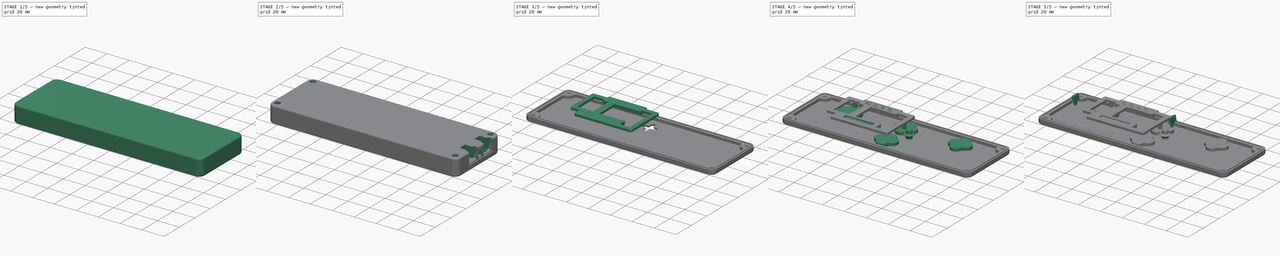
[diagram: build sequence overview — one tinted view per stage of 5, left to right]
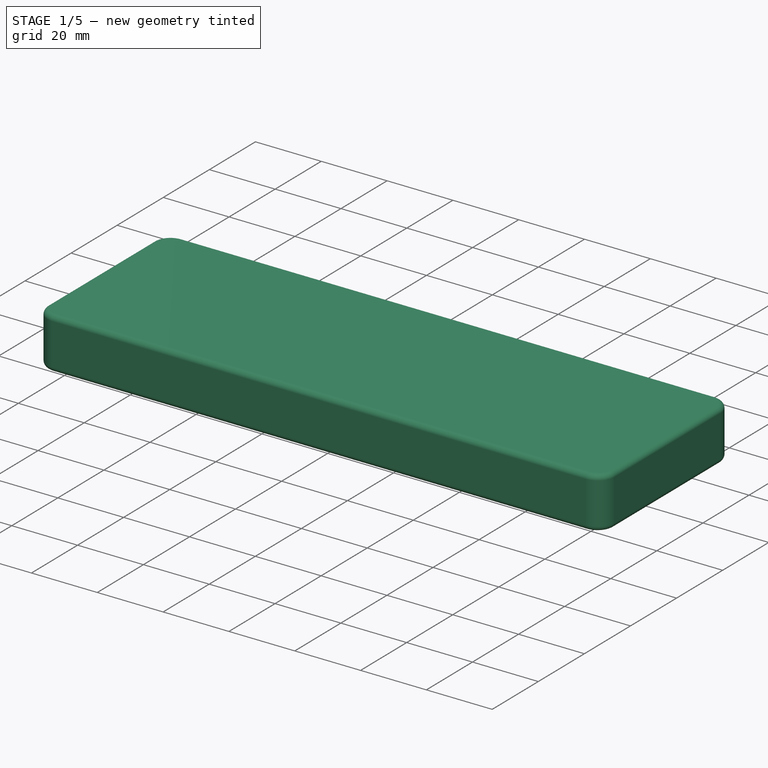
[diagram: stage 1 of 5 — iso view after this stage's code; geometry added in this stage tinted green]
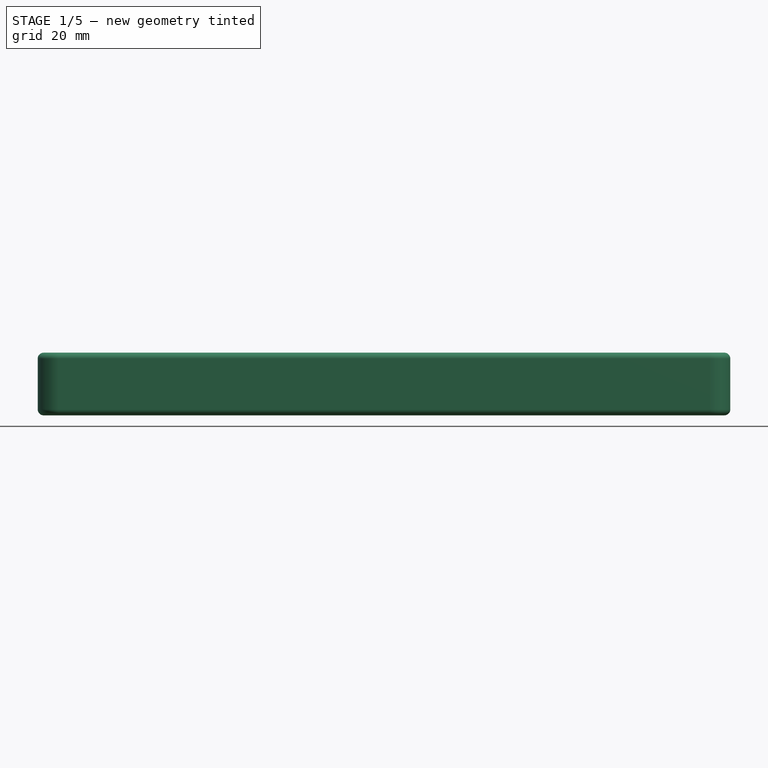
[diagram: stage 1 of 5 — front view after this stage's code; geometry added in this stage tinted green]
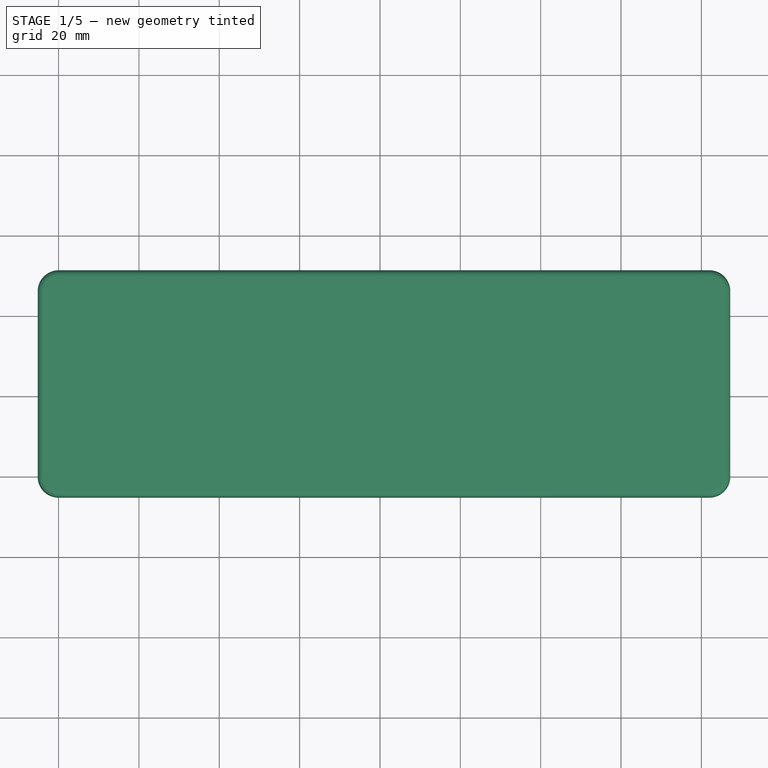
[diagram: stage 1 of 5 — top view after this stage's code; geometry added in this stage tinted green]
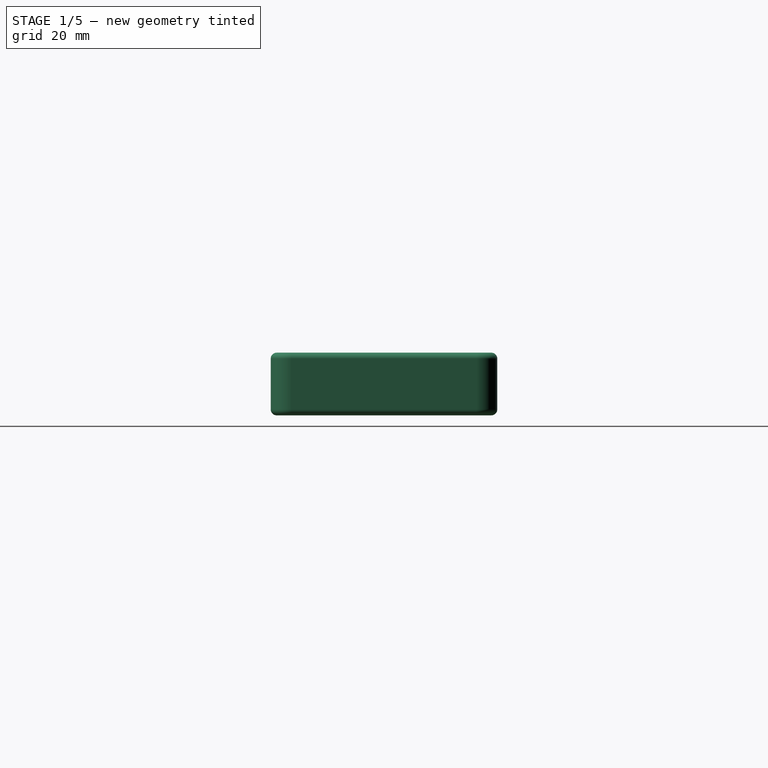
[diagram: stage 1 of 5 — right view after this stage's code; geometry added in this stage tinted green]
FCSTD DOCUMENT  (FreeCAD 1.0R39109 (Git))
Label: Enclosure
License: All rights reserved
LicenseURL: http://en.wikipedia.org/wiki/All_rights_reserved
objects: Sketcher::SketchObject×49, PartDesign::Pad×27, PartDesign::Pocket×23, PartDesign::Plane×15, PartDesign::Mirrored×13, PartDesign::Line×9, PartDesign::Chamfer×8, PartDesign::Body×7, PartDesign::SubShapeBinder×6, PartDesign::MultiTransform×6, PartDesign::Fillet×5, Part::Part2DObjectPython×4, PartDesign::LinearPattern×4, Spreadsheet::Sheet×3, PartDesign::Point×2, PartDesign::AdditiveLoft×2, PartDesign::Revolution×1, PartDesign::PolarPattern×1
note: 387 computed .brp shape members not serialized (recipe doc carries the construction recipe); baked Part::Feature solids carry a one-line shape summary decoded from their .brp

FEATURE [Spreadsheet::Sheet] Spreadsheet  label="BaseParam"
  cells = A1='Wall; B1(Wall)==2 mm; C1='general wall thickness dim; A2='Fillet; B2(Fillet)==1.5 mm; C2='general exterior fillet; A3='InsertChamfer; B3(InsertChamfer)==0.5 mm; C3='chamfer for inserting things; A4='Tolerance; B4(Tol)==0.2 mm; C4='general edge-to-edge tolerance, between different parts; A6='BoardW; B6(BoardW)==168 mm; C6='board dims, exact; A7='BoardH; B7(BoardH)==52 mm; A8='BoardR; B8(BoardR)==3 mm; C8='edge filet radius; A9='BoardThick; B9(BoardThick)==1.6 mm; A11='MountingHoleInset; B11(MountingHoleInset)==3 mm; C11='note, lower left hole is the origin point; A12='MountingClearanceDia; B12(MountingClearanceDia)==2.9 mm; C12='M2.5 nominal fit; A13='MountingHexWidth; B13(MountingHexW)==5.1 mm; C13='W+0.1mm, close fit for press-fit; A14='MountingHexHeight; B14(MountingHexHeight)==1.8 mm; C14='H+0.1mm; A15='MountingScrewHeadDia; B15(MountingScrewHeadDia)==4.7 mm; A16='MountingScrewLength; B16(MountingScrewLength)==10.5 mm; A18='TextHeight; B18(TextHeight)==4 mm; A19='TextThickness; B19(TextThickness)==0.2 mm; A21='EnclosureBotOffset; B21(EnclosureBotOffset)==2.5 mm; A22='EnclosureTopOffset; B22(EnclosureTopOffset)==7.5 mm; C22='minimum with OLED sitting on top of the inductor; A24='LightPipeWidth; B24(LightPipeWidth)==2 mm; C24='positive side; A25='LightPipeHeight; B25(LightPipeHeight)==8 mm; A26='LightPipeSocketDepth; B26(LightPipeSocketDepth)==4 mm; C26='excluding wall thickness; A28='VentHoleDia; B28(VentHoleDia)==2 mm; A29='VentHoleSpacing; B29(VentHoleSpacing)==2 mm
FEATURE [Sketcher::SketchObject] Sketch003
  ArcFitTolerance = 1e-06
  AttachmentSupport = -> [XY_Plane]
  FullyConstrained = true
  MakeInternals = false
  MapMode = 5
  expr: Constraints[1] = <<BaseParam>>.MountingClearanceDia
  sketch-geometry (1):
    g0: Circle CenterX=0 CenterY=0 CenterZ=0 NormalX=0 NormalY=0 NormalZ=1 AngleXU=0 Radius=1.45
  constraints (2):
    c: Coincident(g0,g-1)
    c: Diameter(g0) = 2.9
FEATURE [Sketcher::SketchObject] Sketch004
  ArcFitTolerance = 1e-06
  AttachmentOffset = pos=(0,0,-3.6) rot=(0,0,1;0rad)
  AttachmentSupport = -> [XY_Plane]
  FullyConstrained = true
  MakeInternals = false
  MapMode = 5
  Placement = pos=(0,0,-3.6) rot=(0,0,1;0rad)
  expr: .AttachmentOffset.Base.z = -<<BaseParam>>.BoardThick - <<BaseParam>>.Wall
  expr: Constraints[20] = <<BaseParam>>.MountingHexW
  sketch-geometry (9):
    g0: LineSegment StartX=1.47224 StartY=2.55 StartZ=0 EndX=-1.47224 EndY=2.55 EndZ=0
    g1: LineSegment StartX=-1.47224 StartY=2.55 StartZ=0 EndX=-2.94449 EndY=1.8e-15 EndZ=0
    g2: LineSegment StartX=-2.94449 StartY=1.8e-15 StartZ=0 EndX=-1.47224 EndY=-2.55 EndZ=0
    g3: LineSegment StartX=-1.47224 StartY=-2.55 StartZ=0 EndX=1.47224 EndY=-2.55 EndZ=0
    g4: LineSegment StartX=1.47224 StartY=-2.55 StartZ=0 EndX=2.94449 EndY=-2.2e-15 EndZ=0
    g5: LineSegment StartX=2.94449 StartY=-2.2e-15 StartZ=0 EndX=1.47224 EndY=2.55 EndZ=0
    g6: Circle [constr] CenterX=0 CenterY=0 CenterZ=0 NormalX=0 NormalY=0 NormalZ=1 AngleXU=0 Radius=2.94449
    g7: LineSegment [constr] StartX=-2.94449 StartY=1.8e-15 StartZ=0 EndX=1.47224 EndY=2.55 EndZ=0
    g8: LineSegment [constr] StartX=7e-16 StartY=2.55 StartZ=0 EndX=0 EndY=0 EndZ=0
  constraints (20):
    c: Coincident(g0,g1)
    c: Coincident(g1,g2)
    c: Coincident(g2,g3)
    c: Coincident(g3,g4)
    c: Coincident(g4,g5)
    c: Coincident(g5,g0)
    c: Equal(g0, g1-g5) x5
    c: PointOnObject(g0,g6)
    c: PointOnObject(g1,g6)
    c: PointOnObject(g2,g6)
    c: PointOnObject(g3,g6)
    c: PointOnObject(g4,g6)
    c: PointOnObject(g5,g6)
    c: Coincident(g6,g-1)
    c: Coincident(g7,g1)
    c: Coincident(g7,g0)
    c: Distance(g7,g7) = 5.1
    c: Symmetric(g0,g0,g8)
    c: Coincident(g8,g6)
    c: Angle(g-1,g8) = 1.5708
FEATURE [PartDesign::Plane] DatumPlane  label="CenterH"
  AttachmentOffset = pos=(0,0,-23) rot=(0,0,1;0rad)
  AttachmentSupport = -> [XZ_Plane]
  Length = 211.806
  MapMode = 5
  Placement = pos=(0,23,-5.1e-15) rot=(1,0,0;1.5708rad)
  ResizeMode = 0
  Width = 69.6061
  expr: .AttachmentOffset.Base.z = -<<BaseParam>>.BoardH / 2 + <<BaseParam>>.MountingHoleInset
FEATURE [PartDesign::Mirrored] Mirrored
  MirrorPlane = -> DatumPlane
  Placement = pos=(0,0,-4.1) rot=(0,0,1;0rad)
  Refine = true
  Suppressed = false
  TransformMode = 0
FEATURE [PartDesign::Plane] DatumPlane001  label="CenterW"
  AttachmentOffset = pos=(0,0,81) rot=(0,0,1;0rad)
  AttachmentSupport = -> [YZ_Plane]
  Length = 88.545
  MapMode = 5
  Placement = pos=(81,0,0) rot=(0.57735,0.57735,0.57735;2.0944rad)
  ResizeMode = 0
  Width = 62.345
  expr: .AttachmentOffset.Base.z = <<BaseParam>>.BoardW / 2 - <<BaseParam>>.MountingHoleInset
FEATURE [PartDesign::Mirrored] Mirrored001
  MirrorPlane = -> DatumPlane001
  Placement = pos=(0,0,-4.1) rot=(0,0,1;0rad)
  Refine = true
  Suppressed = false
  TransformMode = 0
FEATURE [Sketcher::SketchObject] Sketch005  label="PlateSketch001"
  ArcFitTolerance = 1e-06
  AttachmentOffset = pos=(0,0,7.5) rot=(0,0,1;0rad)
  AttachmentSupport = -> [XY_Plane001]
  FullyConstrained = true
  MakeInternals = false
  MapMode = 5
  Placement = pos=(0,0,7.5) rot=(0,0,1;0rad)
  expr: .AttachmentOffset.Base.z = <<BaseParam>>.EnclosureTopOffset
  expr: Constraints[27] = <<BaseParam>>.BoardR + <<BaseParam>>.Tol + <<BaseParam>>.Wall
  expr: Constraints[4] = <<BaseParam>>.MountingHoleInset + <<BaseParam>>.Wall + <<BaseParam>>.Tol
  expr: Constraints[5] = <<BaseParam>>.MountingHoleInset + <<BaseParam>>.Wall + <<BaseParam>>.Tol
  expr: Constraints[6] = <<BaseParam>>.BoardW + 2 * (<<BaseParam>>.Wall + <<BaseParam>>.Tol)
  expr: Constraints[7] = <<BaseParam>>.BoardH + 2 * (<<BaseParam>>.Wall + <<BaseParam>>.Tol)
  sketch-geometry (12):
    g0: LineSegment StartX=-5.2 StartY=46 StartZ=0 EndX=-5.2 EndY=0 EndZ=0
    g1: LineSegment StartX=-5e-16 StartY=-5.2 StartZ=0 EndX=162 EndY=-5.2 EndZ=0
    g2: LineSegment StartX=167.2 StartY=-1.4e-15 StartZ=0 EndX=167.2 EndY=46 EndZ=0
    g3: LineSegment StartX=162 StartY=51.2 StartZ=0 EndX=0 EndY=51.2 EndZ=0
    g4: ArcOfCircle CenterX=5e-16 CenterY=-2e-16 CenterZ=0 NormalX=0 NormalY=0 NormalZ=1 AngleXU=0 Radius=5.2 StartAngle=3.14159 EndAngle=4.71239
    g5: GeomPoint [constr] X=-5.2 Y=-5.2 Z=0
    g6: ArcOfCircle CenterX=5e-16 CenterY=46 CenterZ=0 NormalX=0 NormalY=0 NormalZ=1 AngleXU=0 Radius=5.2 StartAngle=1.5708 EndAngle=3.14159
    g7: GeomPoint [constr] X=-5.2 Y=51.2 Z=0
    g8: ArcOfCircle CenterX=162 CenterY=46 CenterZ=0 NormalX=0 NormalY=0 NormalZ=1 AngleXU=0 Radius=5.2 StartAngle=6e-16 EndAngle=1.5708
    g9: GeomPoint [constr] X=167.2 Y=51.2 Z=0
    g10: ArcOfCircle CenterX=162 CenterY=-1e-16 CenterZ=0 NormalX=0 NormalY=0 NormalZ=1 AngleXU=0 Radius=5.2 StartAngle=4.71239 EndAngle=6.28319
    g11: GeomPoint [constr] X=167.2 Y=-5.2 Z=0
  constraints (28):
    c: Vertical(g0)
    c: Vertical(g2)
    c: Horizontal(g1)
    c: Horizontal(g3)
    c: DistanceY(g5,g-1) = 5.2
    c: DistanceX(g5,g-1) = 5.2
    c: DistanceX(g5,g11) = 172.4
    c: DistanceY(g5,g7) = 56.4
    c: PointOnObject(g5,g1)
    c: PointOnObject(g5,g0)
    c: Tangent(g1,g4) = -1.5708
    c: Tangent(g0,g4) = -1.5708
    c: PointOnObject(g7,g0)
    c: PointOnObject(g7,g3)
    c: Tangent(g0,g6) = -1.5708
    c: Tangent(g3,g6) = -1.5708
    c: PointOnObject(g9,g3)
    c: PointOnObject(g9,g2)
    c: Tangent(g3,g8) = -1.5708
    c: Tangent(g2,g8) = -1.5708
    c: PointOnObject(g11,g2)
    c: PointOnObject(g11,g1)
    c: Tangent(g2,g10) = -1.5708
    c: Tangent(g1,g10) = -1.5708
    c: Equal(g10,g8)
    c: Equal(g8,g6)
    c: Equal(g6,g4)
    c: Radius(g4) = 5.2
FEATURE [PartDesign::Pad] Pad003  label="TopPlate"
  Direction = (0,0,1)
  Length = 2
  Length2 = 10
  Profile = -> Sketch005
  ReferenceAxis = -> Sketch005 [N_Axis]
  Refine = true
  Suppressed = false
  Type = 0
  expr: Length = <<BaseParam>>.Wall
FEATURE [PartDesign::Fillet] Fillet001
  Base = -> Pad003 [Face10]
  BaseFeature = -> Pad003
  Radius = 1.5
  Refine = true
  SupportTransform = false
  Suppressed = false
  UseAllEdges = false
  expr: Radius = <<BaseParam>>.Fillet
FEATURE [Sketcher::SketchObject] Sketch006
  ArcFitTolerance = 1e-06
  AttachmentOffset = pos=(0,0,7.5) rot=(0,0,1;0rad)
  AttachmentSupport = -> [XY_Plane001]
  FullyConstrained = true
  MakeInternals = false
  MapMode = 5
  Placement = pos=(0,0,7.5) rot=(0,0,1;0rad)
  expr: .AttachmentOffset.Base.z = <<BaseParam>>.EnclosureTopOffset
  expr: Constraints[27] = <<BaseParam>>.BoardR + <<BaseParam>>.Tol + <<BaseParam>>.Wall
  expr: Constraints[32] = <<BaseParam>>.Wall
  expr: Constraints[33] = <<BaseParam>>.Wall
  expr: Constraints[34] = <<BaseParam>>.Wall
  expr: Constraints[35] = <<BaseParam>>.Wall
  expr: Constraints[4] = <<BaseParam>>.MountingHoleInset + <<BaseParam>>.Wall + <<BaseParam>>.Tol
  expr: Constraints[5] = <<BaseParam>>.MountingHoleInset + <<BaseParam>>.Wall + <<BaseParam>>.Tol
  expr: Constraints[6] = <<BaseParam>>.BoardW + 2 * (<<BaseParam>>.Wall + <<BaseParam>>.Tol)
  expr: Constraints[7] = <<BaseParam>>.BoardH + 2 * (<<BaseParam>>.Wall + <<BaseParam>>.Tol)
  sketch-geometry (24):
    g0: LineSegment StartX=-5.2 StartY=46 StartZ=0 EndX=-5.2 EndY=0 EndZ=0
    g1: LineSegment StartX=-9e-16 StartY=-5.2 StartZ=0 EndX=162 EndY=-5.2 EndZ=0
    g2: LineSegment StartX=167.2 StartY=-1.3e-15 StartZ=0 EndX=167.2 EndY=46 EndZ=0
    g3: LineSegment StartX=162 StartY=51.2 StartZ=0 EndX=0 EndY=51.2 EndZ=0
    g4: ArcOfCircle CenterX=1e-16 CenterY=-3e-16 CenterZ=0 NormalX=0 NormalY=0 NormalZ=1 AngleXU=0 Radius=5.2 StartAngle=3.14159 EndAngle=4.71239
    g5: GeomPoint [constr] X=-5.2 Y=-5.2 Z=0
    g6: ArcOfCircle CenterX=2e-16 CenterY=46 CenterZ=0 NormalX=0 NormalY=0 NormalZ=1 AngleXU=0 Radius=5.2 StartAngle=1.5708 EndAngle=3.14159
    g7: GeomPoint [constr] X=-5.2 Y=51.2 Z=0
    g8: ArcOfCircle CenterX=162 CenterY=46 CenterZ=0 NormalX=0 NormalY=0 NormalZ=1 AngleXU=0 Radius=5.2 StartAngle=-9e-16 EndAngle=1.5708
    g9: GeomPoint [constr] X=167.2 Y=51.2 Z=0
    g10: ArcOfCircle CenterX=162 CenterY=0 CenterZ=0 NormalX=0 NormalY=0 NormalZ=1 AngleXU=0 Radius=5.2 StartAngle=4.71239 EndAngle=6.28319
    g11: GeomPoint [constr] X=167.2 Y=-5.2 Z=0
    g12: LineSegment StartX=-3.2 StartY=46 StartZ=0 EndX=-3.2 EndY=0 EndZ=0
    g13: LineSegment StartX=-5e-16 StartY=-3.2 StartZ=0 EndX=162 EndY=-3.2 EndZ=0
    g14: LineSegment StartX=165.2 StartY=-1.4e-15 StartZ=0 EndX=165.2 EndY=46 EndZ=0
    g15: LineSegment StartX=162 StartY=49.2 StartZ=0 EndX=0 EndY=49.2 EndZ=0
    g16: ArcOfCircle CenterX=162 CenterY=46 CenterZ=0 NormalX=0 NormalY=0 NormalZ=1 AngleXU=0 Radius=3.2 StartAngle=8e-16 EndAngle=1.5708
    g17: GeomPoint [constr] X=165.2 Y=49.2 Z=0
    g18: ArcOfCircle CenterX=162 CenterY=-6e-16 CenterZ=0 NormalX=0 NormalY=0 NormalZ=1 AngleXU=0 Radius=3.2 StartAngle=4.71239 EndAngle=6.28319
    g19: GeomPoint [constr] X=165.2 Y=-3.2 Z=0
    g20: ArcOfCircle CenterX=1e-16 CenterY=-3e-16 CenterZ=0 NormalX=0 NormalY=0 NormalZ=1 AngleXU=0 Radius=3.2 StartAngle=3.14159 EndAngle=4.71239
    g21: GeomPoint [constr] X=-3.2 Y=-3.2 Z=0
    g22: ArcOfCircle CenterX=-1e-16 CenterY=46 CenterZ=0 NormalX=0 NormalY=0 NormalZ=1 AngleXU=0 Radius=3.2 StartAngle=1.5708 EndAngle=3.14159
    g23: GeomPoint [constr] X=-3.2 Y=49.2 Z=0
  constraints (55):
    c: Vertical(g0)
    c: Vertical(g2)
    c: Horizontal(g1)
    c: Horizontal(g3)
    c: DistanceY(g5,g-1) = 5.2
    c: DistanceX(g5,g-1) = 5.2
    c: DistanceX(g5,g11) = 172.4
    c: DistanceY(g5,g7) = 56.4
    c: PointOnObject(g5,g1)
    c: PointOnObject(g5,g0)
    c: Tangent(g1,g4) = -1.5708
    c: Tangent(g0,g4) = -1.5708
    c: PointOnObject(g7,g0)
    c: PointOnObject(g7,g3)
    c: Tangent(g0,g6) = -1.5708
    c: Tangent(g3,g6) = -1.5708
    c: PointOnObject(g9,g3)
    c: PointOnObject(g9,g2)
    c: Tangent(g3,g8) = -1.5708
    c: Tangent(g2,g8) = -1.5708
    c: PointOnObject(g11,g2)
    c: PointOnObject(g11,g1)
    c: Tangent(g2,g10) = -1.5708
    c: Tangent(g1,g10) = -1.5708
    c: Equal(g10,g8)
    c: Equal(g8,g6)
    c: Equal(g6,g4)
    c: Radius(g4) = 5.2
    c: Vertical(g12)
    c: Vertical(g14)
    c: Horizontal(g13)
    c: Horizontal(g15)
    c: DistanceX(g5,g21) = 2
    c: DistanceY(g5,g21) = 2
    c: DistanceY(g17,g9) = 2
    c: DistanceX(g17,g9) = 2
    c: PointOnObject(g17,g15)
    c: PointOnObject(g17,g14)
    c: Tangent(g15,g16) = -1.5708
    c: Tangent(g14,g16) = -1.5708
    c: PointOnObject(g19,g13)
    c: PointOnObject(g19,g14)
    c: Tangent(g13,g18) = -1.5708
    c: Tangent(g14,g18) = -1.5708
    c: PointOnObject(g21,g13)
    c: Tangent(g13,g20) = -1.5708
    c: Tangent(g12,g20) = -1.5708
    c: PointOnObject(g23,g12)
    c: PointOnObject(g23,g15)
    c: Tangent(g12,g22) = -1.5708
    c: Tangent(g15,g22) = -1.5708
    c: Equal(g22,g16)
    c: Equal(g16,g18)
    c: Equal(g18,g20)
    c: Coincident(g20,g4)
FEATURE [PartDesign::Pad] Pad004  label="TopWall"
  BaseFeature = -> Fillet001
  Direction = (0,0,1)
  Length = 8.2
  Length2 = 10
  Profile = -> Sketch006
  ReferenceAxis = -> Sketch006 [N_Axis]
  Refine = true
  Reversed = true
  Suppressed = false
  Type = 0
  expr: Length = <<BaseParam>>.EnclosureTopOffset + <<BaseParam>>.BoardThick / 2 - <<BaseParam>>.Tol / 2
FEATURE [PartDesign::Plane] DatumPlane009  label="BotInnerPlane"
  AttachmentOffset = pos=(0,0,-4.1) rot=(0,0,1;0rad)
  AttachmentSupport = -> [XY_Plane]
  Length = 216.404
  MapMode = 5
  Placement = pos=(0,0,-4.1) rot=(0,0,1;0rad)
  ResizeMode = 0
  Width = 100.404
  expr: .AttachmentOffset.Base.z = -<<BaseParam>>.BoardThick - <<BaseParam>>.EnclosureBotOffset
FEATURE [Sketcher::SketchObject] Sketch  label="PlateSketch"
  ArcFitTolerance = 1e-06
  AttachmentSupport = -> [DatumPlane009]
  FullyConstrained = true
  MakeInternals = false
  MapMode = 5
  Placement = pos=(0,0,-4.1) rot=(0,0,1;0rad)
  expr: Constraints[27] = <<BaseParam>>.BoardR + <<BaseParam>>.Tol + <<BaseParam>>.Wall
  expr: Constraints[4] = <<BaseParam>>.MountingHoleInset + <<BaseParam>>.Wall + <<BaseParam>>.Tol
  expr: Constraints[51] = <<BaseParam>>.MountingHoleInset
  expr: Constraints[52] = <<BaseParam>>.MountingHoleInset
  expr: Constraints[53] = <<BaseParam>>.MountingHoleInset
  expr: Constraints[54] = <<BaseParam>>.MountingHoleInset
  expr: Constraints[55] = <<BaseParam>>.MountingHoleInset
  expr: Constraints[5] = <<BaseParam>>.MountingHoleInset + <<BaseParam>>.Wall + <<BaseParam>>.Tol
  expr: Constraints[6] = <<BaseParam>>.BoardW + 2 * (<<BaseParam>>.Wall + <<BaseParam>>.Tol)
  expr: Constraints[7] = <<BaseParam>>.BoardH + 2 * (<<BaseParam>>.Wall + <<BaseParam>>.Tol)
  sketch-geometry (24):
    g0: LineSegment StartX=-5.2 StartY=46 StartZ=0 EndX=-5.2 EndY=0 EndZ=0
    g1: LineSegment StartX=-1.1e-15 StartY=-5.2 StartZ=0 EndX=162 EndY=-5.2 EndZ=0
    g2: LineSegment StartX=167.2 StartY=-1.4e-15 StartZ=0 EndX=167.2 EndY=46 EndZ=0
    g3: LineSegment StartX=162 StartY=51.2 StartZ=0 EndX=0 EndY=51.2 EndZ=0
    g4: ArcOfCircle CenterX=-1e-16 CenterY=-2e-16 CenterZ=0 NormalX=0 NormalY=0 NormalZ=1 AngleXU=0 Radius=5.2 StartAngle=3.14159 EndAngle=4.71239
    g5: GeomPoint [constr] X=-5.2 Y=-5.2 Z=0
    g6: ArcOfCircle CenterX=-1e-16 CenterY=46 CenterZ=0 NormalX=0 NormalY=0 NormalZ=1 AngleXU=0 Radius=5.2 StartAngle=1.5708 EndAngle=3.14159
    g7: GeomPoint [constr] X=-5.2 Y=51.2 Z=0
    g8: ArcOfCircle CenterX=162 CenterY=46 CenterZ=0 NormalX=0 NormalY=0 NormalZ=1 AngleXU=0 Radius=5.2 StartAngle=6e-16 EndAngle=1.5708
    g9: GeomPoint [constr] X=167.2 Y=51.2 Z=0
    g10: ArcOfCircle CenterX=162 CenterY=-1e-16 CenterZ=0 NormalX=0 NormalY=0 NormalZ=1 AngleXU=0 Radius=5.2 StartAngle=4.71239 EndAngle=6.28319
    g11: GeomPoint [constr] X=167.2 Y=-5.2 Z=0
    g12: LineSegment [constr] StartX=3 StartY=40 StartZ=0 EndX=3 EndY=6 EndZ=0
    g13: LineSegment [constr] StartX=6 StartY=3 StartZ=0 EndX=156 EndY=3 EndZ=0
    g14: LineSegment [constr] StartX=159 StartY=6 StartZ=0 EndX=159 EndY=40 EndZ=0
    g15: LineSegment [constr] StartX=156 StartY=43 StartZ=0 EndX=6 EndY=43 EndZ=0
    g16: ArcOfCircle [constr] CenterX=6 CenterY=40 CenterZ=0 NormalX=0 NormalY=0 NormalZ=1 AngleXU=0 Radius=3 StartAngle=1.5708 EndAngle=3.14159
    g17: GeomPoint [constr] X=3 Y=43 Z=0
    g18: ArcOfCircle [constr] CenterX=6 CenterY=6 CenterZ=0 NormalX=0 NormalY=0 NormalZ=1 AngleXU=0 Radius=3 StartAngle=3.14159 EndAngle=4.71239
    g19: GeomPoint [constr] X=3 Y=3 Z=0
    g20: ArcOfCircle [constr] CenterX=156 CenterY=6 CenterZ=0 NormalX=0 NormalY=0 NormalZ=1 AngleXU=0 Radius=3 StartAngle=4.71239 EndAngle=6.28319
    g21: GeomPoint [constr] X=159 Y=3 Z=0
    g22: ArcOfCircle [constr] CenterX=156 CenterY=40 CenterZ=0 NormalX=0 NormalY=0 NormalZ=1 AngleXU=0 Radius=3 StartAngle=2e-16 EndAngle=1.5708
    g23: GeomPoint [constr] X=159 Y=43 Z=0
  constraints (56):
    c: Vertical(g0)
    c: Vertical(g2)
    c: Horizontal(g1)
    c: Horizontal(g3)
    c: DistanceY(g5,g-1) = 5.2
    c: DistanceX(g5,g-1) = 5.2
    c: DistanceX(g5,g11) = 172.4
    c: DistanceY(g5,g7) = 56.4
    c: PointOnObject(g5,g1)
    c: PointOnObject(g5,g0)
    c: Tangent(g1,g4) = -1.5708
    c: Tangent(g0,g4) = -1.5708
    c: PointOnObject(g7,g0)
    c: PointOnObject(g7,g3)
    c: Tangent(g0,g6) = -1.5708
    c: Tangent(g3,g6) = -1.5708
    c: PointOnObject(g9,g3)
    c: PointOnObject(g9,g2)
    c: Tangent(g3,g8) = -1.5708
    c: Tangent(g2,g8) = -1.5708
    c: PointOnObject(g11,g2)
    c: PointOnObject(g11,g1)
    c: Tangent(g2,g10) = -1.5708
    c: Tangent(g1,g10) = -1.5708
    c: Equal(g10,g8)
    c: Equal(g8,g6)
    c: Equal(g6,g4)
    c: Radius(g4) = 5.2
    c: Vertical(g12)
    c: Vertical(g14)
    c: Horizontal(g13)
    c: Horizontal(g15)
    c: PointOnObject(g17,g12)
    c: PointOnObject(g17,g15)
    c: Tangent(g12,g16) = -1.5708
    c: Tangent(g15,g16) = -1.5708
    c: PointOnObject(g19,g12)
    c: PointOnObject(g19,g13)
    c: Tangent(g12,g18) = -1.5708
    c: Tangent(g13,g18) = -1.5708
    c: PointOnObject(g21,g13)
    c: PointOnObject(g21,g14)
    c: Tangent(g13,g20) = -1.5708
    c: Tangent(g14,g20) = -1.5708
    c: PointOnObject(g23,g14)
    c: PointOnObject(g23,g15)
    c: Tangent(g14,g22) = -1.5708
    c: Tangent(g15,g22) = -1.5708
    c: Equal(g22,g20)
    c: Equal(g20,g18)
    c: Equal(g18,g16)
    c: DistanceX(g4,g19) = 3
    c: DistanceY(g4,g19) = 3
    c: DistanceY(g23,g8) = 3
    c: DistanceX(g23,g8) = 3
    c: Radius(g18) = 3
FEATURE [PartDesign::Pad] Pad  label="Base"
  Direction = (0,0,1)
  Length = 2
  Length2 = 10
  Placement = pos=(0,0,-4.1) rot=(0,0,1;0rad)
  Profile = -> Sketch
  ReferenceAxis = -> Sketch [N_Axis]
  Refine = true
  Reversed = true
  Suppressed = false
  Type = 0
  expr: Length = <<BaseParam>>.Wall
FEATURE [Sketcher::SketchObject] Sketch001
  ArcFitTolerance = 1e-06
  AttachmentSupport = -> [DatumPlane009]
  ExternalGeometry = -> [DatumPlane,DatumPlane001]
  FullyConstrained = true
  MakeInternals = false
  MapMode = 5
  Placement = pos=(0,0,-4.1) rot=(0,0,1;0rad)
  expr: Constraints[12] = <<BaseParam>>.MountingHoleInset + <<BaseParam>>.Tol
  expr: Constraints[13] = <<BaseParam>>.MountingHoleInset + <<BaseParam>>.Tol
  expr: Constraints[19] = <<BaseParam>>.MountingHoleInset + <<BaseParam>>.Wall
  expr: Constraints[2] = <<BaseParam>>.MountingHoleInset + <<BaseParam>>.Wall / 2 + <<BaseParam>>.Tol
  expr: Constraints[30] = <<BaseParam>>.Wall
  expr: Constraints[3] = <<BaseParam>>.MountingHoleInset + <<BaseParam>>.Wall / 2 + <<BaseParam>>.Tol
  expr: Constraints[8] = <<BaseParam>>.BoardR + <<BaseParam>>.Tol + <<BaseParam>>.Wall / 2
  sketch-geometry (14):
    g0: LineSegment StartX=-4.2 StartY=23 StartZ=0 EndX=-4.2 EndY=0 EndZ=0
    g1: LineSegment StartX=-8e-16 StartY=-4.2 StartZ=0 EndX=81 EndY=-4.2 EndZ=0
    g2: ArcOfCircle CenterX=0 CenterY=-2e-16 CenterZ=0 NormalX=0 NormalY=0 NormalZ=1 AngleXU=0 Radius=4.2 StartAngle=3.14159 EndAngle=4.71239
    g3: GeomPoint [constr] X=-4.2 Y=-4.2 Z=0
    g4: GeomPoint [constr] X=-3.2 Y=-3.2 Z=0
    g5: ArcOfCircle CenterX=0 CenterY=-2e-16 CenterZ=0 NormalX=0 NormalY=0 NormalZ=1 AngleXU=0 Radius=5 StartAngle=0 EndAngle=1.5708
    g6: LineSegment StartX=-1.2 StartY=23 StartZ=0 EndX=-4.2 EndY=23 EndZ=0
    g7: LineSegment StartX=81 StartY=-1.2 StartZ=0 EndX=81 EndY=-4.2 EndZ=0
    g8: LineSegment [constr] StartX=-3.2 StartY=-3.2 StartZ=0 EndX=81 EndY=-3.2 EndZ=0
    g9: LineSegment [constr] StartX=-3.2 StartY=-3.2 StartZ=0 EndX=-3.2 EndY=23 EndZ=0
    g10: LineSegment StartX=-1.2 StartY=23 StartZ=0 EndX=-1.2 EndY=6.2 EndZ=0
    g11: LineSegment StartX=81 StartY=-1.2 StartZ=0 EndX=6.19999 EndY=-1.2 EndZ=0
    g12: ArcOfCircle CenterX=-1e-16 CenterY=6.2 CenterZ=0 NormalX=0 NormalY=0 NormalZ=1 AngleXU=0 Radius=1.2 StartAngle=3.14159 EndAngle=4.71239
    g13: ArcOfCircle CenterX=6.2 CenterY=2e-16 CenterZ=0 NormalX=0 NormalY=0 NormalZ=1 AngleXU=0 Radius=1.2 StartAngle=3.14159 EndAngle=4.71238
  constraints (38):
    c: Vertical(g0)
    c: Horizontal(g1)
    c: DistanceY(g3,g-1) = 4.2
    c: DistanceX(g3,g-1) = 4.2
    c: PointOnObject(g3,g1)
    c: PointOnObject(g3,g0)
    c: Tangent(g1,g2) = -1.5708
    c: Tangent(g0,g2) = -1.5708
    c: Radius(g2) = 4.2
    c: Coincident(g5,g2)
    c: PointOnObject(g5,g-2)
    c: PointOnObject(g5,g-1)
    c: DistanceY(g4,g2) = 3.2
    c: DistanceX(g4,g2) = 3.2
    c: Coincident(g6,g0)
    c: Coincident(g7,g1)
    c: Perpendicular(g7,g1)
    c: Perpendicular(g0,g6)
    c: Horizontal(g8)
    c: Radius(g5) = 5
    c: Coincident(g4,g8)
    c: Coincident(g9,g4)
    c: Vertical(g9)
    c: Coincident(g10,g6)
    c: Coincident(g11,g7)
    c: Equal(g6,g7)
    c: Horizontal(g11)
    c: Vertical(g10)
    c: PointOnObject(g9,g6)
    c: PointOnObject(g8,g7)
    c: DistanceX(g9,g6) = 2
    c: PointOnObject(g0,g-3)
    c: PointOnObject(g1,g-4)
    c: Coincident(g13,g11)
    c: Equal(g13,g12)
    c: Tangent(g12,g10) = -1.5708
    c: Tangent(g12,g5) = 1.5708
    c: Tangent(g13,g5) = 1.5708
FEATURE [Sketcher::SketchObject] Sketch002
  ArcFitTolerance = 1e-06
  AttachmentSupport = -> [DatumPlane009]
  FullyConstrained = true
  MakeInternals = false
  MapMode = 5
  Placement = pos=(0,0,-4.1) rot=(0,0,1;0rad)
  expr: Constraints[27] = <<BaseParam>>.BoardR + <<BaseParam>>.Tol + <<BaseParam>>.Wall
  expr: Constraints[32] = <<BaseParam>>.Wall
  expr: Constraints[4] = <<BaseParam>>.MountingHoleInset + <<BaseParam>>.Wall + <<BaseParam>>.Tol
  expr: Constraints[5] = <<BaseParam>>.MountingHoleInset + <<BaseParam>>.Wall + <<BaseParam>>.Tol
  expr: Constraints[6] = <<BaseParam>>.BoardW + 2 * (<<BaseParam>>.Wall + <<BaseParam>>.Tol)
  expr: Constraints[7] = <<BaseParam>>.BoardH + 2 * (<<BaseParam>>.Wall + <<BaseParam>>.Tol)
  sketch-geometry (28):
    g0: LineSegment StartX=-5.2 StartY=46 StartZ=0 EndX=-5.2 EndY=0 EndZ=0
    g1: LineSegment StartX=-9e-16 StartY=-5.2 StartZ=0 EndX=162 EndY=-5.2 EndZ=0
    g2: LineSegment StartX=167.2 StartY=-1.3e-15 StartZ=0 EndX=167.2 EndY=46 EndZ=0
    g3: LineSegment StartX=162 StartY=51.2 StartZ=0 EndX=0 EndY=51.2 EndZ=0
    g4: ArcOfCircle CenterX=1e-16 CenterY=-3e-16 CenterZ=0 NormalX=0 NormalY=0 NormalZ=1 AngleXU=0 Radius=5.2 StartAngle=3.14159 EndAngle=4.71239
    g5: GeomPoint [constr] X=-5.2 Y=-5.2 Z=0
    g6: ArcOfCircle CenterX=2e-16 CenterY=46 CenterZ=0 NormalX=0 NormalY=0 NormalZ=1 AngleXU=0 Radius=5.2 StartAngle=1.5708 EndAngle=3.14159
    g7: GeomPoint [constr] X=-5.2 Y=51.2 Z=0
    g8: ArcOfCircle CenterX=162 CenterY=46 CenterZ=0 NormalX=0 NormalY=0 NormalZ=1 AngleXU=0 Radius=5.2 StartAngle=5e-16 EndAngle=1.5708
    g9: GeomPoint [constr] X=167.2 Y=51.2 Z=0
    g10: ArcOfCircle CenterX=162 CenterY=0 CenterZ=0 NormalX=0 NormalY=0 NormalZ=1 AngleXU=0 Radius=5.2 StartAngle=4.71239 EndAngle=6.28319
    g11: GeomPoint [constr] X=167.2 Y=-5.2 Z=0
    g12: LineSegment StartX=-3.2 StartY=46 StartZ=0 EndX=-3.2 EndY=0 EndZ=0
    g13: LineSegment StartX=-5e-16 StartY=-3.2 StartZ=0 EndX=162 EndY=-3.2 EndZ=0
    g14: LineSegment StartX=165.2 StartY=-1.4e-15 StartZ=0 EndX=165.2 EndY=46 EndZ=0
    g15: LineSegment StartX=162 StartY=49.2 StartZ=0 EndX=0 EndY=49.2 EndZ=0
    g16: ArcOfCircle CenterX=162 CenterY=46 CenterZ=0 NormalX=0 NormalY=0 NormalZ=1 AngleXU=0 Radius=3.2 StartAngle=8e-16 EndAngle=1.5708
    g17: GeomPoint [constr] X=165.2 Y=49.2 Z=0
    g18: ArcOfCircle CenterX=162 CenterY=-6e-16 CenterZ=0 NormalX=0 NormalY=0 NormalZ=1 AngleXU=0 Radius=3.2 StartAngle=4.71239 EndAngle=6.28319
    g19: GeomPoint [constr] X=165.2 Y=-3.2 Z=0
    g20: ArcOfCircle CenterX=1e-16 CenterY=-3e-16 CenterZ=0 NormalX=0 NormalY=0 NormalZ=1 AngleXU=0 Radius=3.2 StartAngle=3.14159 EndAngle=4.71239
    g21: GeomPoint [constr] X=-3.2 Y=-3.2 Z=0
    g22: ArcOfCircle CenterX=-1e-16 CenterY=46 CenterZ=0 NormalX=0 NormalY=0 NormalZ=1 AngleXU=0 Radius=3.2 StartAngle=1.5708 EndAngle=3.14159
    g23: GeomPoint [constr] X=-3.2 Y=49.2 Z=0
    g24: LineSegment [constr] StartX=-5.2 StartY=-5.2 StartZ=0 EndX=-3.2 EndY=-5.2 EndZ=0
    g25: LineSegment [constr] StartX=-3.2 StartY=-5.2 StartZ=0 EndX=-3.2 EndY=-3.2 EndZ=0
    g26: LineSegment [constr] StartX=165.2 StartY=49.2 StartZ=0 EndX=165.2 EndY=51.2 EndZ=0
    g27: LineSegment [constr] StartX=165.2 StartY=51.2 StartZ=0 EndX=167.2 EndY=51.2 EndZ=0
  constraints (65):
    c: Vertical(g0)
    c: Vertical(g2)
    c: Horizontal(g1)
    c: Horizontal(g3)
    c: DistanceY(g5,g-1) = 5.2
    c: DistanceX(g5,g-1) = 5.2
    c: DistanceX(g5,g11) = 172.4
    c: DistanceY(g5,g7) = 56.4
    c: PointOnObject(g5,g1)
    c: PointOnObject(g5,g0)
    c: Tangent(g1,g4) = -1.5708
    c: Tangent(g0,g4) = -1.5708
    c: PointOnObject(g7,g0)
    c: PointOnObject(g7,g3)
    c: Tangent(g0,g6) = -1.5708
    c: Tangent(g3,g6) = -1.5708
    c: PointOnObject(g9,g3)
    c: PointOnObject(g9,g2)
    c: Tangent(g3,g8) = -1.5708
    c: Tangent(g2,g8) = -1.5708
    c: PointOnObject(g11,g2)
    c: PointOnObject(g11,g1)
    c: Tangent(g2,g10) = -1.5708
    c: Tangent(g1,g10) = -1.5708
    c: Equal(g10,g8)
    c: Equal(g8,g6)
    c: Equal(g6,g4)
    c: Radius(g4) = 5.2
    c: Vertical(g12)
    c: Vertical(g14)
    c: Horizontal(g13)
    c: Horizontal(g15)
    c: DistanceX(g5,g21) = 2
    c: PointOnObject(g17,g15)
    c: PointOnObject(g17,g14)
    c: Tangent(g15,g16) = -1.5708
    c: Tangent(g14,g16) = -1.5708
    c: PointOnObject(g19,g13)
    c: PointOnObject(g19,g14)
    c: Tangent(g13,g18) = -1.5708
    c: Tangent(g14,g18) = -1.5708
    c: PointOnObject(g21,g13)
    c: Tangent(g13,g20) = -1.5708
    c: Tangent(g12,g20) = -1.5708
    c: PointOnObject(g23,g12)
    c: PointOnObject(g23,g15)
    c: Tangent(g12,g22) = -1.5708
    c: Tangent(g15,g22) = -1.5708
    c: Equal(g22,g16)
    c: Equal(g16,g18)
    c: Equal(g18,g20)
    c: Coincident(g20,g4)
    c: Coincident(g24,g5)
    c: Horizontal(g24)
    c: Coincident(g25,g24)
    c: Coincident(g25,g21)
    c: Vertical(g25)
    c: Coincident(g26,g17)
    c: Vertical(g26)
    c: Coincident(g27,g26)
    c: Coincident(g27,g9)
    c: Horizontal(g27)
    c: Equal(g27,g26)
    c: Equal(g26,g24)
    c: Equal(g24,g25)
FEATURE [PartDesign::Fillet] Fillet
  Base = -> Pad [Face10]
  BaseFeature = -> Pad
  Placement = pos=(0,0,-4.1) rot=(0,0,1;0rad)
  Radius = 1.5
  Refine = true
  SupportTransform = false
  Suppressed = false
  UseAllEdges = false
  expr: Radius = <<BaseParam>>.Fillet
FEATURE [PartDesign::Pad] Pad001  label="Wall"
  BaseFeature = -> Fillet
  Direction = (0,0,1)
  Length = 2.5
  Length2 = 10
  Placement = pos=(0,0,-4.1) rot=(0,0,1;0rad)
  Profile = -> Sketch002
  ReferenceAxis = -> Sketch002 [N_Axis]
  Refine = true
  Suppressed = false
  Type = 0
  expr: Length = <<BaseParam>>.EnclosureBotOffset
FEATURE [PartDesign::Body] Body002  label="OledPlatform"
  AllowCompound = false
  Group = -> [DatumPlane006,DatumPlane005,Binder,Sketch020,Pad008,Pad010,Pad009,Fillet002,Sketch021,Sketch023,Pocket012,Sketch022,Sketch042,Pocket018,ShapeString002,Pad023]
  Origin = -> Origin002
  Tip = -> Pad023
FEATURE [Sketcher::SketchObject] Sketch043
  ArcFitTolerance = 1e-06
  AttachmentSupport = -> [XY_Plane001]
  FullyConstrained = true
  MakeInternals = false
  MapMode = 5
  expr: Constraints[14] = 1 mm + <<BaseParam>>.Tol
  expr: Constraints[15] = <<BaseParam>>.Wall + <<BaseParam>>.Tol
  expr: Constraints[28] = <<BaseParam>>.Tol
  expr: Constraints[31] = <<BaseParam>>.Tol
  expr: Constraints[32] = <<BaseParam>>.Tol
  expr: Constraints[37] = <<BaseParam>>.Tol
  expr: Constraints[40] = <<BaseParam>>.BoardW - <<BaseParam>>.MountingHoleInset + <<BaseParam>>.Tol
  expr: Constraints[46] = <<BaseParam>>.Wall
  expr: Constraints[50] = <<BaseParam>>.Wall
  expr: Constraints[61] = 1.27 mm + <<BaseParam>>.Tol
  sketch-geometry (23):
    g0: GeomPoint X=157.92 Y=38.08 Z=0
    g1: LineSegment StartX=156 StartY=41 StartZ=0 EndX=156 EndY=30.08 EndZ=0
    g2: LineSegment StartX=161.48 StartY=41 StartZ=0 EndX=156 EndY=41 EndZ=0
    g3: LineSegment [constr] StartX=157.2 StartY=35.54 StartZ=0 EndX=163.68 EndY=35.54 EndZ=0
    g4: LineSegment [constr] StartX=160.44 StartY=38.8 StartZ=0 EndX=160.44 EndY=35.54 EndZ=0
    g5: LineSegment [constr] StartX=160.44 StartY=35.54 StartZ=0 EndX=160.44 EndY=32.28 EndZ=0
    g6: LineSegment [constr] StartX=157.2 StartY=35.54 StartZ=0 EndX=156 EndY=35.54 EndZ=0
    g7: LineSegment [constr] StartX=163.48 StartY=40.49 StartZ=0 EndX=172.99 EndY=42.49 EndZ=0
    g8: LineSegment [constr] StartX=172.99 StartY=42.49 StartZ=0 EndX=172.99 EndY=28.59 EndZ=0
    g9: LineSegment [constr] StartX=172.99 StartY=28.59 StartZ=0 EndX=163.48 EndY=30.59 EndZ=0
    g10: LineSegment [constr] StartX=163.68 StartY=35.54 StartZ=0 EndX=163.68 EndY=40.29 EndZ=0
    g11: LineSegment [constr] StartX=172.79 StartY=35.54 StartZ=0 EndX=172.79 EndY=42.29 EndZ=0
    g12: LineSegment [constr] StartX=172.99 StartY=35.54 StartZ=0 EndX=172.79 EndY=35.54 EndZ=0
    g13: LineSegment [constr] StartX=163.48 StartY=40.49 StartZ=0 EndX=163.48 EndY=30.59 EndZ=0
    g14: LineSegment StartX=165.2 StartY=42.8955 StartZ=0 EndX=165.2 EndY=27 EndZ=0
    g15: LineSegment StartX=161.48 StartY=42.1131 StartZ=0 EndX=165.2 EndY=42.8955 EndZ=0
    g16: LineSegment [constr] StartX=163.48 StartY=40.49 StartZ=0 EndX=163.068 EndY=42.4472 EndZ=0
    g17: LineSegment StartX=161.48 StartY=41 StartZ=0 EndX=161.48 EndY=42.1131 EndZ=0
    g18: GeomPoint X=160 Y=26 Z=0
    g19: LineSegment StartX=156 StartY=30.08 StartZ=0 EndX=156 EndY=26 EndZ=0
    g20: LineSegment StartX=156 StartY=26 StartZ=0 EndX=158.53 EndY=26 EndZ=0
    g21: LineSegment StartX=158.53 StartY=26 StartZ=0 EndX=158.53 EndY=27 EndZ=0
    g22: LineSegment StartX=158.53 StartY=27 StartZ=0 EndX=165.2 EndY=27 EndZ=0
  constraints (66):
    c: DistanceX(g-1,g0) = 157.92
    c: DistanceY(g-1,g0) = 38.08
    c: Coincident(g2,g1)
    c: Vertical(g1)
    c: Horizontal(g2)
    c: Horizontal(g3)
    c: Symmetric(g3,g3,g4)
    c: Vertical(g4)
    c: Coincident(g5,g4)
    c: Vertical(g5)
    c: Equal(g4,g5)
    c: Coincident(g6,g3)
    c: Symmetric(g1,g1,g6)
    c: Horizontal(g6)
    c: DistanceX(g6,g6) = 1.2
    c: DistanceY(g4,g1) = 2.2
    c: DistanceY(g0,g4) = 0.72
    c: DistanceX(g3,g0) = 0.72
    c: DistanceY(g5,g4) = 6.52
    c: DistanceX(g3,g3) = 6.48
    c: Coincident(g8,g7)
    c: Vertical(g8)
    c: Coincident(g9,g8)
    c: Coincident(g10,g3)
    c: Vertical(g10)
    c: Vertical(g11)
    c: PointOnObject(g11,g3)
    c: DistanceY(g10,g10) = 4.75
    c: DistanceY(g10,g7) = 0.2
    c: DistanceX(g3,g11) = 9.11
    c: DistanceY(g11,g11) = 6.75
    c: DistanceX(g11,g7) = 0.2
    c: DistanceY(g11,g7) = 0.2
    c: Symmetric(g8,g8,g12)
    c: Coincident(g12,g11)
    c: Horizontal(g12)
    c: Symmetric(g9,g7,g3)
    c: DistanceX(g7,g3) = 0.2
    c: Coincident(g9,g13)
    c: Vertical(g14)
    c: DistanceX(g-1,g14) = 165.2
    c: Coincident(g15,g14)
    c: Parallel(g7,g15)
    c: Coincident(g16,g7)
    c: PointOnObject(g16,g15)
    c: Perpendicular(g15,g16)
    c: Distance(g16,g16) = 2
    c: Coincident(g17,g2)
    c: Coincident(g17,g15)
    c: Vertical(g17)
    c: DistanceX(g15,g7) = 2
    c: Coincident(g13,g7)
    c: DistanceX(g-1,g18) = 160
    c: DistanceY(g-1,g18) = 26
    c: Coincident(g19,g1)
    c: Vertical(g19)
    c: Coincident(g20,g19)
    c: Horizontal(g20)
    c: Coincident(g21,g20)
    c: Coincident(g22,g21)
    c: Coincident(g22,g14)
    c: DistanceX(g20,g18) = 1.47
    c: Vertical(g21)
    c: Horizontal(g22)
    c: DistanceY(g21,g21) = 1
    c: PointOnObject(g18,g20)
FEATURE [PartDesign::Plane] DatumPlane012  label="OutputJackSymmetry"
  AttachmentOffset = pos=(0,0,-26) rot=(0,0,1;0rad)
  AttachmentSupport = -> [XZ_Plane001]
  Length = 211.806
  MapMode = 2
  Placement = pos=(0,26,-5.8e-15) rot=(1,0,0;1.5708rad)
  ResizeMode = 0
  Width = 69.6061
FEATURE [Sketcher::SketchObject] Sketch044
  ArcFitTolerance = 1e-06
  AttachmentOffset = pos=(0,0,7.5) rot=(0,0,1;0rad)
  AttachmentSupport = -> [XY_Plane001]
  FullyConstrained = true
  MakeInternals = false
  MapMode = 5
  Placement = pos=(0,0,7.5) rot=(0,0,1;0rad)
  expr: .AttachmentOffset.Base.z = <<BaseParam>>.EnclosureTopOffset
  expr: Constraints[27] = <<BaseParam>>.BoardR + <<BaseParam>>.Tol + <<BaseParam>>.Wall
  expr: Constraints[32] = (<<BaseParam>>.Wall - <<BaseParam>>.Tol) / 2
  expr: Constraints[4] = <<BaseParam>>.MountingHoleInset + <<BaseParam>>.Wall + <<BaseParam>>.Tol
  expr: Constraints[5] = <<BaseParam>>.MountingHoleInset + <<BaseParam>>.Wall + <<BaseParam>>.Tol
  expr: Constraints[6] = <<BaseParam>>.BoardW + 2 * (<<BaseParam>>.Wall + <<BaseParam>>.Tol)
  expr: Constraints[7] = <<BaseParam>>.BoardH + 2 * (<<BaseParam>>.Wall + <<BaseParam>>.Tol)
  sketch-geometry (28):
    g0: LineSegment StartX=-5.2 StartY=46 StartZ=0 EndX=-5.2 EndY=0 EndZ=0
    g1: LineSegment StartX=-9e-16 StartY=-5.2 StartZ=0 EndX=162 EndY=-5.2 EndZ=0
    g2: LineSegment StartX=167.2 StartY=-1.6e-15 StartZ=0 EndX=167.2 EndY=46 EndZ=0
    g3: LineSegment StartX=162 StartY=51.2 StartZ=0 EndX=0 EndY=51.2 EndZ=0
    g4: ArcOfCircle CenterX=1e-16 CenterY=2e-16 CenterZ=0 NormalX=0 NormalY=0 NormalZ=1 AngleXU=0 Radius=5.2 StartAngle=3.14159 EndAngle=4.71239
    g5: GeomPoint [constr] X=-5.2 Y=-5.2 Z=0
    g6: ArcOfCircle CenterX=-2e-16 CenterY=46 CenterZ=0 NormalX=0 NormalY=0 NormalZ=1 AngleXU=0 Radius=5.2 StartAngle=1.5708 EndAngle=3.14159
    g7: GeomPoint [constr] X=-5.2 Y=51.2 Z=0
    g8: ArcOfCircle CenterX=162 CenterY=46 CenterZ=0 NormalX=0 NormalY=0 NormalZ=1 AngleXU=0 Radius=5.2 StartAngle=4e-16 EndAngle=1.5708
    g9: GeomPoint [constr] X=167.2 Y=51.2 Z=0
    g10: ArcOfCircle CenterX=162 CenterY=-3e-16 CenterZ=0 NormalX=0 NormalY=0 NormalZ=1 AngleXU=0 Radius=5.2 StartAngle=4.71239 EndAngle=6.28319
    g11: GeomPoint [constr] X=167.2 Y=-5.2 Z=0
    g12: LineSegment StartX=-4.3 StartY=46 StartZ=0 EndX=-4.3 EndY=0 EndZ=0
    g13: LineSegment StartX=-7e-16 StartY=-4.3 StartZ=0 EndX=162 EndY=-4.3 EndZ=0
    g14: LineSegment StartX=166.3 StartY=-9e-16 StartZ=0 EndX=166.3 EndY=46 EndZ=0
    g15: LineSegment StartX=162 StartY=50.3 StartZ=0 EndX=0 EndY=50.3 EndZ=0
    g16: ArcOfCircle CenterX=162 CenterY=46 CenterZ=0 NormalX=0 NormalY=0 NormalZ=1 AngleXU=0 Radius=4.3 StartAngle=8e-16 EndAngle=1.5708
    g17: GeomPoint [constr] X=166.3 Y=50.3 Z=0
    g18: ArcOfCircle CenterX=162 CenterY=2e-16 CenterZ=0 NormalX=0 NormalY=0 NormalZ=1 AngleXU=0 Radius=4.3 StartAngle=4.71239 EndAngle=6.28319
    g19: GeomPoint [constr] X=166.3 Y=-4.3 Z=0
    g20: ArcOfCircle CenterX=1e-16 CenterY=2e-16 CenterZ=0 NormalX=0 NormalY=0 NormalZ=1 AngleXU=0 Radius=4.3 StartAngle=3.14159 EndAngle=4.71239
    g21: GeomPoint [constr] X=-4.3 Y=-4.3 Z=0
    g22: ArcOfCircle CenterX=3e-16 CenterY=46 CenterZ=0 NormalX=0 NormalY=0 NormalZ=1 AngleXU=0 Radius=4.3 StartAngle=1.5708 EndAngle=3.14159
    g23: GeomPoint [constr] X=-4.3 Y=50.3 Z=0
    g24: LineSegment [constr] StartX=-5.2 StartY=-5.2 StartZ=0 EndX=-4.3 EndY=-5.2 EndZ=0
    g25: LineSegment [constr] StartX=-4.3 StartY=-5.2 StartZ=0 EndX=-4.3 EndY=-4.3 EndZ=0
    g26: LineSegment [constr] StartX=166.3 StartY=50.3 StartZ=0 EndX=166.3 EndY=51.2 EndZ=0
    g27: LineSegment [constr] StartX=166.3 StartY=51.2 StartZ=0 EndX=167.2 EndY=51.2 EndZ=0
  constraints (65):
    c: Vertical(g0)
    c: Vertical(g2)
    c: Horizontal(g1)
    c: Horizontal(g3)
    c: DistanceY(g5,g-1) = 5.2
    c: DistanceX(g5,g-1) = 5.2
    c: DistanceX(g5,g11) = 172.4
    c: DistanceY(g5,g7) = 56.4
    c: PointOnObject(g5,g1)
    c: PointOnObject(g5,g0)
    c: Tangent(g1,g4) = -1.5708
    c: Tangent(g0,g4) = -1.5708
    c: PointOnObject(g7,g0)
    c: PointOnObject(g7,g3)
    c: Tangent(g0,g6) = -1.5708
    c: Tangent(g3,g6) = -1.5708
    c: PointOnObject(g9,g3)
    c: PointOnObject(g9,g2)
    c: Tangent(g3,g8) = -1.5708
    c: Tangent(g2,g8) = -1.5708
    c: PointOnObject(g11,g2)
    c: PointOnObject(g11,g1)
    c: Tangent(g2,g10) = -1.5708
    c: Tangent(g1,g10) = -1.5708
    c: Equal(g10,g8)
    c: Equal(g8,g6)
    c: Equal(g6,g4)
    c: Radius(g4) = 5.2
    c: Vertical(g12)
    c: Vertical(g14)
    c: Horizontal(g13)
    c: Horizontal(g15)
    c: DistanceY(g5,g21) = 0.9
    c: PointOnObject(g17,g15)
    c: PointOnObject(g17,g14)
    c: Tangent(g15,g16) = -1.5708
    c: Tangent(g14,g16) = -1.5708
    c: PointOnObject(g19,g13)
    c: PointOnObject(g19,g14)
    c: Tangent(g13,g18) = -1.5708
    c: Tangent(g14,g18) = -1.5708
    c: PointOnObject(g21,g13)
    c: Tangent(g13,g20) = -1.5708
    c: Tangent(g12,g20) = -1.5708
    c: PointOnObject(g23,g12)
    c: PointOnObject(g23,g15)
    c: Tangent(g12,g22) = -1.5708
    c: Tangent(g15,g22) = -1.5708
    c: Equal(g22,g16)
    c: Equal(g16,g18)
    c: Equal(g18,g20)
    c: Coincident(g20,g4)
    c: Coincident(g24,g5)
    c: Horizontal(g24)
    c: Coincident(g25,g24)
    c: Coincident(g25,g21)
    c: Equal(g25,g24)
    c: Coincident(g26,g17)
    c: Vertical(g26)
    c: Coincident(g27,g26)
    c: Coincident(g27,g9)
    c: Horizontal(g27)
    c: Equal(g27,g26)
    c: Equal(g27,g24)
    c: Vertical(g25)
FEATURE [PartDesign::Pad] Pad025  label="TopWallLip"
  BaseFeature = -> Pad004
  Direction = (0,0,1)
  Length = 9.1
  Length2 = 10
  Profile = -> Sketch044
  ReferenceAxis = -> Sketch044 [N_Axis]
  Refine = true
  Reversed = true
  Suppressed = false
  Type = 0
  expr: Length = <<BaseParam>>.EnclosureTopOffset + <<BaseParam>>.BoardThick
FEATURE [PartDesign::Pad] Pad005  label="TopMounting"
  BaseFeature = -> Pad025
  Direction = (0,0,1)
  Length = 7.5
  Length2 = 10
  Profile = -> Sketch007
  ReferenceAxis = -> Sketch007 [N_Axis]
  Refine = true
  Reversed = true
  Suppressed = false
  Type = 0
  expr: Length = <<BaseParam>>.EnclosureTopOffset
FEATURE [Sketcher::SketchObject] Sketch045
  ArcFitTolerance = 1e-06
  AttachmentSupport = -> [DatumPlane009]
  FullyConstrained = true
  MakeInternals = false
  MapMode = 5
  Placement = pos=(0,0,-4.1) rot=(0,0,1;0rad)
  expr: Constraints[27] = <<BaseParam>>.BoardR + <<BaseParam>>.Tol
  expr: Constraints[32] = -(<<BaseParam>>.Wall - <<BaseParam>>.Tol) / 2
  expr: Constraints[4] = <<BaseParam>>.MountingHoleInset + <<BaseParam>>.Tol
  expr: Constraints[5] = <<BaseParam>>.MountingHoleInset + <<BaseParam>>.Tol
  expr: Constraints[6] = <<BaseParam>>.BoardW + 2 * <<BaseParam>>.Tol
  expr: Constraints[7] = <<BaseParam>>.BoardH + 2 * <<BaseParam>>.Tol
  sketch-geometry (28):
    g0: LineSegment StartX=-3.2 StartY=46 StartZ=0 EndX=-3.2 EndY=-1.776e-13 EndZ=0
    g1: LineSegment StartX=-1.767e-13 StartY=-3.2 StartZ=0 EndX=162 EndY=-3.2 EndZ=0
    g2: LineSegment StartX=165.2 StartY=-1.689e-13 StartZ=0 EndX=165.2 EndY=46 EndZ=0
    g3: LineSegment StartX=162 StartY=49.2 StartZ=0 EndX=-1.705e-13 EndY=49.2 EndZ=0
    g4: ArcOfCircle CenterX=8.6e-15 CenterY=8.2e-15 CenterZ=0 NormalX=0 NormalY=0 NormalZ=1 AngleXU=0 Radius=3.2 StartAngle=3.14159 EndAngle=4.71239
    g5: GeomPoint [constr] X=-3.2 Y=-3.2 Z=0
    g6: ArcOfCircle CenterX=1.95e-14 CenterY=46 CenterZ=0 NormalX=0 NormalY=0 NormalZ=1 AngleXU=0 Radius=3.2 StartAngle=1.5708 EndAngle=3.14159
    g7: GeomPoint [constr] X=-3.2 Y=49.2 Z=0
    g8: ArcOfCircle CenterX=162 CenterY=46 CenterZ=0 NormalX=0 NormalY=0 NormalZ=1 AngleXU=0 Radius=3.2 StartAngle=5.88e-14 EndAngle=1.5708
    g9: GeomPoint [constr] X=165.2 Y=49.2 Z=0
    g10: ArcOfCircle CenterX=162 CenterY=1.95e-14 CenterZ=0 NormalX=0 NormalY=0 NormalZ=1 AngleXU=0 Radius=3.2 StartAngle=4.71239 EndAngle=6.28319
    g11: GeomPoint [constr] X=165.2 Y=-3.2 Z=0
    g12: LineSegment StartX=-4.1 StartY=46 StartZ=0 EndX=-4.1 EndY=-6.39e-14 EndZ=0
    g13: LineSegment StartX=-6.13e-14 StartY=-4.1 StartZ=0 EndX=162 EndY=-4.1 EndZ=0
    g14: LineSegment StartX=166.1 StartY=1.38e-14 StartZ=0 EndX=166.1 EndY=46 EndZ=0
    g15: LineSegment StartX=162 StartY=50.1 StartZ=0 EndX=0 EndY=50.1 EndZ=0
    g16: ArcOfCircle CenterX=162 CenterY=46 CenterZ=0 NormalX=0 NormalY=0 NormalZ=1 AngleXU=0 Radius=4.1 StartAngle=0 EndAngle=1.5708
    g17: GeomPoint [constr] X=166.1 Y=50.1 Z=0
    g18: ArcOfCircle CenterX=162 CenterY=7.5e-15 CenterZ=0 NormalX=0 NormalY=0 NormalZ=1 AngleXU=0 Radius=4.1 StartAngle=4.71239 EndAngle=6.28319
    g19: GeomPoint [constr] X=166.1 Y=-4.1 Z=0
    g20: ArcOfCircle CenterX=8.6e-15 CenterY=8.2e-15 CenterZ=0 NormalX=0 NormalY=0 NormalZ=1 AngleXU=0 Radius=4.1 StartAngle=3.14159 EndAngle=4.71239
    g21: GeomPoint [constr] X=-4.1 Y=-4.1 Z=0
    g22: ArcOfCircle CenterX=9.2e-15 CenterY=46 CenterZ=0 NormalX=0 NormalY=0 NormalZ=1 AngleXU=0 Radius=4.1 StartAngle=1.5708 EndAngle=3.14159
    g23: GeomPoint [constr] X=-4.1 Y=50.1 Z=0
    g24: LineSegment [constr] StartX=-3.2 StartY=-3.2 StartZ=0 EndX=-4.1 EndY=-3.2 EndZ=0
    g25: LineSegment [constr] StartX=-4.1 StartY=-3.2 StartZ=0 EndX=-4.1 EndY=-4.1 EndZ=0
    g26: LineSegment [constr] StartX=166.1 StartY=50.1 StartZ=0 EndX=166.1 EndY=49.2 EndZ=0
    g27: LineSegment [constr] StartX=166.1 StartY=49.2 StartZ=0 EndX=165.2 EndY=49.2 EndZ=0
  constraints (65):
    c: Vertical(g0)
    c: Vertical(g2)
    c: Horizontal(g1)
    c: Horizontal(g3)
    c: DistanceY(g5,g-1) = 3.2
    c: DistanceX(g5,g-1) = 3.2
    c: DistanceX(g5,g11) = 168.4
    c: DistanceY(g5,g7) = 52.4
    c: PointOnObject(g5,g1)
    c: PointOnObject(g5,g0)
    c: Tangent(g1,g4) = -1.5708
    c: Tangent(g0,g4) = -1.5708
    c: PointOnObject(g7,g0)
    c: PointOnObject(g7,g3)
    c: Tangent(g0,g6) = -1.5708
    c: Tangent(g3,g6) = -1.5708
    c: PointOnObject(g9,g3)
    c: PointOnObject(g9,g2)
    c: Tangent(g3,g8) = -1.5708
    c: Tangent(g2,g8) = -1.5708
    c: PointOnObject(g11,g2)
    c: PointOnObject(g11,g1)
    c: Tangent(g2,g10) = -1.5708
    c: Tangent(g1,g10) = -1.5708
    c: Equal(g10,g8)
    c: Equal(g8,g6)
    c: Equal(g6,g4)
    c: Radius(g4) = 3.2
    c: Vertical(g12)
    c: Vertical(g14)
    c: Horizontal(g13)
    c: Horizontal(g15)
    c: DistanceX(g5,g21) = -0.9
    c: PointOnObject(g17,g15)
    c: PointOnObject(g17,g14)
    c: Tangent(g15,g16) = -1.5708
    c: Tangent(g14,g16) = -1.5708
    c: PointOnObject(g19,g13)
    c: PointOnObject(g19,g14)
    c: Tangent(g13,g18) = -1.5708
    c: Tangent(g14,g18) = -1.5708
    c: PointOnObject(g21,g13)
    c: Tangent(g13,g20) = -1.5708
    c: Tangent(g12,g20) = -1.5708
    c: PointOnObject(g23,g12)
    c: PointOnObject(g23,g15)
    c: Tangent(g12,g22) = -1.5708
    c: Tangent(g15,g22) = -1.5708
    c: Equal(g22,g16)
    c: Equal(g16,g18)
    c: Equal(g18,g20)
    c: Coincident(g20,g4)
    c: Coincident(g24,g5)
    c: Horizontal(g24)
    c: Coincident(g25,g24)
    c: Coincident(g25,g21)
    c: Vertical(g25)
    c: Coincident(g26,g17)
    c: Vertical(g26)
    c: Coincident(g27,g26)
    c: Coincident(g27,g9)
    c: Horizontal(g27)
    c: Equal(g27,g26)
    c: Equal(g26,g24)
    c: Equal(g24,g25)
FEATURE [PartDesign::Pad] Pad026  label="WallInner"
  BaseFeature = -> Pad001
  Direction = (0,0,1)
  Length = 3.2
  Length2 = 10
  Placement = pos=(0,0,-4.1) rot=(0,0,1;0rad)
  Profile = -> Sketch045
  ReferenceAxis = -> Sketch045 [N_Axis]
  Refine = true
  Suppressed = false
  Type = 0
  expr: Length = <<BaseParam>>.EnclosureBotOffset + <<BaseParam>>.BoardThick / 2 - <<BaseParam>>.Tol / 2
FEATURE [PartDesign::Pad] Pad002  label="Mounting"
  BaseFeature = -> Pad026
  Direction = (0,0,1)
  Length = 2.5
  Length2 = 10
  Placement = pos=(0,0,-4.1) rot=(0,0,1;0rad)
  Profile = -> Sketch001
  ReferenceAxis = -> Sketch001 [N_Axis]
  Refine = true
  Suppressed = false
  Type = 0
  expr: Length = <<BaseParam>>.EnclosureBotOffset
FEATURE [PartDesign::Pocket] Pocket  label="MountingClearance"
  BaseFeature = -> Pad002
  Direction = (0,0,-1)
  Length = 5
  Length2 = 5
  Midplane = true
  Placement = pos=(0,0,-4.1) rot=(0,0,1;0rad)
  Profile = -> Sketch003
  ReferenceAxis = -> Sketch003 [N_Axis]
  Refine = true
  Suppressed = false
  Type = 1
FEATURE [PartDesign::Pocket] Pocket001  label="MountingHex"
  BaseFeature = -> Pocket
  Direction = (0,0,-1)
  Length = 1.8
  Length2 = 5
  Placement = pos=(0,0,-4.1) rot=(0,0,1;0rad)
  Profile = -> Sketch004
  ReferenceAxis = -> Sketch004 [N_Axis]
  Refine = true
  Suppressed = false
  Type = 1
  expr: Length = <<BaseParam>>.MountingHexHeight
FEATURE [PartDesign::Chamfer] Chamfer  label="MountingHexChamfer"
  Angle = 45
  Base = -> Pocket001 [Edge113,Edge38,Edge39,Edge40,Edge35,Edge36,Edge37]
  BaseFeature = -> Pocket001
  ChamferType = 0
  FlipDirection = false
  Placement = pos=(0,0,-4.1) rot=(0,0,1;0rad)
  Refine = true
  Size = 0.5
  Size2 = 1
  SupportTransform = false
  Suppressed = false
  UseAllEdges = false
  expr: Size = <<BaseParam>>.InsertChamfer
FEATURE [PartDesign::MultiTransform] MultiTransform
  BaseFeature = -> Chamfer
  Originals = -> [Pad002,Pocket,Chamfer,Pocket001]
  Placement = pos=(0,0,-4.1) rot=(0,0,1;0rad)
  Refine = true
  Suppressed = false
  TransformMode = 0
  Transformations = -> [Mirrored,Mirrored001]
FEATURE [PartDesign::Pocket] Pocket016  label="KeyholeStemPocket"
  BaseFeature = -> MultiTransform
  Direction = (0,0,-1)
  Length = 5
  Length2 = 5
  Placement = pos=(0,0,-4.1) rot=(0,0,1;0rad)
  Profile = -> Sketch037
  ReferenceAxis = -> Sketch037 [N_Axis]
  Refine = true
  Suppressed = false
  Type = 1
FEATURE [PartDesign::Body] Body001  label="TopEnclosure"
  AllowCompound = false
  Group = -> [DatumPlane013,DatumPlane003,DatumPlane002,DatumLine,DatumLine001,DatumLine002,DatumLine003,DatumLine004,DatumPlane004,DatumLine005,DatumLine006,DatumPlane014,DatumPlane012,Sketch005,Pad003,Fillet001,Sketch006,Pad004,Sketch007,Sketch044,Pad025,Pad005,Sketch008,Pocket002,Sketch026,Pocket014,Chamfer001,MultiTransform001,Mirrored002,Mirrored003,Sketch009,Pocket003,Sketch010,Pocket004,Chamfer002,+43 more]
  Origin = -> Origin001
  Tip = -> Pocket019
FEATURE [PartDesign::Chamfer] Chamfer007  label="KeyholeStemChamfer"
  Angle = 45
  Base = -> Pocket016 [Edge27]
  BaseFeature = -> Pocket016
  ChamferType = 0
  FlipDirection = false
  Placement = pos=(0,0,-4.1) rot=(0,0,1;0rad)
  Refine = true
  Size = 1
  Size2 = 1
  SupportTransform = false
  Suppressed = false
  UseAllEdges = false
  expr: Size = <<BaseParam>>.Wall / 2
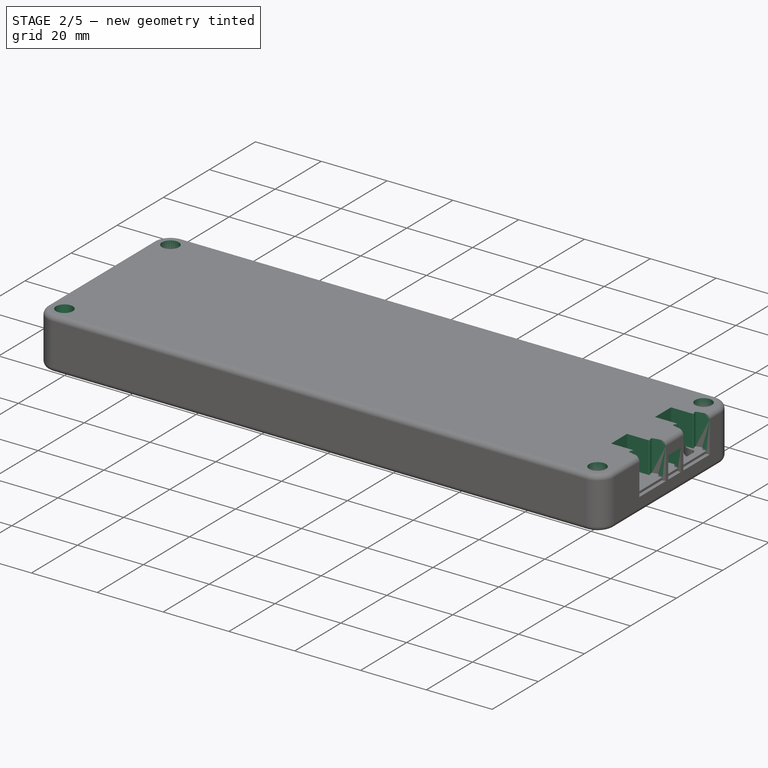
[diagram: stage 2 of 5 — iso view after this stage's code; geometry added in this stage tinted green]
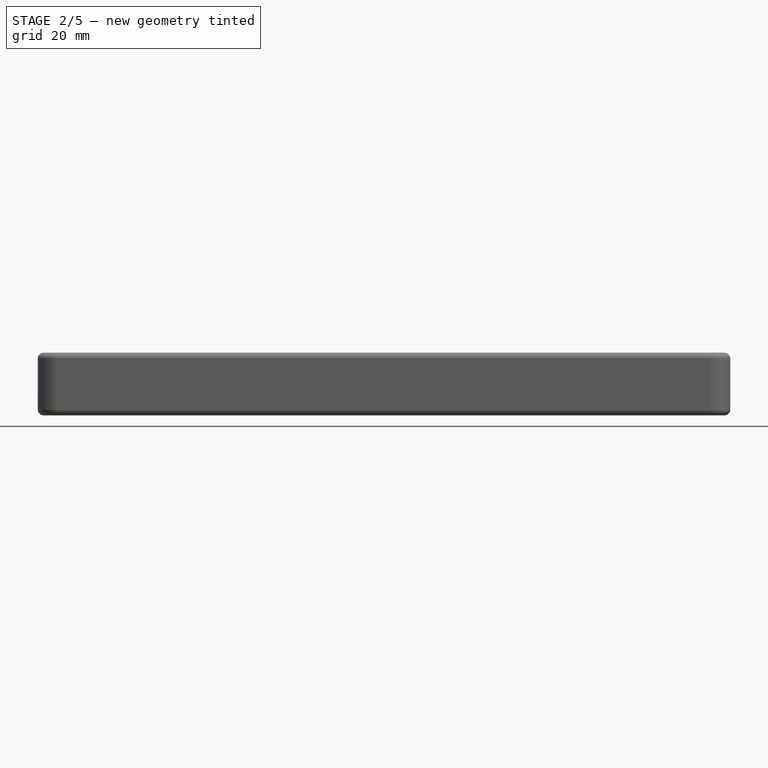
[diagram: stage 2 of 5 — front view after this stage's code; geometry added in this stage tinted green]
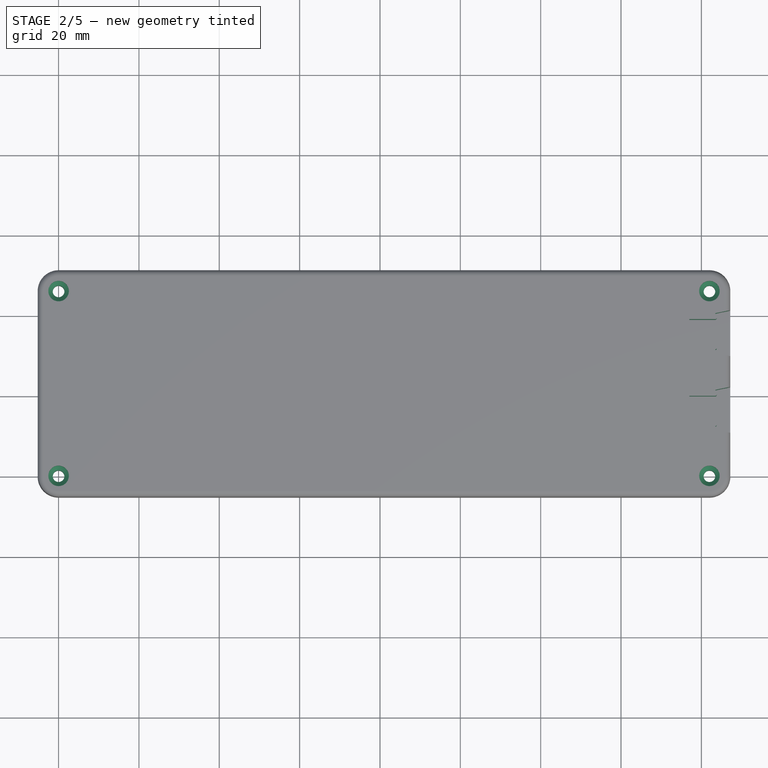
[diagram: stage 2 of 5 — top view after this stage's code; geometry added in this stage tinted green]
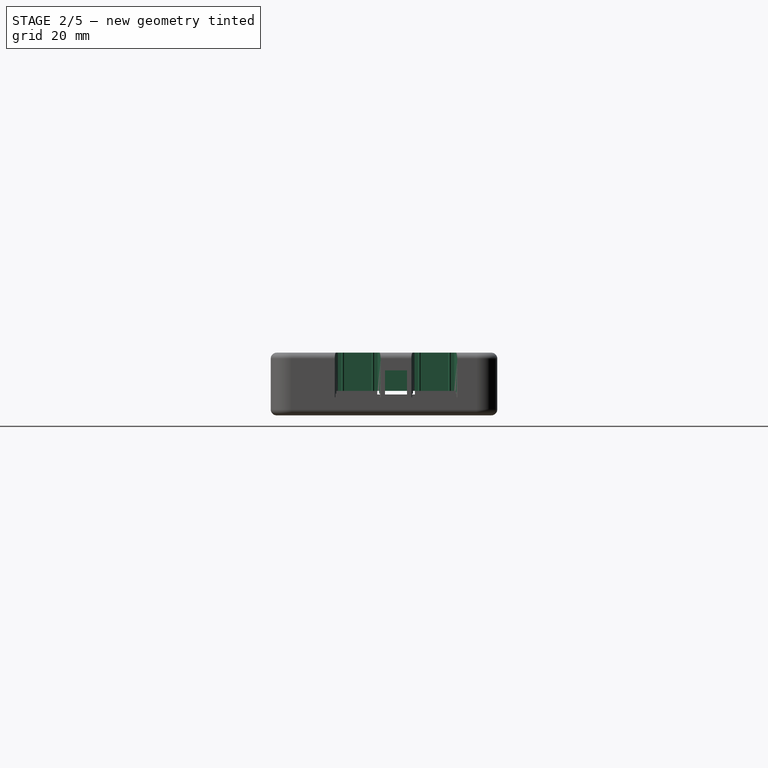
[diagram: stage 2 of 5 — right view after this stage's code; geometry added in this stage tinted green]
FEATURE [PartDesign::Pocket] Pocket002  label="TopMountingClearance"
  BaseFeature = -> Pad005
  Direction = (0,0,-1)
  Length = 5
  Length2 = 5
  Midplane = true
  Profile = -> Sketch008
  ReferenceAxis = -> Sketch008 [N_Axis]
  Refine = true
  Suppressed = false
  Type = 1
FEATURE [PartDesign::Pocket] Pocket014  label="TopMountingHeadClearance"
  BaseFeature = -> Pocket002
  Direction = (0,0,-1)
  Length = 5
  Length2 = 5
  Profile = -> Sketch026
  ReferenceAxis = -> Sketch026 [N_Axis]
  Refine = true
  Reversed = true
  Suppressed = false
  Type = 1
FEATURE [PartDesign::Chamfer] Chamfer001  label="TopMountingCountersink"
  Angle = 45
  Base = -> Pocket014 [Edge94]
  BaseFeature = -> Pocket014
  ChamferType = 0
  FlipDirection = false
  Refine = true
  Size = 1.099
  Size2 = 1
  SupportTransform = false
  Suppressed = false
  UseAllEdges = false
  expr: Size = (<<BaseParam>>.MountingScrewHeadDia + 2 * <<BaseParam>>.Tol - <<BaseParam>>.MountingClearanceDia) / 2 - 0.001 mm
FEATURE [PartDesign::MultiTransform] MultiTransform001  label="TopMountingTransform"
  BaseFeature = -> Chamfer001
  Originals = -> [Pad005,Pocket002,Pocket014,Chamfer001]
  Refine = true
  Suppressed = false
  TransformMode = 0
  Transformations = -> [Mirrored002,Mirrored003]
FEATURE [PartDesign::Pocket] Pocket003  label="UsbPocket"
  BaseFeature = -> MultiTransform001
  Direction = (-1,0,0)
  Length = 5
  Length2 = 5
  Profile = -> Sketch009
  ReferenceAxis = -> Sketch009 [N_Axis]
  Refine = true
  Suppressed = false
  Type = 1
FEATURE [PartDesign::Pocket] Pocket004  label="QwiicPocket"
  BaseFeature = -> Pocket003
  Direction = (0,1,-2e-16)
  Length = 5
  Length2 = 5
  Profile = -> Sketch010
  ReferenceAxis = -> Sketch010 [N_Axis]
  Refine = true
  Suppressed = false
  Type = 1
FEATURE [PartDesign::Chamfer] Chamfer002  label="UsbChamfer"
  Angle = 45
  Base = -> Pocket004 [Edge45,Edge46,Edge47,Edge48,Edge49]
  BaseFeature = -> Pocket004
  ChamferType = 0
  FlipDirection = false
  Refine = true
  Size = 0.5
  Size2 = 1
  SupportTransform = false
  Suppressed = false
  UseAllEdges = false
  expr: Size = <<BaseParam>>.InsertChamfer
FEATURE [PartDesign::Pad] Pad006  label="LightPipeSocket"
  BaseFeature = -> Chamfer002
  Direction = (0,0,1)
  Length = 2
  Length2 = 10
  Profile = -> Sketch013
  ReferenceAxis = -> Sketch013 [N_Axis]
  Refine = true
  Reversed = true
  Suppressed = false
  Type = 0
  expr: Length = <<BaseParam>>.LightPipeSocketDepth - <<BaseParam>>.Wall
FEATURE [PartDesign::Pad] Pad024  label="OutputJackPad"
  BaseFeature = -> Pad006
  Direction = (0,0,1)
  Length = 10
  Length2 = 10
  Profile = -> Sketch043
  ReferenceAxis = -> Sketch043 [N_Axis]
  Refine = true
  Suppressed = false
  Type = 2
FEATURE [PartDesign::Pocket] Pocket005  label="OutputJackPocket"
  BaseFeature = -> Pad024
  Direction = (0,0,-1)
  Length = 5
  Length2 = 5
  Midplane = true
  Profile = -> Sketch011
  ReferenceAxis = -> Sketch011 [N_Axis]
  Refine = true
  Suppressed = false
  Type = 1
FEATURE [PartDesign::Mirrored] Mirrored010  label="OutputJackMirror"
  BaseFeature = -> Pocket005
  MirrorPlane = -> DatumPlane012
  Originals = -> [Pad024,Pocket005]
  Refine = true
  Suppressed = false
  TransformMode = 0
FEATURE [PartDesign::Pocket] Pocket006  label="OutputPinPocket"
  BaseFeature = -> Mirrored010
  Direction = (-1,0,0)
  Length = 0
  Length2 = 5
  Profile = -> Sketch012
  ReferenceAxis = -> Sketch012 [N_Axis]
  Refine = true
  Suppressed = false
  Type = 3
  UpToFace = -> Mirrored010 [Face141]
FEATURE [PartDesign::Pad] Pad021  label="LightPipeBlocker"
  BaseFeature = -> Pocket006
  Direction = (0,0,1)
  Length = 4.1
  Length2 = 10
  Profile = -> Sketch040
  ReferenceAxis = -> Sketch040 [N_Axis]
  Refine = true
  Reversed = true
  Suppressed = false
  Type = 0
  expr: Length = <<BaseParam>>.EnclosureTopOffset - 3 mm - <<BaseParam>>.Tol * 2
FEATURE [PartDesign::Pad] Pad007  label="OledFrame"
  BaseFeature = -> Pad021
  Direction = (0,0,1)
  Length = 4
  Length2 = 10
  Profile = -> Sketch016
  ReferenceAxis = -> Sketch016 [N_Axis]
  Refine = true
  Reversed = true
  Suppressed = false
  Type = 0
  expr: Length = <<UiParams>>.OeldSocketDepth - <<BaseParam>>.Wall
FEATURE [PartDesign::Chamfer] Chamfer003  label="OledFrameChamfer"
  Angle = 45
  Base = -> Pad007 [Edge420,Edge414,Edge401,Edge395,Edge375,Edge372]
  BaseFeature = -> Pad007
  ChamferType = 0
  FlipDirection = false
  Refine = true
  Size = 1.999
  Size2 = 1
  SupportTransform = false
  Suppressed = false
  UseAllEdges = false
  expr: Size = <<UiParams>>.OledSocketChamfer - 0.001 mm
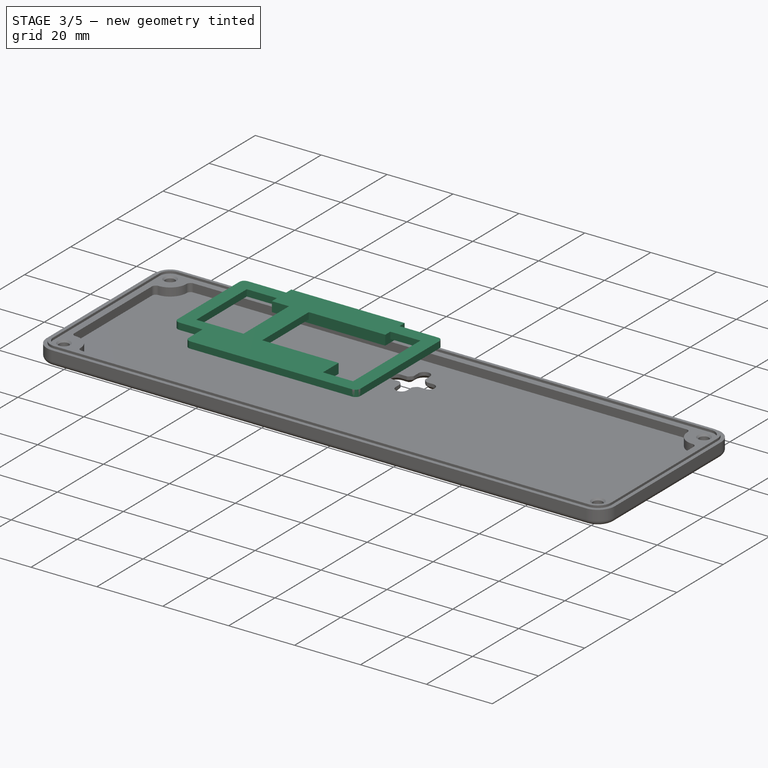
[diagram: stage 3 of 5 — iso view after this stage's code; geometry added in this stage tinted green]
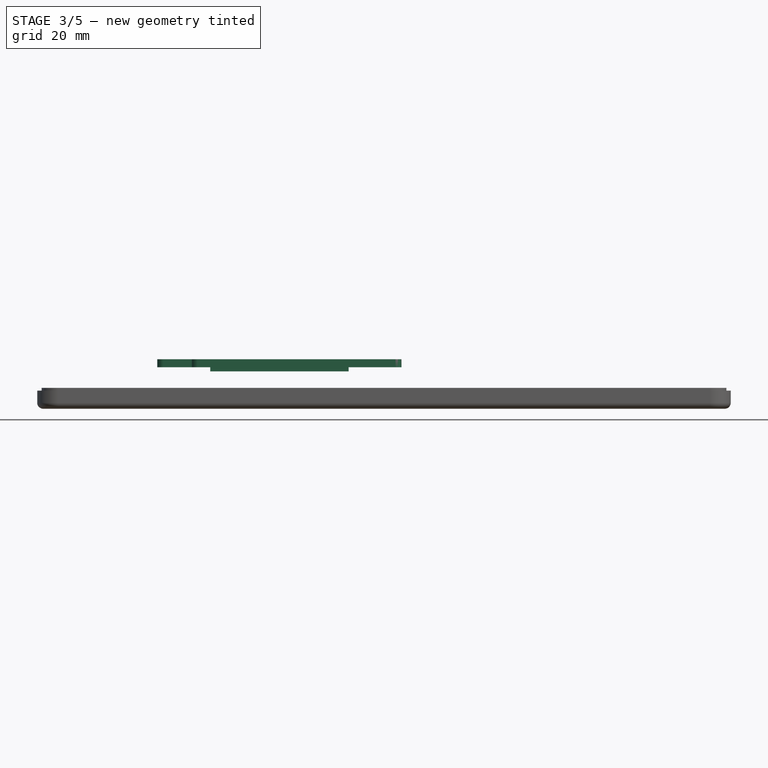
[diagram: stage 3 of 5 — front view after this stage's code; geometry added in this stage tinted green]
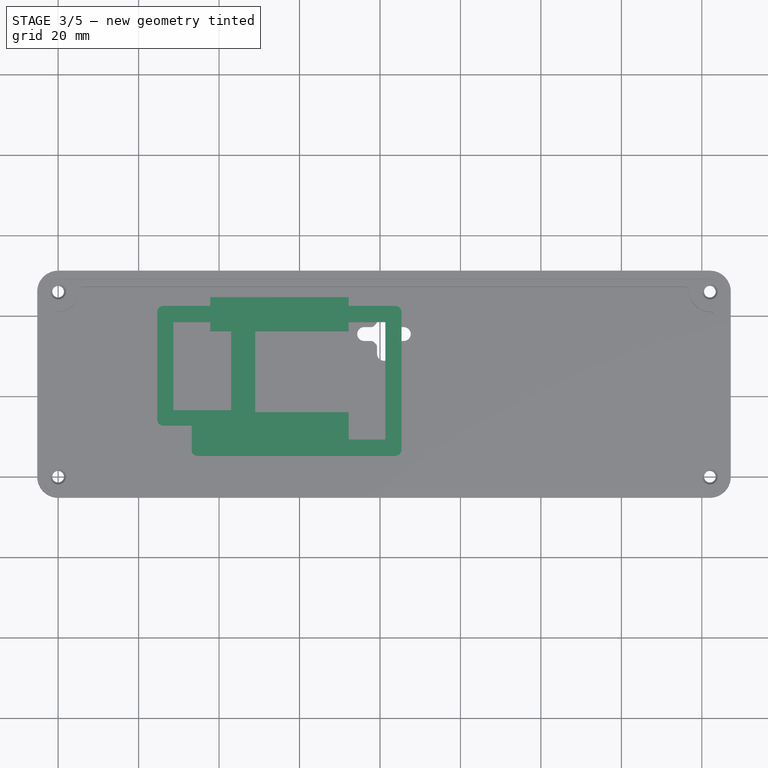
[diagram: stage 3 of 5 — top view after this stage's code; geometry added in this stage tinted green]
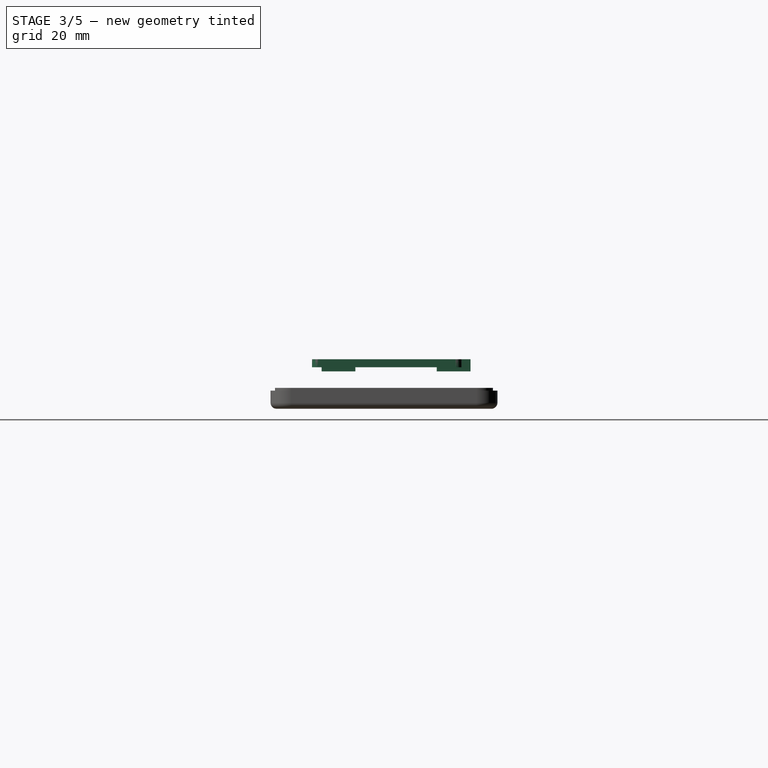
[diagram: stage 3 of 5 — right view after this stage's code; geometry added in this stage tinted green]
FEATURE [Sketcher::SketchObject] Sketch007
  ArcFitTolerance = 1e-06
  AttachmentOffset = pos=(0,0,7.5) rot=(0,0,1;0rad)
  AttachmentSupport = -> [XY_Plane001]
  FullyConstrained = true
  MakeInternals = false
  MapMode = 5
  Placement = pos=(0,0,7.5) rot=(0,0,1;0rad)
  expr: .AttachmentOffset.Base.z = <<BaseParam>>.EnclosureTopOffset
  expr: Constraints[16] = <<BaseParam>>.MountingHoleInset + <<BaseParam>>.Tol
  expr: Constraints[17] = <<BaseParam>>.MountingHoleInset + <<BaseParam>>.Tol
  expr: Constraints[2] = <<BaseParam>>.MountingHoleInset + <<BaseParam>>.Wall / 2 + <<BaseParam>>.Tol
  expr: Constraints[30] = <<BaseParam>>.MountingHoleInset
  expr: Constraints[3] = <<BaseParam>>.MountingHoleInset + <<BaseParam>>.Wall / 2 + <<BaseParam>>.Tol
  expr: Constraints[8] = <<BaseParam>>.BoardR + <<BaseParam>>.Tol + <<BaseParam>>.Wall / 2
  sketch-geometry (12):
    g0: LineSegment StartX=-4.2 StartY=6.2 StartZ=0 EndX=-4.2 EndY=9e-16 EndZ=0
    g1: LineSegment StartX=-8e-16 StartY=-4.2 StartZ=0 EndX=6.2 EndY=-4.2 EndZ=0
    g2: ArcOfCircle CenterX=0 CenterY=2e-16 CenterZ=0 NormalX=0 NormalY=0 NormalZ=1 AngleXU=0 Radius=4.2 StartAngle=3.14159 EndAngle=4.71239
    g3: GeomPoint [constr] X=-4.2 Y=-4.2 Z=0
    g4: GeomPoint [constr] X=-3.2 Y=-3.2 Z=0
    g5: ArcOfCircle CenterX=0 CenterY=2e-16 CenterZ=0 NormalX=0 NormalY=0 NormalZ=1 AngleXU=0 Radius=3 StartAngle=0 EndAngle=1.5708
    g6: ArcOfCircle CenterX=6.2 CenterY=0 CenterZ=0 NormalX=0 NormalY=0 NormalZ=1 AngleXU=0 Radius=3.2 StartAngle=3.14159 EndAngle=4.71239
    g7: ArcOfCircle CenterX=0 CenterY=6.2 CenterZ=0 NormalX=0 NormalY=0 NormalZ=1 AngleXU=0 Radius=3.2 StartAngle=3.14159 EndAngle=4.71239
    g8: LineSegment StartX=-3.2 StartY=6.2 StartZ=0 EndX=-4.2 EndY=6.2 EndZ=0
    g9: LineSegment StartX=6.2 StartY=-3.2 StartZ=0 EndX=6.2 EndY=-4.2 EndZ=0
    g10: LineSegment [constr] StartX=-3.2 StartY=6.2 StartZ=0 EndX=-3.2 EndY=-3.2 EndZ=0
    g11: LineSegment [constr] StartX=-3.2 StartY=-3.2 StartZ=0 EndX=6.2 EndY=-3.2 EndZ=0
  constraints (32):
    c: Vertical(g0)
    c: Horizontal(g1)
    c: DistanceY(g3,g-1) = 4.2
    c: DistanceX(g3,g-1) = 4.2
    c: PointOnObject(g3,g1)
    c: PointOnObject(g3,g0)
    c: Tangent(g1,g2) = -1.5708
    c: Tangent(g0,g2) = -1.5708
    c: Radius(g2) = 4.2
    c: Coincident(g5,g2)
    c: PointOnObject(g5,g-2)
    c: PointOnObject(g5,g-1)
    c: PointOnObject(g6,g-1)
    c: Coincident(g6,g5)
    c: PointOnObject(g7,g-2)
    c: Coincident(g7,g5)
    c: DistanceY(g4,g2) = 3.2
    c: DistanceX(g4,g2) = 3.2
    c: Coincident(g8,g7)
    c: Coincident(g8,g0)
    c: Coincident(g9,g1)
    c: Coincident(g6,g9)
    c: Perpendicular(g9,g1)
    c: Perpendicular(g6,g9)
    c: Perpendicular(g0,g8)
    c: Perpendicular(g7,g8)
    c: Tangent(g10,g7) = -1.5708
    c: Coincident(g10,g4)
    c: Horizontal(g11)
    c: Coincident(g6,g11)
    c: Radius(g5) = 3
    c: Coincident(g4,g11)
FEATURE [Sketcher::SketchObject] Sketch008
  ArcFitTolerance = 1e-06
  AttachmentSupport = -> [XY_Plane001]
  FullyConstrained = true
  MakeInternals = false
  MapMode = 5
  expr: Constraints[1] = <<BaseParam>>.MountingClearanceDia
  sketch-geometry (1):
    g0: Circle CenterX=0 CenterY=0 CenterZ=0 NormalX=0 NormalY=0 NormalZ=1 AngleXU=0 Radius=1.45
  constraints (2):
    c: Coincident(g0,g-1)
    c: Diameter(g0) = 2.9
FEATURE [PartDesign::Plane] DatumPlane002  label="TopCenterH"
  AttachmentOffset = pos=(0,0,-23) rot=(0,0,1;0rad)
  AttachmentSupport = -> [XZ_Plane001]
  Length = 211.806
  MapMode = 5
  Placement = pos=(0,23,-5.1e-15) rot=(1,0,0;1.5708rad)
  ResizeMode = 0
  Width = 69.6061
  expr: .AttachmentOffset.Base.z = -<<BaseParam>>.BoardH / 2 + <<BaseParam>>.MountingHoleInset
FEATURE [PartDesign::Plane] DatumPlane003  label="TopCenterW"
  AttachmentOffset = pos=(0,0,81) rot=(0,0,1;0rad)
  AttachmentSupport = -> [YZ_Plane001]
  Length = 88.545
  MapMode = 5
  Placement = pos=(81,0,0) rot=(0.57735,0.57735,0.57735;2.0944rad)
  ResizeMode = 0
  Width = 62.345
  expr: .AttachmentOffset.Base.z = <<BaseParam>>.BoardW / 2 - <<BaseParam>>.MountingHoleInset
FEATURE [PartDesign::Mirrored] Mirrored002
  MirrorPlane = -> DatumPlane003
  Refine = true
  Suppressed = false
  TransformMode = 0
FEATURE [PartDesign::Mirrored] Mirrored003
  MirrorPlane = -> DatumPlane002
  Refine = true
  Suppressed = false
  TransformMode = 0
FEATURE [Sketcher::SketchObject] Sketch009
  ArcFitTolerance = 1e-06
  AttachmentSupport = -> [YZ_Plane001]
  FullyConstrained = true
  MakeInternals = false
  MapMode = 5
  Placement = pos=(0,0,0) rot=(0.57735,0.57735,0.57735;2.0944rad)
  expr: Constraints[15] = <<BaseParam>>.Wall
  expr: Constraints[23] = <<BaseParam>>.Tol
  expr: Constraints[24] = <<BaseParam>>.Tol
  sketch-geometry (12):
    g0: LineSegment StartX=21.33 StartY=1.81 StartZ=0 EndX=21.33 EndY=-2 EndZ=0
    g1: LineSegment StartX=21.33 StartY=-2 StartZ=0 EndX=30.67 EndY=-2 EndZ=0
    g2: LineSegment StartX=30.67 StartY=-2 StartZ=0 EndX=30.67 EndY=1.81 EndZ=0
    g3: LineSegment StartX=28.99 StartY=3.49 StartZ=0 EndX=23.01 EndY=3.49 EndZ=0
    g4: GeomPoint X=26 Y=-2 Z=0
    g5: ArcOfCircle CenterX=23.01 CenterY=1.81 CenterZ=0 NormalX=0 NormalY=0 NormalZ=1 AngleXU=0 Radius=1.68 StartAngle=1.5708 EndAngle=3.14159
    g6: GeomPoint [constr] X=21.33 Y=3.49 Z=0
    g7: ArcOfCircle CenterX=28.99 CenterY=1.81 CenterZ=0 NormalX=0 NormalY=0 NormalZ=1 AngleXU=0 Radius=1.68 StartAngle=1.01228e-11 EndAngle=1.5708
    g8: GeomPoint [constr] X=30.67 Y=3.49 Z=0
    g9: LineSegment [constr] StartX=21.53 StartY=0 StartZ=0 EndX=30.47 EndY=0 EndZ=0
    g10: LineSegment [constr] StartX=26 StartY=-2 StartZ=0 EndX=26 EndY=0 EndZ=0
    g11: LineSegment [constr] StartX=26 StartY=0 StartZ=0 EndX=26 EndY=3.29 EndZ=0
  constraints (30):
    c: Coincident(g0,g1)
    c: Coincident(g1,g2)
    c: Vertical(g0)
    c: Vertical(g2)
    c: Horizontal(g1)
    c: Horizontal(g3)
    c: Symmetric(g1,g1,g4)
    c: PointOnObject(g6,g0)
    c: PointOnObject(g6,g3)
    c: Tangent(g0,g5) = -1.5708
    c: Tangent(g3,g5) = -1.5708
    c: PointOnObject(g8,g3)
    c: PointOnObject(g8,g2)
    c: Tangent(g3,g7) = -1.5708
    c: Tangent(g2,g7) = -1.5708
    c: DistanceY(g0,g-1) = 2
    c: PointOnObject(g9,g-1)
    c: PointOnObject(g9,g-1)
    c: Coincident(g10,g4)
    c: Symmetric(g9,g9,g10)
    c: Vertical(g10)
    c: Coincident(g11,g10)
    c: Vertical(g11)
    c: DistanceY(g11,g6) = 0.2
    c: DistanceX(g6,g9) = 0.2
    c: Equal(g5,g7)
    c: DistanceX(g-1,g10) = 26
    c: DistanceX(g9,g9) = 8.94
    c: DistanceY(g11,g11) = 3.29
    c: Radius(g5) = 1.68
FEATURE [Sketcher::SketchObject] Sketch010
  ArcFitTolerance = 1e-06
  AttachmentSupport = -> [XZ_Plane001]
  FullyConstrained = true
  MakeInternals = false
  MapMode = 5
  Placement = pos=(0,0,0) rot=(1,0,0;1.5708rad)
  expr: Constraints[13] = <<BaseParam>>.Tol
  expr: Constraints[14] = <<BaseParam>>.Tol
  expr: Constraints[15] = <<BaseParam>>.Wall
  expr: Constraints[18] = 2.9
  expr: Constraints[28] = <<BaseParam>>.Tol
  sketch-geometry (11):
    g0: LineSegment StartX=106.8 StartY=2.9 StartZ=0 EndX=106.8 EndY=-2 EndZ=0
    g1: LineSegment StartX=106.8 StartY=-2 StartZ=0 EndX=113.2 EndY=-2 EndZ=0
    g2: LineSegment StartX=113.2 StartY=-2 StartZ=0 EndX=113.2 EndY=2.9 EndZ=0
    g3: LineSegment StartX=113 StartY=3.1 StartZ=0 EndX=107 EndY=3.1 EndZ=0
    g4: LineSegment [constr] StartX=107 StartY=0 StartZ=0 EndX=113 EndY=0 EndZ=0
    g5: LineSegment [constr] StartX=110 StartY=0 StartZ=0 EndX=110 EndY=2.9 EndZ=0
    g6: LineSegment [constr] StartX=110 StartY=0 StartZ=0 EndX=110 EndY=-2 EndZ=0
    g7: ArcOfCircle CenterX=107 CenterY=2.9 CenterZ=0 NormalX=0 NormalY=0 NormalZ=1 AngleXU=0 Radius=0.2 StartAngle=1.5708 EndAngle=3.14159
    g8: GeomPoint [constr] X=106.8 Y=3.1 Z=0
    g9: ArcOfCircle CenterX=113 CenterY=2.9 CenterZ=0 NormalX=0 NormalY=0 NormalZ=1 AngleXU=0 Radius=0.2 StartAngle=0 EndAngle=1.5708
    g10: GeomPoint [constr] X=113.2 Y=3.1 Z=0
  constraints (29):
    c: Coincident(g0,g1)
    c: Coincident(g1,g2)
    c: Vertical(g0)
    c: Vertical(g2)
    c: Horizontal(g1)
    c: Horizontal(g3)
    c: PointOnObject(g4,g-1)
    c: PointOnObject(g4,g-1)
    c: Symmetric(g4,g4,g5)
    c: Vertical(g5)
    c: Coincident(g6,g5)
    c: Symmetric(g1,g1,g6)
    c: Vertical(g6)
    c: DistanceY(g5,g8) = 0.2
    c: DistanceX(g0,g4) = 0.2
    c: DistanceY(g6,g6) = 2
    c: DistanceX(g-1,g5) = 110
    c: DistanceX(g4,g4) = 6
    c: DistanceY(g5,g5) = 2.9
    c: PointOnObject(g8,g0)
    c: PointOnObject(g8,g3)
    c: Tangent(g0,g7) = -1.5708
    c: Tangent(g3,g7) = -1.5708
    c: PointOnObject(g10,g3)
    c: PointOnObject(g10,g2)
    c: Tangent(g3,g9) = -1.5708
    c: Tangent(g2,g9) = -1.5708
    c: Equal(g9,g7)
    c: Radius(g7) = 0.2
FEATURE [Sketcher::SketchObject] Sketch011
  ArcFitTolerance = 1e-06
  AttachmentSupport = -> [XY_Plane001]
  FullyConstrained = true
  MakeInternals = false
  MapMode = 5
  expr: Constraints[16] = <<BaseParam>>.Tol
  expr: Constraints[17] = <<BaseParam>>.Tol
  expr: Constraints[22] = <<BaseParam>>.Tol
  expr: Constraints[37] = <<BaseParam>>.Tol
  expr: Constraints[42] = <<BaseParam>>.Tol
  expr: Constraints[43] = <<BaseParam>>.Tol
  expr: Constraints[52] = <<BaseParam>>.Tol + 0.1 mm
  sketch-geometry (20):
    g0: GeomPoint X=157.92 Y=38.08 Z=0
    g1: LineSegment StartX=157 StartY=39 StartZ=0 EndX=157 EndY=32.08 EndZ=0
    g2: LineSegment StartX=157 StartY=32.08 StartZ=0 EndX=163.48 EndY=32.08 EndZ=0
    g3: LineSegment StartX=163.48 StartY=39 StartZ=0 EndX=157 EndY=39 EndZ=0
    g4: LineSegment [constr] StartX=157.2 StartY=35.54 StartZ=0 EndX=163.68 EndY=35.54 EndZ=0
    g5: LineSegment [constr] StartX=160.44 StartY=38.8 StartZ=0 EndX=160.44 EndY=35.54 EndZ=0
    g6: LineSegment [constr] StartX=160.44 StartY=35.54 StartZ=0 EndX=160.44 EndY=32.28 EndZ=0
    g7: LineSegment [constr] StartX=157.2 StartY=35.54 StartZ=0 EndX=157 EndY=35.54 EndZ=0
    g8: LineSegment [constr] StartX=163.48 StartY=39 StartZ=0 EndX=163.48 EndY=40.49 EndZ=0
    g9: LineSegment StartX=163.48 StartY=40.49 StartZ=0 EndX=172.99 EndY=42.49 EndZ=0
    g10: LineSegment StartX=172.99 StartY=42.49 StartZ=0 EndX=172.99 EndY=28.59 EndZ=0
    g11: LineSegment StartX=172.99 StartY=28.59 StartZ=0 EndX=163.48 EndY=30.59 EndZ=0
    g12: LineSegment [constr] StartX=163.48 StartY=30.59 StartZ=0 EndX=163.48 EndY=32.08 EndZ=0
    g13: LineSegment [constr] StartX=163.68 StartY=35.54 StartZ=0 EndX=163.68 EndY=40.29 EndZ=0
    g14: LineSegment [constr] StartX=172.79 StartY=35.54 StartZ=0 EndX=172.79 EndY=42.29 EndZ=0
    g15: LineSegment [constr] StartX=172.99 StartY=35.54 StartZ=0 EndX=172.79 EndY=35.54 EndZ=0
    g16: ArcOfCircle CenterX=163.48 CenterY=31.78 CenterZ=0 NormalX=0 NormalY=0 NormalZ=1 AngleXU=0 Radius=0.3 StartAngle=4.71239 EndAngle=7.85398
    g17: LineSegment StartX=163.48 StartY=31.48 StartZ=0 EndX=163.48 EndY=30.59 EndZ=0
    g18: ArcOfCircle CenterX=163.48 CenterY=39.3 CenterZ=0 NormalX=0 NormalY=0 NormalZ=1 AngleXU=0 Radius=0.3 StartAngle=4.71239 EndAngle=7.85398
    g19: LineSegment StartX=163.48 StartY=40.49 StartZ=0 EndX=163.48 EndY=39.6 EndZ=0
  constraints (59):
    c: DistanceX(g-1,g0) = 157.92
    c: DistanceY(g-1,g0) = 38.08
    c: Coincident(g1,g2)
    c: Coincident(g3,g1)
    c: Vertical(g1)
    c: Horizontal(g2)
    c: Horizontal(g3)
    c: Horizontal(g4)
    c: Symmetric(g4,g4,g5)
    c: Vertical(g5)
    c: Coincident(g6,g5)
    c: Vertical(g6)
    c: Equal(g5,g6)
    c: Coincident(g7,g4)
    c: Symmetric(g1,g1,g7)
    c: Horizontal(g7)
    c: DistanceX(g7,g7) = 0.2
    c: DistanceY(g5,g1) = 0.2
    c: DistanceY(g0,g5) = 0.72
    c: DistanceX(g4,g0) = 0.72
    c: DistanceY(g6,g5) = 6.52
    c: DistanceX(g4,g4) = 6.48
    c: DistanceX(g3,g4) = 0.2
    c: Vertical(g8)
    c: Coincident(g9,g8)
    c: Coincident(g10,g9)
    c: Vertical(g10)
    c: Coincident(g11,g10)
    c: Coincident(g12,g11)
    c: Coincident(g12,g2)
    c: Vertical(g12)
    c: Equal(g8,g12)
    c: Coincident(g13,g4)
    c: Vertical(g13)
    c: Vertical(g14)
    c: PointOnObject(g14,g4)
    c: DistanceY(g13,g13) = 4.75
    c: DistanceY(g13,g8) = 0.2
    c: Coincident(g3,g8)
    c: PointOnObject(g2,g8)
    c: DistanceX(g4,g14) = 9.11
    c: DistanceY(g14,g14) = 6.75
    c: DistanceX(g14,g9) = 0.2
    c: DistanceY(g14,g9) = 0.2
    c: Symmetric(g10,g10,g15)
    c: Coincident(g15,g14)
    c: Horizontal(g15)
    c: Coincident(g16,g2)
    c: PointOnObject(g16,g12)
    c: PointOnObject(g16,g12)
    c: Coincident(g17,g16)
    c: Coincident(g17,g11)
    c: Radius(g16) = 0.3
    c: PointOnObject(g18,g8)
    c: Coincident(g18,g3)
    c: PointOnObject(g18,g8)
    c: Coincident(g19,g8)
    c: Coincident(g19,g18)
    c: Equal(g18,g16)
FEATURE [Sketcher::SketchObject] Sketch012
  ArcFitTolerance = 1e-06
  AttachmentOffset = pos=(0,0,170) rot=(0,0,1;0rad)
  AttachmentSupport = -> [YZ_Plane001]
  FullyConstrained = true
  MakeInternals = false
  MapMode = 5
  Placement = pos=(170,0,0) rot=(0.57735,0.57735,0.57735;2.0944rad)
  expr: .AttachmentOffset.Base.z = <<BaseParam>>.BoardW + <<BaseParam>>.Wall
  expr: Constraints[19] = 5.08 mm + <<BaseParam>>.Tol * 2
  expr: Constraints[8] = <<BaseParam>>.Wall
  sketch-geometry (7):
    g0: LineSegment StartX=28.74 StartY=5.08 StartZ=0 EndX=28.74 EndY=-2 EndZ=0
    g1: LineSegment StartX=28.74 StartY=-2 StartZ=0 EndX=23.26 EndY=-2 EndZ=0
    g2: LineSegment StartX=23.26 StartY=-2 StartZ=0 EndX=23.26 EndY=5.08 EndZ=0
    g3: LineSegment StartX=23.26 StartY=5.08 StartZ=0 EndX=28.74 EndY=5.08 EndZ=0
    g4: LineSegment [constr] StartX=26 StartY=0 StartZ=0 EndX=26 EndY=-2 EndZ=0
    g5: LineSegment [constr] StartX=23.26 StartY=0 StartZ=0 EndX=28.74 EndY=0 EndZ=0
    g6: LineSegment [constr] StartX=26 StartY=0 StartZ=0 EndX=26 EndY=5.08 EndZ=0
  constraints (20):
    c: Coincident(g0,g1)
    c: Coincident(g1,g2)
    c: Coincident(g2,g3)
    c: Coincident(g3,g0)
    c: Vertical(g0)
    c: Vertical(g2)
    c: Horizontal(g1)
    c: Horizontal(g3)
    c: DistanceY(g0,g-1) = 2
    c: PointOnObject(g4,g-1)
    c: Symmetric(g1,g1,g4)
    c: Vertical(g4)
    c: PointOnObject(g5,g-1)
    c: Symmetric(g5,g5,g4)
    c: Coincident(g6,g4)
    c: Symmetric(g3,g3,g6)
    c: DistanceY(g6,g6) = 5.08
    c: DistanceX(g-1,g4) = 26
    c: PointOnObject(g5,g2)
    c: DistanceX(g5,g5) = 5.48
FEATURE [PartDesign::Line] DatumLine  label="UsbLedAxis"
  AttacherType = Attacher::AttachEngineLine
  AttachmentOffset = pos=(9,26,0) rot=(0,0,1;0rad)
  AttachmentSupport = -> [Z_Axis001]
  Length = 20
  MapMode = 29
  Placement = pos=(9,26,0) rot=(0,0,1;0rad)
  ResizeMode = 0
FEATURE [PartDesign::Line] DatumLine001  label="EncoderAxis"
  AttacherType = Attacher::AttachEngineLine
  AttachmentOffset = pos=(100,36,0) rot=(0,0,1;0rad)
  AttachmentSupport = -> [Z_Axis001]
  Length = 20
  MapMode = 29
  Placement = pos=(100,36,0) rot=(0,0,1;0rad)
  ResizeMode = 0
FEATURE [PartDesign::Line] DatumLine002  label="EncoderLed1Axis"
  AttacherType = Attacher::AttachEngineLine
  AttachmentOffset = pos=(90,36,0) rot=(0,0,1;0rad)
  AttachmentSupport = -> [Z_Axis001]
  Length = 20
  MapMode = 29
  Placement = pos=(90,36,0) rot=(0,0,1;0rad)
  ResizeMode = 0
FEATURE [PartDesign::Line] DatumLine003  label="OutputLedAxis"
  AttacherType = Attacher::AttachEngineLine
  AttachmentOffset = pos=(155,16.5,0) rot=(0,0,1;0rad)
  AttachmentSupport = -> [Z_Axis001]
  Length = 20
  MapMode = 29
  Placement = pos=(155,16.5,0) rot=(0,0,1;0rad)
  ResizeMode = 0
FEATURE [PartDesign::Line] DatumLine004  label="OledCenterAxis"
  AttacherType = Attacher::AttachEngineLine
  AttachmentOffset = pos=(55,26,0) rot=(0,0,1;0rad)
  AttachmentSupport = -> [Z_Axis001]
  Length = 20
  MapMode = 29
  Placement = pos=(55,26,0) rot=(0,0,1;0rad)
  ResizeMode = 0
FEATURE [PartDesign::Line] DatumLine005  label="DSwitchAxis"
  AttacherType = Attacher::AttachEngineLine
  AttachmentOffset = pos=(100,13,0) rot=(0,0,1;0rad)
  AttachmentSupport = -> [Z_Axis001]
  Length = 20
  MapMode = 29
  Placement = pos=(100,13,0) rot=(0,0,1;0rad)
  ResizeMode = 0
FEATURE [PartDesign::Line] DatumLine006  label="FanCenterAxis"
  AttacherType = Attacher::AttachEngineLine
  AttachmentOffset = pos=(135,22,0) rot=(0,0,1;0rad)
  AttachmentSupport = -> [Z_Axis001]
  Length = 20
  MapMode = 29
  Placement = pos=(135,22,0) rot=(0,0,1;0rad)
  ResizeMode = 0
FEATURE [Sketcher::SketchObject] Sketch013
  ArcFitTolerance = 1e-06
  AttachmentOffset = pos=(0,0,7.5) rot=(0,0,1;0rad)
  AttachmentSupport = -> [XY_Plane001]
  ExternalGeometry = -> [DatumLine,DatumLine002,DatumLine001,DatumLine003]
  FullyConstrained = true
  MakeInternals = false
  MapMode = 5
  Placement = pos=(0,0,7.5) rot=(0,0,1;0rad)
  expr: .AttachmentOffset.Base.z = <<BaseParam>>.EnclosureTopOffset
  expr: Constraints[12] = <<BaseParam>>.LightPipeWidth + <<BaseParam>>.Wall * 2 + <<BaseParam>>.Tol * 2
  expr: Constraints[13] = <<BaseParam>>.LightPipeHeight - <<BaseParam>>.LightPipeWidth
  sketch-geometry (15):
    g0: LineSegment StartX=5.8 StartY=29 StartZ=0 EndX=5.8 EndY=23 EndZ=0
    g1: LineSegment StartX=12.2 StartY=29 StartZ=0 EndX=12.2 EndY=23 EndZ=0
    g2: ArcOfCircle CenterX=9 CenterY=29 CenterZ=0 NormalX=0 NormalY=0 NormalZ=1 AngleXU=0 Radius=3.2 StartAngle=-2.7e-15 EndAngle=3.14159
    g3: ArcOfCircle CenterX=9 CenterY=23 CenterZ=0 NormalX=0 NormalY=0 NormalZ=1 AngleXU=0 Radius=3.2 StartAngle=3.14159 EndAngle=6.28319
    g4: LineSegment [constr] StartX=5.8 StartY=23 StartZ=0 EndX=12.2 EndY=23 EndZ=0
    g5: LineSegment [constr] StartX=5.8 StartY=29 StartZ=0 EndX=12.2 EndY=29 EndZ=0
    g6: LineSegment StartX=151.8 StartY=19.5 StartZ=0 EndX=151.8 EndY=13.5 EndZ=0
    g7: LineSegment [constr] StartX=151.8 StartY=13.5 StartZ=0 EndX=158.2 EndY=13.5 EndZ=0
    g8: LineSegment StartX=158.2 StartY=13.5 StartZ=0 EndX=158.2 EndY=19.5 EndZ=0
    g9: LineSegment [constr] StartX=158.2 StartY=19.5 StartZ=0 EndX=151.8 EndY=19.5 EndZ=0
    g10: ArcOfCircle CenterX=155 CenterY=19.5 CenterZ=0 NormalX=0 NormalY=0 NormalZ=1 AngleXU=0 Radius=3.2 StartAngle=3e-16 EndAngle=3.14159
    g11: ArcOfCircle CenterX=155 CenterY=13.5 CenterZ=0 NormalX=0 NormalY=0 NormalZ=1 AngleXU=0 Radius=3.2 StartAngle=3.14159 EndAngle=6.28319
    g12: Circle CenterX=100 CenterY=36 CenterZ=0 NormalX=0 NormalY=0 NormalZ=1 AngleXU=0 Radius=6.8
    g13: Circle CenterX=100 CenterY=36 CenterZ=0 NormalX=0 NormalY=0 NormalZ=1 AngleXU=0 Radius=13.2
    g14: LineSegment [constr] StartX=86.8 StartY=36 StartZ=0 EndX=93.2 EndY=36 EndZ=0
  constraints (36):
    c: Vertical(g0)
    c: Symmetric(g0,g1,g-3)
    c: Symmetric(g0,g1,g-3)
    c: Coincident(g2,g1)
    c: Coincident(g3,g1)
    c: Coincident(g4,g0)
    c: Coincident(g4,g1)
    c: Coincident(g5,g0)
    c: Coincident(g5,g1)
    c: PointOnObject(g2,g5)
    c: Tangent(g3,g0) = -1.5708
    c: Tangent(g2,g0) = -1.5708
    c: DistanceX(g5,g5) = 6.4
    c: DistanceY(g3,g2) = 6
    c: Coincident(g7,g8)
    c: Coincident(g8,g9)
    c: Vertical(g6)
    c: Vertical(g8)
    c: Symmetric(g10,g11,g-6)
    c: Coincident(g7,g11)
    c: Coincident(g8,g10)
    c: Horizontal(g7)
    c: Horizontal(g9)
    c: Tangent(g6,g11) = -1.5708
    c: Tangent(g6,g10) = -1.5708
    c: Equal(g9,g5)
    c: Equal(g0,g6)
    c: Coincident(g6,g7)
    c: Coincident(g6,g9)
    c: Coincident(g12,g-5)
    c: Coincident(g13,g12)
    c: PointOnObject(g14,g13)
    c: PointOnObject(g14,g12)
    c: Horizontal(g14)
    c: Symmetric(g14,g14,g-4)
    c: Equal(g14,g5)
FEATURE [Sketcher::SketchObject] Sketch014
  ArcFitTolerance = 1e-06
  AttachmentSupport = -> [XY_Plane001]
  ExternalGeometry = -> [DatumLine,DatumLine003]
  FullyConstrained = true
  MakeInternals = false
  MapMode = 5
  expr: Constraints[19] = <<BaseParam>>.LightPipeWidth + 2 * <<BaseParam>>.Tol
  expr: Constraints[20] = <<BaseParam>>.LightPipeHeight - <<BaseParam>>.LightPipeWidth
  sketch-geometry (12):
    g0: LineSegment StartX=7.8 StartY=29 StartZ=0 EndX=7.8 EndY=23 EndZ=0
    g1: LineSegment [constr] StartX=7.8 StartY=23 StartZ=0 EndX=10.2 EndY=23 EndZ=0
    g2: LineSegment StartX=10.2 StartY=23 StartZ=0 EndX=10.2 EndY=29 EndZ=0
    g3: LineSegment [constr] StartX=10.2 StartY=29 StartZ=0 EndX=7.8 EndY=29 EndZ=0
    g4: LineSegment StartX=153.8 StartY=19.5 StartZ=0 EndX=153.8 EndY=13.5 EndZ=0
    g5: LineSegment [constr] StartX=153.8 StartY=13.5 StartZ=0 EndX=156.2 EndY=13.5 EndZ=0
    g6: LineSegment StartX=156.2 StartY=13.5 StartZ=0 EndX=156.2 EndY=19.5 EndZ=0
    g7: LineSegment [constr] StartX=156.2 StartY=19.5 StartZ=0 EndX=153.8 EndY=19.5 EndZ=0
    g8: ArcOfCircle CenterX=9 CenterY=29 CenterZ=0 NormalX=0 NormalY=0 NormalZ=1 AngleXU=0 Radius=1.2 StartAngle=1.1e-15 EndAngle=3.14159
    g9: ArcOfCircle CenterX=9 CenterY=23 CenterZ=0 NormalX=0 NormalY=0 NormalZ=1 AngleXU=0 Radius=1.2 StartAngle=3.14159 EndAngle=6.28319
    g10: ArcOfCircle CenterX=155 CenterY=19.5 CenterZ=0 NormalX=0 NormalY=0 NormalZ=1 AngleXU=0 Radius=1.2 StartAngle=-2.93e-14 EndAngle=3.14159
    g11: ArcOfCircle CenterX=155 CenterY=13.5 CenterZ=0 NormalX=0 NormalY=0 NormalZ=1 AngleXU=0 Radius=1.2 StartAngle=3.14159 EndAngle=6.28319
  constraints (34):
    c: Coincident(g0,g1)
    c: Coincident(g1,g2)
    c: Coincident(g2,g3)
    c: Coincident(g3,g0)
    c: Vertical(g0)
    c: Vertical(g2)
    c: Horizontal(g3)
    c: Coincident(g4,g5)
    c: Coincident(g5,g6)
    c: Coincident(g6,g7)
    c: Coincident(g7,g4)
    c: Vertical(g4)
    c: Vertical(g6)
    c: Coincident(g8,g0)
    c: Symmetric(g0,g9,g-3)
    c: Coincident(g0,g9)
    c: Coincident(g1,g9)
    c: PointOnObject(g9,g1)
    c: Horizontal(g1)
    c: DistanceX(g3,g3) = 2.4
    c: DistanceY(g0,g0) = 6
    c: Coincident(g5,g11)
    c: Coincident(g4,g10)
    c: PointOnObject(g11,g5)
    c: Horizontal(g5)
    c: Coincident(g4,g11)
    c: Coincident(g6,g10)
    c: Horizontal(g7)
    c: PointOnObject(g10,g7)
    c: Equal(g0,g4)
    c: Equal(g3,g7)
    c: Coincident(g2,g8)
    c: PointOnObject(g8,g3)
    c: Symmetric(g4,g5,g-4)
FEATURE [Sketcher::SketchObject] Sketch015
  ArcFitTolerance = 1e-06
  AttachmentSupport = -> [XY_Plane001]
  ExternalGeometry = -> [DatumLine002,DatumLine001]
  FullyConstrained = true
  MakeInternals = false
  MapMode = 5
  expr: Constraints[10] = <<BaseParam>>.LightPipeWidth + <<BaseParam>>.Tol * 2
  expr: Constraints[28] = (<<BaseParam>>.LightPipeHeight - <<BaseParam>>.LightPipeWidth) / 2
  sketch-geometry (11):
    g0: ArcOfCircle CenterX=100 CenterY=36 CenterZ=0 NormalX=0 NormalY=0 NormalZ=1 AngleXU=0 Radius=8.8 StartAngle=2.8369 EndAngle=3.44629
    g1: ArcOfCircle CenterX=100 CenterY=36 CenterZ=0 NormalX=0 NormalY=0 NormalZ=1 AngleXU=0 Radius=11.2 StartAngle=2.8369 EndAngle=3.44629
    g2: LineSegment [constr] StartX=91.6053 StartY=38.64 StartZ=0 EndX=89.3159 EndY=39.36 EndZ=0
    g3: LineSegment [constr] StartX=89.3159 StartY=32.64 StartZ=0 EndX=91.6053 EndY=33.36 EndZ=0
    g4: LineSegment [constr] StartX=88.8 StartY=36 StartZ=0 EndX=91.2 EndY=36 EndZ=0
    g5: ArcOfCircle CenterX=90.4606 CenterY=39 CenterZ=0 NormalX=0 NormalY=0 NormalZ=1 AngleXU=0 Radius=1.2 StartAngle=5.97849 EndAngle=9.12009
    g6: ArcOfCircle CenterX=90.4606 CenterY=33 CenterZ=0 NormalX=0 NormalY=0 NormalZ=1 AngleXU=0 Radius=1.2 StartAngle=3.44629 EndAngle=6.58788
    g7: LineSegment [constr] StartX=91.6053 StartY=38.64 StartZ=0 EndX=91.6053 EndY=33.36 EndZ=0
    g8: LineSegment [constr] StartX=100 StartY=36 StartZ=0 EndX=93.7303 EndY=29.7303 EndZ=0
    g9: LineSegment [constr] StartX=90.4606 StartY=33 StartZ=0 EndX=93.7303 EndY=29.7303 EndZ=0
    g10: GeomPoint X=91.3091 Y=32.1515 Z=0
  constraints (29):
    c: Coincident(g0,g-4)
    c: Coincident(g1,g0)
    c: Coincident(g2,g1)
    c: Coincident(g3,g1)
    c: Coincident(g3,g0)
    c: PointOnObject(g0,g3)
    c: PointOnObject(g0,g2)
    c: PointOnObject(g4,g1)
    c: PointOnObject(g4,g0)
    c: Horizontal(g4)
    c: DistanceX(g4,g4) = 2.4
    c: Coincident(g5,g1)
    c: Symmetric(g4,g4,g-3)
    c: Coincident(g1,g6)
    c: Coincident(g7,g0)
    c: Vertical(g7)
    c: Tangent(g0,g5) = 1.5708
    c: Tangent(g6,g0) = 1.5708
    c: Coincident(g0,g2)
    c: Coincident(g0,g7)
    c: Coincident(g8,g0)
    c: Coincident(g9,g6)
    c: Coincident(g9,g8)
    c: Angle(g4,g8) = 0.785398
    c: Perpendicular(g8,g9)
    c: PointOnObject(g10,g6)
    c: PointOnObject(g10,g9)
    c: Distance(g10,g8) = 3.42405
    c: DistanceY(g-3,g5) = 3
FEATURE [Spreadsheet::Sheet] Spreadsheet001  label="UiParams"
  cells = A1='OledVisWidth; B1(OledVisWidth)==57.01 mm; A2='OledVisHeight; B2(OledVisHeight)==29.49 mm; A3='OledWidth; B3(OledWidth)==60.7 mm; A4='OledHeight; B4(OledHeight)==37.2 mm; A5='OledHeightTop; B5(OledHeightTop)==32.608 mm / 2; A6='OledRibbonWidth; B6(OledRibbonWidth)==12.7 mm; A7='OledThickness; B7(OledThickness)==2.1 mm; A9='OledEdgeCutoufRadius; B9(OledEdgeCutoufRadius)==1 mm; A10='OledFrameLength; B10(OledFrameLength)==6 mm; A11='OledBezelThick; B11(OledBezelThick)==1 mm; C11='reduced thickness for OLED bezel; A12='OeldSocketDepth; B12(OeldSocketDepth)==6 mm; A13='OledSocketChamfer; B13(OledSocketChamfer)==2 mm; A15='OledSpringWidth; B15(OledSpringWidth)==4 mm; A16='OledSpringLength; B16(OledSpringLength)==26 mm; C16='excluding flat ends; A17='OledSpringEndLength; B17(OledSpringEndLength)==2 mm; C17='each end; A18='OledSpringDepth; B18(OledSpringDepth)==1 mm; C18='inset depth, exact both sides; A19='OledSpringInterference; B19(OledSpringInterference)==0.5 mm; C19='true interference accounting for all tolerances in th design; A20='OledSpringThickness; B20(OledSpringThickness)==0.4 mm; A22='DSwitchDia; B22(DSwitchDia)==5 mm; A23='DSwitchTravel; B23(DSwitchTravel)==2 mm; A25='LedThickness; B25(LedThickness)==0.84 mm
FEATURE [Sketcher::SketchObject] Sketch016
  ArcFitTolerance = 1e-06
  AttachmentOffset = pos=(0,0,7.5) rot=(0,0,1;0rad)
  AttachmentSupport = -> [XY_Plane001]
  ExternalGeometry = -> [DatumLine004]
  FullyConstrained = true
  MakeInternals = false
  MapMode = 5
  Placement = pos=(0,0,7.5) rot=(0,0,1;0rad)
  expr: .AttachmentOffset.Base.z = <<BaseParam>>.EnclosureTopOffset
  expr: Constraints[106] = <<UiParams>>.OledFrameLength
  expr: Constraints[117] = <<BaseParam>>.Tol
  expr: Constraints[118] = <<BaseParam>>.Tol
  expr: Constraints[11] = <<UiParams>>.OledWidth
  expr: Constraints[12] = <<UiParams>>.OledHeight
  expr: Constraints[13] = <<UiParams>>.OledHeightTop
  expr: Constraints[62] = <<UiParams>>.OledSocketChamfer + 1 mm
  expr: Constraints[67] = <<UiParams>>.OledEdgeCutoufRadius
  expr: Constraints[71] = <<BaseParam>>.Tol
  expr: Constraints[72] = <<BaseParam>>.Tol
  sketch-geometry (41):
    g0: LineSegment [constr] StartX=24.65 StartY=42.304 StartZ=0 EndX=24.65 EndY=5.104 EndZ=0
    g1: LineSegment [constr] StartX=24.65 StartY=5.104 StartZ=0 EndX=85.35 EndY=5.104 EndZ=0
    g2: LineSegment [constr] StartX=85.35 StartY=5.104 StartZ=0 EndX=85.35 EndY=42.304 EndZ=0
    g3: LineSegment [constr] StartX=85.35 StartY=42.304 StartZ=0 EndX=24.65 EndY=42.304 EndZ=0
    g4: LineSegment [constr] StartX=55 StartY=26 StartZ=0 EndX=55 EndY=42.304 EndZ=0
    g5: LineSegment StartX=21.45 StartY=41.304 StartZ=0 EndX=21.45 EndY=35.304 EndZ=0
    g6: LineSegment StartX=21.45 StartY=35.304 StartZ=0 EndX=24.45 EndY=35.304 EndZ=0
    g7: LineSegment StartX=24.45 StartY=35.304 StartZ=0 EndX=24.45 EndY=41.304 EndZ=0
    g8: LineSegment StartX=24.45 StartY=41.304 StartZ=0 EndX=21.45 EndY=41.304 EndZ=0
    g9: LineSegment StartX=25.65 StartY=45.504 StartZ=0 EndX=25.65 EndY=42.504 EndZ=0
    g10: LineSegment StartX=25.65 StartY=42.504 StartZ=0 EndX=31.65 EndY=42.504 EndZ=0
    g11: LineSegment StartX=31.65 StartY=42.504 StartZ=0 EndX=31.65 EndY=45.504 EndZ=0
    g12: LineSegment StartX=31.65 StartY=45.504 StartZ=0 EndX=25.65 EndY=45.504 EndZ=0
    g13: LineSegment StartX=78.35 StartY=45.504 StartZ=0 EndX=78.35 EndY=42.504 EndZ=0
    g14: LineSegment StartX=78.35 StartY=42.504 StartZ=0 EndX=84.35 EndY=42.504 EndZ=0
    g15: LineSegment StartX=84.35 StartY=42.504 StartZ=0 EndX=84.35 EndY=45.504 EndZ=0
    g16: LineSegment StartX=84.35 StartY=45.504 StartZ=0 EndX=78.35 EndY=45.504 EndZ=0
    g17: LineSegment StartX=85.55 StartY=41.304 StartZ=0 EndX=85.55 EndY=35.304 EndZ=0
    g18: LineSegment StartX=85.55 StartY=35.304 StartZ=0 EndX=88.55 EndY=35.304 EndZ=0
    g19: LineSegment StartX=88.55 StartY=35.304 StartZ=0 EndX=88.55 EndY=41.304 EndZ=0
    g20: LineSegment StartX=88.55 StartY=41.304 StartZ=0 EndX=85.55 EndY=41.304 EndZ=0
    g21: LineSegment StartX=78.35 StartY=4.904 StartZ=0 EndX=78.35 EndY=1.904 EndZ=0
    g22: LineSegment StartX=78.35 StartY=1.904 StartZ=0 EndX=84.35 EndY=1.904 EndZ=0
    g23: LineSegment StartX=84.35 StartY=1.904 StartZ=0 EndX=84.35 EndY=4.904 EndZ=0
    g24: LineSegment StartX=84.35 StartY=4.904 StartZ=0 EndX=78.35 EndY=4.904 EndZ=0
    g25: LineSegment StartX=85.55 StartY=12.104 StartZ=0 EndX=85.55 EndY=6.104 EndZ=0
    g26: LineSegment StartX=85.55 StartY=6.104 StartZ=0 EndX=88.55 EndY=6.104 EndZ=0
    g27: LineSegment StartX=88.55 StartY=6.104 StartZ=0 EndX=88.55 EndY=12.104 EndZ=0
    g28: LineSegment StartX=88.55 StartY=12.104 StartZ=0 EndX=85.55 EndY=12.104 EndZ=0
    g29: LineSegment [constr] StartX=25.65 StartY=42.504 StartZ=0 EndX=24.65 EndY=42.504 EndZ=0
    g30: LineSegment [constr] StartX=24.45 StartY=41.304 StartZ=0 EndX=24.45 EndY=42.304 EndZ=0
    g31: LineSegment [constr] StartX=21.45 StartY=12.104 StartZ=0 EndX=21.45 EndY=6.104 EndZ=0
    g32: LineSegment [constr] StartX=21.45 StartY=6.104 StartZ=0 EndX=24.45 EndY=6.104 EndZ=0
    g33: LineSegment [constr] StartX=24.45 StartY=6.104 StartZ=0 EndX=24.45 EndY=12.104 EndZ=0
    g34: LineSegment [constr] StartX=24.45 StartY=12.104 StartZ=0 EndX=21.45 EndY=12.104 EndZ=0
    g35: LineSegment [constr] StartX=25.65 StartY=4.904 StartZ=0 EndX=25.65 EndY=1.904 EndZ=0
    g36: LineSegment [constr] StartX=25.65 StartY=1.904 StartZ=0 EndX=31.65 EndY=1.904 EndZ=0
    g37: LineSegment [constr] StartX=31.65 StartY=1.904 StartZ=0 EndX=31.65 EndY=4.904 EndZ=0
    g38: LineSegment [constr] StartX=31.65 StartY=4.904 StartZ=0 EndX=25.65 EndY=4.904 EndZ=0
    g39: LineSegment [constr] StartX=84.35 StartY=4.904 StartZ=0 EndX=85.35 EndY=4.904 EndZ=0
    g40: LineSegment [constr] StartX=85.55 StartY=6.104 StartZ=0 EndX=85.55 EndY=5.104 EndZ=0
  constraints (121):
    c: Coincident(g0,g1)
    c: Coincident(g1,g2)
    c: Coincident(g2,g3)
    c: Coincident(g3,g0)
    c: Vertical(g0)
    c: Vertical(g2)
    c: Horizontal(g1)
    c: Horizontal(g3)
    c: Coincident(g4,g-3)
    c: Symmetric(g3,g3,g4)
    c: Vertical(g4)
    c: DistanceX(g3,g3) = 60.7
    c: DistanceY(g2,g2) = 37.2
    c: DistanceY(g4,g4) = 16.304
    c: Coincident(g5,g6)
    c: Coincident(g6,g7)
    c: Coincident(g7,g8)
    c: Coincident(g8,g5)
    c: Vertical(g5)
    c: Vertical(g7)
    c: Horizontal(g6)
    c: Horizontal(g8)
    c: Coincident(g9,g10)
    c: Coincident(g10,g11)
    c: Coincident(g11,g12)
    c: Coincident(g12,g9)
    c: Vertical(g9)
    c: Vertical(g11)
    c: Horizontal(g10)
    c: Horizontal(g12)
    c: Coincident(g13,g14)
    c: Coincident(g14,g15)
    c: Coincident(g15,g16)
    c: Coincident(g16,g13)
    c: Vertical(g13)
    c: Vertical(g15)
    c: Horizontal(g14)
    c: Horizontal(g16)
    c: Coincident(g17,g18)
    c: Coincident(g18,g19)
    c: Coincident(g19,g20)
    c: Coincident(g20,g17)
    c: Vertical(g17)
    c: Vertical(g19)
    c: Horizontal(g18)
    c: Horizontal(g20)
    c: Coincident(g21,g22)
    c: Coincident(g22,g23)
    c: Coincident(g23,g24)
    c: Coincident(g24,g21)
    c: Vertical(g21)
    c: Vertical(g23)
    c: Horizontal(g22)
    c: Horizontal(g24)
    c: Coincident(g25,g26)
    c: Coincident(g26,g27)
    c: Coincident(g27,g28)
    c: Coincident(g28,g25)
    c: Vertical(g25)
    c: Vertical(g27)
    c: Horizontal(g26)
    c: Horizontal(g28)
    c: DistanceY(g9,g9) = 3
    c: Coincident(g29,g9)
    c: Horizontal(g29)
    c: Coincident(g30,g7)
    c: Vertical(g30)
    c: DistanceX(g29,g29) = 1
    c: Equal(g30,g29)
    c: PointOnObject(g30,g3)
    c: PointOnObject(g29,g0)
    c: DistanceY(g0,g29) = 0.2
    c: DistanceX(g30,g0) = 0.2
    c: Equal(g8,g9)
    c: Equal(g9,g15)
    c: Equal(g15,g20)
    c: Equal(g20,g26)
    c: Equal(g26,g23)
    c: Coincident(g31,g32)
    c: Coincident(g32,g33)
    c: Coincident(g33,g34)
    c: Coincident(g34,g31)
    c: Vertical(g31)
    c: Vertical(g33)
    c: Horizontal(g32)
    c: Horizontal(g34)
    c: Coincident(g35,g36)
    c: Coincident(g36,g37)
    c: Coincident(g37,g38)
    c: Coincident(g38,g35)
    c: Vertical(g35)
    c: Vertical(g37)
    c: Horizontal(g36)
    c: Horizontal(g38)
    c: Equal(g8,g32)
    c: Equal(g32,g35)
    c: Equal(g5,g12)
    c: Equal(g12,g16)
    c: Equal(g16,g19)
    c: Equal(g19,g27)
    c: Equal(g27,g22)
    c: Equal(g22,g36)
    c: Equal(g36,g31)
    c: PointOnObject(g7,g33)
    c: PointOnObject(g9,g14)
    c: Symmetric(g17,g7,g4)
    c: DistanceX(g12,g12) = 6
    c: Coincident(g39,g23)
    c: Horizontal(g39)
    c: Coincident(g40,g25)
    c: Vertical(g40)
    c: PointOnObject(g40,g1)
    c: PointOnObject(g39,g2)
    c: Equal(g39,g40)
    c: Equal(g40,g29)
    c: PointOnObject(g9,g35)
    c: PointOnObject(g23,g38)
    c: DistanceY(g39,g1) = 0.2
    c: DistanceX(g39,g40) = 0.2
    c: PointOnObject(g23,g15)
    c: PointOnObject(g25,g32)
FEATURE [PartDesign::Plane] DatumPlane004  label="OledWidthPlane"
  AttachmentOffset = pos=(0,0,55) rot=(0,0,1;0rad)
  AttachmentSupport = -> [YZ_Plane001]
  Length = 88.545
  MapMode = 5
  Placement = pos=(55,0,0) rot=(0.57735,0.57735,0.57735;2.0944rad)
  ResizeMode = 0
  Width = 62.345
FEATURE [Sketcher::SketchObject] Sketch017
  ArcFitTolerance = 1e-06
  AttachmentOffset = pos=(0,0,7.5) rot=(0,0,1;0rad)
  AttachmentSupport = -> [XY_Plane001]
  ExternalGeometry = -> [DatumLine004]
  FullyConstrained = true
  MakeInternals = false
  MapMode = 5
  Placement = pos=(0,0,7.5) rot=(0,0,1;0rad)
  expr: .AttachmentOffset.Base.z = <<BaseParam>>.EnclosureTopOffset
  expr: Constraints[10] = <<UiParams>>.OledHeightTop + <<BaseParam>>.Tol
  expr: Constraints[17] = <<UiParams>>.OledRibbonWidth + <<BaseParam>>.Tol * 2
  expr: Constraints[32] = <<UiParams>>.OledEdgeCutoufRadius
  expr: Constraints[8] = <<UiParams>>.OledHeight + <<BaseParam>>.Tol * 2
  expr: Constraints[9] = <<UiParams>>.OledWidth + <<BaseParam>>.Tol * 2
  sketch-geometry (17):
    g0: LineSegment [constr] StartX=24.45 StartY=42.504 StartZ=0 EndX=24.45 EndY=4.904 EndZ=0
    g1: LineSegment [constr] StartX=85.55 StartY=4.904 StartZ=0 EndX=85.55 EndY=42.504 EndZ=0
    g2: LineSegment [constr] StartX=85.55 StartY=42.504 StartZ=0 EndX=24.45 EndY=42.504 EndZ=0
    g3: LineSegment [constr] StartX=55 StartY=26 StartZ=0 EndX=55 EndY=42.504 EndZ=0
    g4: LineSegment StartX=48.45 StartY=4.904 StartZ=0 EndX=48.45 EndY=1.904 EndZ=0
    g5: LineSegment StartX=48.45 StartY=1.904 StartZ=0 EndX=61.55 EndY=1.904 EndZ=0
    g6: LineSegment StartX=61.55 StartY=1.904 StartZ=0 EndX=61.55 EndY=4.904 EndZ=0
    g7: ArcOfCircle CenterX=24.45 CenterY=42.504 CenterZ=0 NormalX=0 NormalY=0 NormalZ=1 AngleXU=0 Radius=1 StartAngle=0 EndAngle=4.71239
    g8: ArcOfCircle CenterX=85.55 CenterY=42.504 CenterZ=0 NormalX=0 NormalY=0 NormalZ=1 AngleXU=0 Radius=1 StartAngle=4.71239 EndAngle=9.42478
    g9: ArcOfCircle CenterX=85.55 CenterY=4.904 CenterZ=0 NormalX=0 NormalY=0 NormalZ=1 AngleXU=0 Radius=1 StartAngle=3.14159 EndAngle=7.85398
    g10: ArcOfCircle CenterX=24.45 CenterY=4.904 CenterZ=0 NormalX=0 NormalY=0 NormalZ=1 AngleXU=0 Radius=1 StartAngle=1.5708 EndAngle=6.28319
    g11: LineSegment [constr] StartX=24.45 StartY=4.904 StartZ=0 EndX=85.55 EndY=4.904 EndZ=0
    g12: LineSegment StartX=24.45 StartY=41.504 StartZ=0 EndX=24.45 EndY=5.904 EndZ=0
    g13: LineSegment StartX=25.45 StartY=4.904 StartZ=0 EndX=48.45 EndY=4.904 EndZ=0
    g14: LineSegment StartX=61.55 StartY=4.904 StartZ=0 EndX=84.55 EndY=4.904 EndZ=0
    g15: LineSegment StartX=85.55 StartY=5.904 StartZ=0 EndX=85.55 EndY=41.504 EndZ=0
    g16: LineSegment StartX=84.55 StartY=42.504 StartZ=0 EndX=25.45 EndY=42.504 EndZ=0
  constraints (49):
    c: Coincident(g1,g2)
    c: Coincident(g2,g0)
    c: Vertical(g0)
    c: Vertical(g1)
    c: Horizontal(g2)
    c: Coincident(g3,g-3)
    c: Symmetric(g2,g2,g3)
    c: Vertical(g3)
    c: DistanceY(g1,g1) = 37.6
    c: DistanceX(g2,g2) = 61.1
    c: DistanceY(g3,g3) = 16.504
    c: Coincident(g4,g5)
    c: Horizontal(g5)
    c: Coincident(g5,g6)
    c: Vertical(g6)
    c: Symmetric(g4,g6,g3)
    c: Vertical(g4)
    c: DistanceX(g5,g5) = 13.1
    c: DistanceY(g6,g6) = 3
    c: Coincident(g7,g0)
    c: PointOnObject(g7,g0)
    c: PointOnObject(g7,g2)
    c: Coincident(g8,g1)
    c: PointOnObject(g8,g1)
    c: PointOnObject(g8,g2)
    c: Coincident(g9,g1)
    c: PointOnObject(g9,g1)
    c: Coincident(g10,g0)
    c: PointOnObject(g10,g0)
    c: Equal(g10,g7)
    c: Equal(g7,g8)
    c: Equal(g8,g9)
    c: Radius(g7) = 1
    c: Coincident(g11,g0)
    c: Coincident(g11,g1)
    c: Horizontal(g11)
    c: PointOnObject(g10,g11)
    c: PointOnObject(g9,g11)
    c: PointOnObject(g6,g11)
    c: Coincident(g12,g7)
    c: Coincident(g12,g10)
    c: Coincident(g13,g10)
    c: Coincident(g13,g4)
    c: Coincident(g14,g6)
    c: Coincident(g14,g9)
    c: Coincident(g15,g9)
    c: Coincident(g15,g8)
    c: Coincident(g16,g8)
    c: Coincident(g16,g7)
FEATURE [Sketcher::SketchObject] Sketch018
  ArcFitTolerance = 1e-06
  AttachmentSupport = -> [XY_Plane001]
  ExternalGeometry = -> [DatumLine004]
  FullyConstrained = true
  MakeInternals = false
  MapMode = 5
  expr: Constraints[5] = <<UiParams>>.OledVisWidth + <<BaseParam>>.Tol * 2
  expr: Constraints[6] = <<UiParams>>.OledVisHeight + <<BaseParam>>.Tol * 2
  sketch-geometry (12):
    g0: LineSegment StartX=26.295 StartY=39.945 StartZ=0 EndX=26.295 EndY=12.055 EndZ=0
    g1: LineSegment StartX=27.295 StartY=11.055 StartZ=0 EndX=82.705 EndY=11.055 EndZ=0
    g2: LineSegment StartX=83.705 StartY=12.055 StartZ=0 EndX=83.705 EndY=39.945 EndZ=0
    g3: LineSegment StartX=82.705 StartY=40.945 StartZ=0 EndX=27.295 EndY=40.945 EndZ=0
    g4: ArcOfCircle CenterX=27.295 CenterY=39.945 CenterZ=0 NormalX=0 NormalY=0 NormalZ=1 AngleXU=0 Radius=1 StartAngle=1.5708 EndAngle=3.14159
    g5: GeomPoint [constr] X=26.295 Y=40.945 Z=0
    g6: ArcOfCircle CenterX=82.705 CenterY=39.945 CenterZ=0 NormalX=0 NormalY=0 NormalZ=1 AngleXU=0 Radius=1 StartAngle=1.8068e-12 EndAngle=1.5708
    g7: GeomPoint [constr] X=83.705 Y=40.945 Z=0
    g8: ArcOfCircle CenterX=82.705 CenterY=12.055 CenterZ=0 NormalX=0 NormalY=0 NormalZ=1 AngleXU=0 Radius=1 StartAngle=4.71239 EndAngle=6.28319
    g9: GeomPoint [constr] X=83.705 Y=11.055 Z=0
    g10: ArcOfCircle CenterX=27.295 CenterY=12.055 CenterZ=0 NormalX=0 NormalY=0 NormalZ=1 AngleXU=0 Radius=1 StartAngle=3.14159 EndAngle=4.71239
    g11: GeomPoint [constr] X=26.295 Y=11.055 Z=0
  constraints (27):
    c: Vertical(g0)
    c: Vertical(g2)
    c: Horizontal(g1)
    c: Horizontal(g3)
    c: Symmetric(g5,g9,g-3)
    c: DistanceX(g5,g7) = 57.41
    c: DistanceY(g9,g7) = 29.89
    c: PointOnObject(g5,g0)
    c: PointOnObject(g5,g3)
    c: Tangent(g0,g4) = -1.5708
    c: Tangent(g3,g4) = -1.5708
    c: PointOnObject(g7,g3)
    c: PointOnObject(g7,g2)
    c: Tangent(g3,g6) = -1.5708
    c: Tangent(g2,g6) = -1.5708
    c: PointOnObject(g9,g1)
    c: PointOnObject(g9,g2)
    c: Tangent(g1,g8) = -1.5708
    c: Tangent(g2,g8) = -1.5708
    c: PointOnObject(g11,g1)
    c: PointOnObject(g11,g0)
    c: Tangent(g1,g10) = -1.5708
    c: Tangent(g0,g10) = -1.5708
    c: Equal(g10,g4)
    c: Equal(g4,g6)
    c: Equal(g6,g8)
    c: Radius(g4) = 1
FEATURE [Sketcher::SketchObject] Sketch019
  ArcFitTolerance = 1e-06
  AttachmentSupport = -> [XY_Plane001]
  ExternalGeometry = -> [DatumLine005,DatumLine006,DatumLine001]
  FullyConstrained = true
  MakeInternals = false
  MapMode = 5
  expr: Constraints[23] = <<UiParams>>.DSwitchDia / 2 + <<BaseParam>>.Tol
  expr: Constraints[3] = <<UiParams>>.DSwitchTravel
  expr: Constraints[43] = 7 mm + <<BaseParam>>.Tol * 2
  expr: Constraints[52] = 30 mm + <<BaseParam>>.Tol * 2
  expr: Constraints[58] = 32 mm + <<BaseParam>>.Tol * 2
  sketch-geometry (22):
    g0: LineSegment [constr] StartX=100 StartY=13 StartZ=0 EndX=98 EndY=13 EndZ=0
    g1: ArcOfCircle CenterX=98 CenterY=13 CenterZ=0 NormalX=0 NormalY=0 NormalZ=1 AngleXU=0 Radius=2.7 StartAngle=1.80491 EndAngle=4.47828
    g2: LineSegment [constr] StartX=100 StartY=13 StartZ=0 EndX=102 EndY=13 EndZ=0
    g3: LineSegment [constr] StartX=100 StartY=13 StartZ=0 EndX=100 EndY=15 EndZ=0
    g4: LineSegment [constr] StartX=100 StartY=13 StartZ=0 EndX=100 EndY=11 EndZ=0
    g5: ArcOfCircle CenterX=100 CenterY=15 CenterZ=0 NormalX=0 NormalY=0 NormalZ=1 AngleXU=0 Radius=2.7 StartAngle=0.234113 EndAngle=2.90748
    g6: ArcOfCircle CenterX=102 CenterY=13 CenterZ=0 NormalX=0 NormalY=0 NormalZ=1 AngleXU=0 Radius=2.7 StartAngle=4.9465 EndAngle=7.61987
    g7: ArcOfCircle CenterX=100 CenterY=11 CenterZ=0 NormalX=0 NormalY=0 NormalZ=1 AngleXU=0 Radius=2.7 StartAngle=3.37571 EndAngle=6.04907
    g8: LineSegment [constr] StartX=119 StartY=38 StartZ=0 EndX=119 EndY=6 EndZ=0
    g9: LineSegment [constr] StartX=119 StartY=6 StartZ=0 EndX=151 EndY=6 EndZ=0
    g10: LineSegment [constr] StartX=151 StartY=6 StartZ=0 EndX=151 EndY=38 EndZ=0
    g11: LineSegment [constr] StartX=151 StartY=38 StartZ=0 EndX=119 EndY=38 EndZ=0
    g12: Circle [constr] CenterX=119 CenterY=38 CenterZ=0 NormalX=0 NormalY=0 NormalZ=1 AngleXU=0 Radius=2.15
    g13: Circle [constr] CenterX=151 CenterY=38 CenterZ=0 NormalX=0 NormalY=0 NormalZ=1 AngleXU=0 Radius=2.15
    g14: Circle [constr] CenterX=151 CenterY=6 CenterZ=0 NormalX=0 NormalY=0 NormalZ=1 AngleXU=0 Radius=2.15
    g15: Circle [constr] CenterX=119 CenterY=6 CenterZ=0 NormalX=0 NormalY=0 NormalZ=1 AngleXU=0 Radius=2.15
    g16: Circle CenterX=100 CenterY=36 CenterZ=0 NormalX=0 NormalY=0 NormalZ=1 AngleXU=0 Radius=3.7
    g17: LineSegment StartX=119.8 StartY=48 StartZ=0 EndX=119.8 EndY=15.6 EndZ=0
    g18: LineSegment StartX=150.2 StartY=15.6 StartZ=0 EndX=150.2 EndY=48 EndZ=0
    g19: LineSegment StartX=150.2 StartY=48 StartZ=0 EndX=119.8 EndY=48 EndZ=0
    g20: LineSegment [constr] StartX=135 StartY=22 StartZ=0 EndX=135 EndY=48 EndZ=0
    g21: LineSegment StartX=119.8 StartY=15.6 StartZ=0 EndX=150.2 EndY=15.6 EndZ=0
  constraints (59):
    c: Coincident(g0,g-3)
    c: Horizontal(g0)
    c: Coincident(g1,g0)
    c: DistanceX(g0,g0) = 2
    c: Coincident(g2,g0)
    c: Horizontal(g2)
    c: Coincident(g3,g0)
    c: Vertical(g3)
    c: Coincident(g4,g0)
    c: Vertical(g4)
    c: Equal(g0,g3)
    c: Equal(g3,g2)
    c: Equal(g2,g4)
    c: Coincident(g5,g3)
    c: Coincident(g5,g1)
    c: Coincident(g6,g2)
    c: Coincident(g6,g5)
    c: Coincident(g7,g4)
    c: Coincident(g7,g6)
    c: Coincident(g7,g1)
    c: Equal(g6,g5)
    c: Equal(g5,g1)
    c: Equal(g1,g7)
    c: Radius(g1) = 2.7
    c: Coincident(g8,g9)
    c: Coincident(g9,g10)
    c: Coincident(g10,g11)
    c: Coincident(g11,g8)
    c: Vertical(g8)
    c: Vertical(g10)
    c: Horizontal(g9)
    c: Horizontal(g11)
    c: Equal(g10,g9)
    c: DistanceX(g11,g11) = 32
    c: Coincident(g12,g8)
    c: Coincident(g13,g10)
    c: Coincident(g14,g9)
    c: Coincident(g15,g8)
    c: Equal(g15,g14)
    c: Equal(g14,g13)
    c: Equal(g13,g12)
    c: Diameter(g12) = 4.3
    c: Coincident(g16,g-5)
    c: Diameter(g16) = 7.4
    c: Coincident(g18,g19)
    c: Coincident(g19,g17)
    c: Vertical(g17)
    c: Vertical(g18)
    c: Horizontal(g19)
    c: Symmetric(g19,g19,g20)
    c: Vertical(g20)
    c: Coincident(g20,g-4)
    c: DistanceX(g19,g19) = 30.4
    c: Symmetric(g8,g9,g20)
    c: DistanceY(g-1,g17) = 48
    c: Coincident(g21,g17)
    c: Coincident(g21,g18)
    c: Horizontal(g21)
    c: DistanceY(g18,g18) = 32.4
FEATURE [PartDesign::SubShapeBinder] Binder  label="OledCenterAxisBinder"
  BindCopyOnChange = 0
  BindMode = 0
  ClaimChildren = false
  Context = -> Body002 [Binder.]
  Fuse = false
  MakeFace = true
  OffsetFill = false
  OffsetIntersection = false
  OffsetJoinType = 0
  OffsetOpenResult = false
  PartialLoad = false
  Refine = true
  Relative = true
  Support = -> [Body001[DatumLine004.]]
  _Version = 2
FEATURE [PartDesign::Plane] DatumPlane005  label="OledBottomPlane"
  AttacherType = Attacher::AttachEngine3D
  AttachmentOffset = pos=(0,0,6.2) rot=(0,0,1;0rad)
  AttachmentSupport = -> [XY_Plane002]
  Length = 127.865
  MapMode = 5
  Placement = pos=(0,0,6.2) rot=(0,0,1;0rad)
  ResizeMode = 0
  Width = 87.0194
  expr: .AttachmentOffset.Base.z = <<BaseParam>>.EnclosureTopOffset + <<UiParams>>.OledBezelThick - <<UiParams>>.OledThickness - <<BaseParam>>.Tol
FEATURE [Sketcher::SketchObject] Sketch020
  ArcFitTolerance = 1e-06
  AttachmentSupport = -> [DatumPlane005]
  ExternalGeometry = -> [Binder]
  FullyConstrained = true
  MakeInternals = false
  MapMode = 5
  Placement = pos=(0,0,6.2) rot=(0,0,1;0rad)
  expr: Constraints[25] = <<BaseParam>>.Tol
  expr: Constraints[26] = <<BaseParam>>.Tol
  expr: Constraints[46] = <<BaseParam>>.Fillet
  expr: Constraints[5] = <<UiParams>>.OledHeightTop
  expr: Constraints[6] = <<UiParams>>.OledWidth
  expr: Constraints[7] = <<UiParams>>.OledHeight
  sketch-geometry (46):
    g0: LineSegment StartX=85.35 StartY=6.604 StartZ=0 EndX=85.35 EndY=40.804 EndZ=0
    g1: LineSegment StartX=83.85 StartY=42.304 StartZ=0 EndX=26.15 EndY=42.304 EndZ=0
    g2: LineSegment [constr] StartX=55 StartY=26 StartZ=0 EndX=55 EndY=42.304 EndZ=0
    g3: LineSegment [constr] StartX=19 StartY=12.4 StartZ=0 EndX=19 EndY=-0.4 EndZ=0
    g4: LineSegment [constr] StartX=19 StartY=-0.4 StartZ=0 EndX=33 EndY=-0.4 EndZ=0
    g5: LineSegment [constr] StartX=33 StartY=-0.4 StartZ=0 EndX=33 EndY=12.4 EndZ=0
    g6: LineSegment [constr] StartX=33 StartY=12.4 StartZ=0 EndX=19 EndY=12.4 EndZ=0
    g7: GeomPoint X=26 Y=6 Z=0
    g8: LineSegment StartX=26.15 StartY=12.6 StartZ=0 EndX=33.2 EndY=12.6 EndZ=0
    g9: LineSegment StartX=33.2 StartY=12.6 StartZ=0 EndX=33.2 EndY=6.604 EndZ=0
    g10: LineSegment StartX=34.7 StartY=5.104 StartZ=0 EndX=83.85 EndY=5.104 EndZ=0
    g11: ArcOfCircle CenterX=26.15 CenterY=40.804 CenterZ=0 NormalX=0 NormalY=0 NormalZ=1 AngleXU=0 Radius=1.5 StartAngle=1.5708 EndAngle=3.14159
    g12: GeomPoint [constr] X=24.65 Y=42.304 Z=0
    g13: ArcOfCircle CenterX=83.85 CenterY=40.804 CenterZ=0 NormalX=0 NormalY=0 NormalZ=1 AngleXU=0 Radius=1.5 StartAngle=-9e-16 EndAngle=1.5708
    g14: GeomPoint [constr] X=85.35 Y=42.304 Z=0
    g15: ArcOfCircle CenterX=83.85 CenterY=6.604 CenterZ=0 NormalX=0 NormalY=0 NormalZ=1 AngleXU=0 Radius=1.5 StartAngle=4.71239 EndAngle=6.28319
    g16: GeomPoint [constr] X=85.35 Y=5.104 Z=0
    g17: ArcOfCircle CenterX=34.7 CenterY=6.604 CenterZ=0 NormalX=0 NormalY=0 NormalZ=1 AngleXU=0 Radius=1.5 StartAngle=3.14159 EndAngle=4.71239
    g18: GeomPoint [constr] X=33.2 Y=5.104 Z=0
    g19: ArcOfCircle CenterX=26.15 CenterY=14.1 CenterZ=0 NormalX=0 NormalY=0 NormalZ=1 AngleXU=0 Radius=1.5 StartAngle=3.14159 EndAngle=4.71239
    g20: GeomPoint [constr] X=24.65 Y=12.6 Z=0
    g21: LineSegment StartX=49 StartY=38.304 StartZ=0 EndX=49 EndY=9.104 EndZ=0
    g22: LineSegment StartX=49 StartY=9.104 StartZ=0 EndX=81.35 EndY=9.104 EndZ=0
    g23: LineSegment StartX=81.35 StartY=9.104 StartZ=0 EndX=81.35 EndY=38.304 EndZ=0
    g24: LineSegment StartX=81.35 StartY=38.304 StartZ=0 EndX=49 EndY=38.304 EndZ=0
    g25: GeomPoint [constr] X=49 Y=38.304 Z=0
    g26: GeomPoint [constr] X=81.35 Y=38.304 Z=0
    g27: GeomPoint [constr] X=81.35 Y=9.104 Z=0
    g28: GeomPoint [constr] X=49 Y=9.104 Z=0
    g29: LineSegment StartX=28.65 StartY=38.304 StartZ=0 EndX=28.65 EndY=16.4 EndZ=0
    g30: LineSegment StartX=28.65 StartY=16.4 StartZ=0 EndX=43 EndY=16.4 EndZ=0
    g31: LineSegment StartX=43 StartY=16.4 StartZ=0 EndX=43 EndY=38.304 EndZ=0
    g32: LineSegment StartX=43 StartY=38.304 StartZ=0 EndX=28.65 EndY=38.304 EndZ=0
    g33: GeomPoint [constr] X=43 Y=38.304 Z=0
    g34: GeomPoint [constr] X=28.65 Y=38.304 Z=0
    g35: GeomPoint [constr] X=28.65 Y=16.4 Z=0
    g36: GeomPoint [constr] X=43 Y=16.4 Z=0
    g37: LineSegment [constr] StartX=28.65 StartY=38.304 StartZ=0 EndX=28.65 EndY=42.304 EndZ=0
    g38: LineSegment [constr] StartX=28.65 StartY=16.4 StartZ=0 EndX=24.65 EndY=16.4 EndZ=0
    g39: LineSegment [constr] StartX=81.35 StartY=9.104 StartZ=0 EndX=85.35 EndY=9.104 EndZ=0
    g40: LineSegment [constr] StartX=28.65 StartY=16.4 StartZ=0 EndX=28.65 EndY=12.4 EndZ=0
    g41: GeomPoint X=46 Y=16.4 Z=0
    g42: LineSegment StartX=24.65 StartY=40.804 StartZ=0 EndX=24.65 EndY=14.1 EndZ=0
    g43: LineSegment [constr] StartX=49 StartY=9.104 StartZ=0 EndX=49 EndY=5.104 EndZ=0
    g44: GeomPoint [constr] X=49 Y=16.4 Z=0
    g45: LineSegment [constr] StartX=43 StartY=16.4 StartZ=0 EndX=49 EndY=16.4 EndZ=0
  constraints (105):
    c: Vertical(g0)
    c: Horizontal(g1)
    c: Coincident(g2,g-3)
    c: Symmetric(g14,g12,g2)
    c: Vertical(g2)
    c: DistanceY(g2,g2) = 16.304
    c: DistanceX(g12,g14) = 60.7
    c: DistanceY(g16,g14) = 37.2
    c: Coincident(g3,g4)
    c: Coincident(g4,g5)
    c: Coincident(g5,g6)
    c: Coincident(g6,g3)
    c: Vertical(g3)
    c: Vertical(g5)
    c: Horizontal(g4)
    c: Horizontal(g6)
    c: Symmetric(g4,g3,g7)
    c: DistanceX(g-1,g7) = 26
    c: DistanceY(g-1,g7) = 6
    c: DistanceX(g6,g6) = 14
    c: DistanceY(g5,g5) = 12.8
    c: Horizontal(g8)
    c: Coincident(g8,g9)
    c: Horizontal(g10)
    c: Vertical(g9)
    c: DistanceX(g5,g8) = 0.2
    c: DistanceY(g5,g8) = 0.2
    c: PointOnObject(g12,g1)
    c: Tangent(g1,g11) = -1.5708
    c: PointOnObject(g14,g1)
    c: Tangent(g1,g13) = -1.5708
    c: PointOnObject(g16,g0)
    c: PointOnObject(g16,g10)
    c: Tangent(g0,g15) = -1.5708
    c: Tangent(g10,g15) = -1.5708
    c: PointOnObject(g18,g10)
    c: PointOnObject(g18,g9)
    c: Tangent(g10,g17) = -1.5708
    c: Tangent(g9,g17) = -1.5708
    c: PointOnObject(g20,g42)
    c: PointOnObject(g20,g8)
    c: Tangent(g8,g19) = -1.5708
    c: Equal(g19,g11)
    c: Equal(g11,g13)
    c: Equal(g13,g15)
    c: Equal(g15,g17)
    c: Radius(g11) = 1.5
    c: Vertical(g21)
    c: Vertical(g23)
    c: Horizontal(g22)
    c: Horizontal(g24)
    c: Vertical(g29)
    c: Horizontal(g30)
    c: Vertical(g31)
    c: Horizontal(g32)
    c: Coincident(g37,g32)
    c: PointOnObject(g37,g1)
    c: Vertical(g37)
    c: Coincident(g38,g29)
    c: PointOnObject(g38,g42)
    c: Horizontal(g38)
    c: Coincident(g39,g23)
    c: PointOnObject(g39,g0)
    c: Horizontal(g39)
    c: Equal(g38,g37)
    c: DistanceY(g37,g37) = 4
    c: PointOnObject(g32,g24)
    c: Coincident(g40,g30)
    c: PointOnObject(g40,g6)
    c: Vertical(g40)
    c: Equal(g40,g38)
    c: DistanceX(g-1,g41) = 46
    c: Vertical(g42)
    c: Tangent(g42,g19) = -1.5708
    c: PointOnObject(g12,g42)
    c: Tangent(g42,g11) = -1.5708
    c: PointOnObject(g14,g0)
    c: Tangent(g0,g13) = -1.5708
    c: Coincident(g22,g23)
    c: Coincident(g22,g27)
    c: Coincident(g23,g24)
    c: Coincident(g23,g26)
    c: Coincident(g21,g24)
    c: Coincident(g21,g25)
    c: Coincident(g30,g36)
    c: Coincident(g29,g30)
    c: Coincident(g29,g35)
    c: Coincident(g29,g32)
    c: Coincident(g29,g34)
    c: Coincident(g31,g32)
    c: Coincident(g31,g33)
    c: PointOnObject(g43,g10)
    c: Vertical(g43)
    c: Equal(g43,g40)
    c: Coincident(g30,g31)
    c: Coincident(g21,g22)
    c: Coincident(g21,g28)
    c: Coincident(g21,g43)
    c: PointOnObject(g44,g21)
    c: Symmetric(g30,g44,g41)
    c: Coincident(g45,g30)
    c: Coincident(g45,g44)
    c: Horizontal(g45)
    c: DistanceX(g45,g45) = 6
    c: Equal(g39,g40)
FEATURE [PartDesign::Pad] Pad008  label="PlatformBase"
  Direction = (0,0,1)
  Length = 2
  Length2 = 10
  Placement = pos=(0,0,6.2) rot=(0,0,1;0rad)
  Profile = -> Sketch020
  ReferenceAxis = -> Sketch020 [N_Axis]
  Refine = true
  Reversed = true
  Suppressed = false
  Type = 0
  expr: Length = <<BaseParam>>.Wall
FEATURE [PartDesign::Plane] DatumPlane006  label="BoardFloor"
  AttachmentSupport = -> [XY_Plane002]
  Length = 127.865
  MapMode = 5
  ResizeMode = 0
  Width = 87.0194
FEATURE [Sketcher::SketchObject] Sketch021
  ArcFitTolerance = 1e-06
  AttachmentSupport = -> [DatumPlane005]
  FullyConstrained = true
  MakeInternals = false
  MapMode = 5
  Placement = pos=(0,0,6.2) rot=(0,0,1;0rad)
  sketch-geometry (5):
    g0: Circle [constr] CenterX=60 CenterY=30 CenterZ=0 NormalX=0 NormalY=0 NormalZ=1 AngleXU=0 Radius=2
    g1: Circle CenterX=83.5 CenterY=30 CenterZ=0 NormalX=0 NormalY=0 NormalZ=1 AngleXU=0 Radius=1.5
    g2: Circle CenterX=46 CenterY=23 CenterZ=0 NormalX=0 NormalY=0 NormalZ=1 AngleXU=0 Radius=2
    g3: Circle CenterX=31.5 CenterY=40.5 CenterZ=0 NormalX=0 NormalY=0 NormalZ=1 AngleXU=0 Radius=1.5
    g4: Circle CenterX=46 CenterY=15.5 CenterZ=0 NormalX=0 NormalY=0 NormalZ=1 AngleXU=0 Radius=1.5
  constraints (15):
    c: Diameter(g0) = 4
    c: DistanceX(g-1,g0) = 60
    c: DistanceY(g-1,g0) = 30
    c: DistanceX(g-1,g1) = 83.5
    c: DistanceY(g-1,g1) = 30
    c: Equal(g2,g0)
    c: DistanceX(g-1,g2) = 46
    c: DistanceY(g-1,g2) = 23
    c: DistanceY(g-1,g3) = 40.5
    c: DistanceX(g-1,g3) = 31.5
    c: Diameter(g3) = 3
    c: Diameter(g1) = 3
    c: Diameter(g4) = 3
    c: DistanceX(g-1,g4) = 46
    c: DistanceY(g-1,g4) = 15.5
FEATURE [Sketcher::SketchObject] Sketch022
  ArcFitTolerance = 1e-06
  AttachmentSupport = -> [DatumPlane005]
  ExternalGeometry = -> [Binder]
  FullyConstrained = true
  MakeInternals = false
  MapMode = 5
  Placement = pos=(0,0,6.2) rot=(0,0,1;0rad)
  expr: Constraints[13] = <<BaseParam>>.Wall + <<BaseParam>>.Tol
  expr: Constraints[14] = <<BaseParam>>.Wall + <<BaseParam>>.Tol
  expr: Constraints[15] = <<UiParams>>.OledSpringWidth + <<BaseParam>>.Wall + <<BaseParam>>.Tol
  expr: Constraints[25] = <<UiParams>>.OledWidth
  expr: Constraints[2] = <<UiParams>>.OledHeightTop * 2
  expr: Constraints[5] = <<UiParams>>.OledSpringLength + 2 * <<UiParams>>.OledSpringEndLength
  sketch-geometry (11):
    g0: LineSegment [constr] StartX=55 StartY=42.304 StartZ=0 EndX=55 EndY=9.696 EndZ=0
    g1: LineSegment [constr] StartX=40 StartY=42.304 StartZ=0 EndX=70 EndY=42.304 EndZ=0
    g2: LineSegment StartX=37.8 StartY=44.504 StartZ=0 EndX=37.8 EndY=36.104 EndZ=0
    g3: LineSegment StartX=37.8 StartY=36.104 StartZ=0 EndX=72.2 EndY=36.104 EndZ=0
    g4: LineSegment StartX=72.2 StartY=36.104 StartZ=0 EndX=72.2 EndY=44.504 EndZ=0
    g5: LineSegment StartX=72.2 StartY=44.504 StartZ=0 EndX=37.8 EndY=44.504 EndZ=0
    g6: LineSegment StartX=37.8 StartY=15.896 StartZ=0 EndX=37.8 EndY=7.496 EndZ=0
    g7: LineSegment StartX=37.8 StartY=7.496 StartZ=0 EndX=72.2 EndY=7.496 EndZ=0
    g8: LineSegment StartX=72.2 StartY=7.496 StartZ=0 EndX=72.2 EndY=15.896 EndZ=0
    g9: LineSegment StartX=72.2 StartY=15.896 StartZ=0 EndX=37.8 EndY=15.896 EndZ=0
    g10: LineSegment [constr] StartX=24.65 StartY=26 StartZ=0 EndX=85.35 EndY=26 EndZ=0
  constraints (29):
    c: Vertical(g0)
    c: Symmetric(g0,g0,g-3)
    c: DistanceY(g0,g0) = 32.608
    c: Horizontal(g1)
    c: Symmetric(g1,g1,g0)
    c: DistanceX(g1,g1) = 30
    c: Coincident(g2,g3)
    c: Coincident(g3,g4)
    c: Coincident(g4,g5)
    c: Coincident(g5,g2)
    c: Vertical(g2)
    c: Vertical(g4)
    c: Horizontal(g3)
    c: DistanceY(g1,g2) = 2.2
    c: DistanceX(g2,g1) = 2.2
    c: DistanceY(g2,g1) = 6.2
    c: Symmetric(g2,g4,g0)
    c: Coincident(g6,g7)
    c: Coincident(g7,g8)
    c: Coincident(g8,g9)
    c: Coincident(g9,g6)
    c: Vertical(g6)
    c: Vertical(g8)
    c: Horizontal(g9)
    c: Symmetric(g10,g10,g-3)
    c: DistanceX(g10,g10) = 60.7
    c: Symmetric(g2,g6,g10)
    c: Symmetric(g6,g2,g10)
    c: Symmetric(g6,g7,g0)
FEATURE [PartDesign::Pad] Pad010  label="SpringBox"
  BaseFeature = -> Pad008
  Direction = (0,0,1)
  Length = 3
  Length2 = 10
  Placement = pos=(0,0,6.2) rot=(0,0,1;0rad)
  Profile = -> Sketch022
  ReferenceAxis = -> Sketch022 [N_Axis]
  Refine = true
  Reversed = true
  Suppressed = false
  Type = 0
  expr: Length = <<UiParams>>.OledSpringDepth + <<BaseParam>>.Wall
FEATURE [PartDesign::Pocket] Pocket009  label="OledBezel"
  BaseFeature = -> Chamfer003
  Direction = (0,0,-1)
  Length = 1
  Length2 = 5
  Profile = -> Sketch017
  ReferenceAxis = -> Sketch017 [N_Axis]
  Refine = true
  Reversed = true
  Suppressed = false
  Type = 0
  expr: Length = <<BaseParam>>.Wall - <<UiParams>>.OledBezelThick
FEATURE [PartDesign::Pocket] Pocket010  label="OledCutout"
  BaseFeature = -> Pocket009
  Direction = (0,0,-1)
  Length = 5
  Length2 = 5
  Midplane = true
  Profile = -> Sketch018
  ReferenceAxis = -> Sketch018 [N_Axis]
  Refine = true
  Suppressed = false
  Type = 1
FEATURE [PartDesign::Pocket] Pocket007  label="LightPipeCutout"
  BaseFeature = -> Pocket010
  Direction = (0,0,-1)
  Length = 5
  Length2 = 5
  Midplane = true
  Profile = -> Sketch014
  ReferenceAxis = -> Sketch014 [N_Axis]
  Refine = true
  Suppressed = false
  Type = 1
FEATURE [PartDesign::Pocket] Pocket008  label="RotaryLightPipeCutout"
  BaseFeature = -> Pocket007
  Direction = (0,0,-1)
  Length = 5
  Length2 = 5
  Midplane = true
  Profile = -> Sketch015
  ReferenceAxis = -> Sketch015 [N_Axis]
  Refine = true
  Suppressed = false
  Type = 1
FEATURE [PartDesign::PolarPattern] PolarPattern  label="RotaryLightPipePattern"
  Angle = 360
  Axis = -> DatumLine001
  BaseFeature = -> Pocket008
  Mode = 0
  Occurrences = 4
  Offset = 120
  Originals = -> [Pocket008]
  Refine = true
  Suppressed = false
  TransformMode = 0
FEATURE [PartDesign::Pocket] Pocket011  label="MiscCutouts"
  BaseFeature = -> PolarPattern
  Direction = (0,0,-1)
  Length = 5
  Length2 = 5
  Midplane = true
  Profile = -> Sketch019
  ReferenceAxis = -> Sketch019 [N_Axis]
  Refine = true
  Suppressed = false
  Type = 1
FEATURE [PartDesign::Plane] DatumPlane013  label="TopFacePlane"
  AttachmentOffset = pos=(0,0,9.5) rot=(0,0,1;0rad)
  AttachmentSupport = -> [XY_Plane001]
  Length = 216.404
  MapMode = 2
  Placement = pos=(0,0,9.5) rot=(0,0,1;0rad)
  ResizeMode = 0
  Width = 100.404
  expr: .AttachmentOffset.Base.z = <<BaseParam>>.EnclosureTopOffset + <<BaseParam>>.Wall
FEATURE [Part::Part2DObjectPython] ShapeString003  # Draft 2D object (typed FeaturePython)
  AttachmentOffset = pos=(135,0,0) rot=(0,0,1;0rad)
  AttachmentSupport = -> [DatumPlane013]
  FontFile = <path>
  Fuse = false
  Justification = 7
  JustificationReference = 0
  KeepLeftMargin = false
  MakeFace = true
  MapMode = 5
  ObliqueAngle = 0
  Placement = pos=(135,0,9.5) rot=(0,0,1;0rad)
  ScaleToSize = true
  Size = 6
  String = 0-30V MAX
  Tracking = 0
FEATURE [Sketcher::SketchObject] Sketch046
  ArcFitTolerance = 1e-06
  AttachmentOffset = pos=(0,0,3.2) rot=(0,0,1;0rad)
  AttachmentSupport = -> [XZ_Plane001]
  ExternalGeometry = -> [DatumLine006]
  FullyConstrained = true
  MakeInternals = false
  MapMode = 5
  Placement = pos=(0,-3.2,7e-16) rot=(1,0,0;1.5708rad)
  expr: .AttachmentOffset.Base.z = <<BaseParam>>.BoardR + <<BaseParam>>.Tol
  expr: Constraints[19] = <<BaseParam>>.Wall + <<BaseParam>>.Tol
  expr: Constraints[21] = <<BaseParam>>.EnclosureTopOffset - <<BaseParam>>.Tol
  expr: Constraints[22] = <<BaseParam>>.Wall
  sketch-geometry (9):
    g0: LineSegment StartX=134 StartY=6.3 StartZ=0 EndX=134 EndY=3.2 EndZ=0
    g1: LineSegment [constr] StartX=134 StartY=3.2 StartZ=0 EndX=136 EndY=3.2 EndZ=0
    g2: LineSegment StartX=136 StartY=3.2 StartZ=0 EndX=136 EndY=6.3 EndZ=0
    g3: LineSegment [constr] StartX=136 StartY=6.3 StartZ=0 EndX=134 EndY=6.3 EndZ=0
    g4: ArcOfCircle CenterX=135 CenterY=6.3 CenterZ=0 NormalX=0 NormalY=0 NormalZ=1 AngleXU=0 Radius=1 StartAngle=-3.73e-14 EndAngle=3.14159
    g5: ArcOfCircle CenterX=135 CenterY=3.2 CenterZ=0 NormalX=0 NormalY=0 NormalZ=1 AngleXU=0 Radius=1 StartAngle=3.14159 EndAngle=6.28319
    g6: GeomPoint X=135 Y=2.2 Z=0
    g7: GeomPoint X=135 Y=0 Z=0
    g8: GeomPoint X=135 Y=7.3 Z=0
  constraints (24):
    c: Coincident(g0,g1)
    c: Coincident(g1,g2)
    c: Coincident(g2,g3)
    c: Coincident(g3,g0)
    c: Vertical(g0)
    c: Vertical(g2)
    c: Horizontal(g1)
    c: Horizontal(g3)
    c: Coincident(g4,g0)
    c: Coincident(g4,g2)
    c: Coincident(g5,g1)
    c: Coincident(g5,g0)
    c: PointOnObject(g5,g-3)
    c: PointOnObject(g4,g3)
    c: PointOnObject(g5,g1)
    c: PointOnObject(g6,g5)
    c: PointOnObject(g6,g-3)
    c: PointOnObject(g7,g-1)
    c: PointOnObject(g7,g-3)
    c: DistanceY(g7,g6) = 2.2
    c: PointOnObject(g8,g-3)
    c: DistanceY(g7,g8) = 7.3
    c: DistanceX(g3,g3) = 2
    c: PointOnObject(g8,g4)
FEATURE [PartDesign::Pocket] Pocket020  label="VentSouth"
  BaseFeature = -> Pocket011
  Direction = (0,-1,-1)
  Length = 5
  Length2 = 5
  Profile = -> Sketch046
  ReferenceAxis = -> Sketch046 [N_Axis]
  Refine = true
  Suppressed = false
  Type = 0
  UseCustomVector = true
FEATURE [Sketcher::SketchObject] Sketch047
  ArcFitTolerance = 1e-06
  AttachmentOffset = pos=(0,0,-49.2) rot=(0,0,1;0rad)
  AttachmentSupport = -> [XZ_Plane001]
  ExternalGeometry = -> [DatumLine006]
  FullyConstrained = true
  MakeInternals = false
  MapMode = 5
  Placement = pos=(0,49.2,-1.09e-14) rot=(1,0,0;1.5708rad)
  expr: .AttachmentOffset.Base.z = -<<BaseParam>>.BoardH + <<BaseParam>>.BoardR - <<BaseParam>>.Tol
  expr: Constraints[19] = <<BaseParam>>.Wall + <<BaseParam>>.Tol
  expr: Constraints[21] = <<BaseParam>>.EnclosureTopOffset - <<BaseParam>>.Tol
  expr: Constraints[22] = <<BaseParam>>.Wall
  sketch-geometry (9):
    g0: LineSegment StartX=134 StartY=6.3 StartZ=0 EndX=134 EndY=3.2 EndZ=0
    g1: LineSegment [constr] StartX=134 StartY=3.2 StartZ=0 EndX=136 EndY=3.2 EndZ=0
    g2: LineSegment StartX=136 StartY=3.2 StartZ=0 EndX=136 EndY=6.3 EndZ=0
    g3: LineSegment [constr] StartX=136 StartY=6.3 StartZ=0 EndX=134 EndY=6.3 EndZ=0
    g4: ArcOfCircle CenterX=135 CenterY=6.3 CenterZ=0 NormalX=0 NormalY=0 NormalZ=1 AngleXU=0 Radius=1 StartAngle=-3.73e-14 EndAngle=3.14159
    g5: ArcOfCircle CenterX=135 CenterY=3.2 CenterZ=0 NormalX=0 NormalY=0 NormalZ=1 AngleXU=0 Radius=1 StartAngle=3.14159 EndAngle=6.28319
    g6: GeomPoint X=135 Y=2.2 Z=0
    g7: GeomPoint X=135 Y=0 Z=0
    g8: GeomPoint X=135 Y=7.3 Z=0
  constraints (24):
    c: Coincident(g0,g1)
    c: Coincident(g1,g2)
    c: Coincident(g2,g3)
    c: Coincident(g3,g0)
    c: Vertical(g0)
    c: Vertical(g2)
    c: Horizontal(g1)
    c: Horizontal(g3)
    c: Coincident(g4,g0)
    c: Coincident(g4,g2)
    c: Coincident(g5,g1)
    c: Coincident(g5,g0)
    c: PointOnObject(g5,g-3)
    c: PointOnObject(g4,g3)
    c: PointOnObject(g5,g1)
    c: PointOnObject(g6,g5)
    c: PointOnObject(g6,g-3)
    c: PointOnObject(g7,g-1)
    c: PointOnObject(g7,g-3)
    c: DistanceY(g7,g6) = 2.2
    c: PointOnObject(g8,g-3)
    c: DistanceY(g7,g8) = 7.3
    c: DistanceX(g3,g3) = 2
    c: PointOnObject(g8,g4)
FEATURE [PartDesign::Pocket] Pocket021  label="VentNorth"
  BaseFeature = -> Pocket020
  Direction = (0,1,-1)
  Length = 5
  Length2 = 5
  Profile = -> Sketch047
  ReferenceAxis = -> Sketch047 [N_Axis]
  Refine = true
  Suppressed = false
  Type = 1
  UseCustomVector = true
FEATURE [Sketcher::SketchObject] Sketch048
  ArcFitTolerance = 1e-06
  AttachmentSupport = -> [DatumPlane013]
  ExternalGeometry = -> [DatumLine006]
  FullyConstrained = true
  MakeInternals = false
  MapMode = 5
  Placement = pos=(0,0,9.5) rot=(0,0,1;0rad)
  expr: Constraints[3] = 32 mm + <<BaseParam>>.Tol * 2
  expr: Constraints[4] = <<BaseParam>>.VentHoleDia
  expr: Constraints[7] = <<BaseParam>>.VentHoleSpacing / 2 + <<BaseParam>>.VentHoleDia / 2
  expr: Constraints[8] = <<BaseParam>>.VentHoleSpacing / 2 + <<BaseParam>>.VentHoleDia / 2
  expr: Constraints[9] = <<BaseParam>>.VentHoleDia + <<BaseParam>>.VentHoleSpacing / 2
  sketch-geometry (3):
    g0: LineSegment [constr] StartX=135 StartY=48 StartZ=0 EndX=135 EndY=15.6 EndZ=0
    g1: Circle CenterX=133 CenterY=13.6 CenterZ=0 NormalX=0 NormalY=0 NormalZ=1 AngleXU=0 Radius=1
    g2: Circle CenterX=135 CenterY=10.6 CenterZ=0 NormalX=0 NormalY=0 NormalZ=1 AngleXU=0 Radius=1
  constraints (10):
    c: Vertical(g0)
    c: DistanceY(g-1,g0) = 48
    c: PointOnObject(g-3,g0)
    c: DistanceY(g0,g0) = 32.4
    c: Diameter(g1) = 2
    c: Equal(g2,g1)
    c: PointOnObject(g2,g0)
    c: DistanceX(g1,g0) = 2
    c: DistanceY(g1,g0) = 2
    c: DistanceY(g2,g1) = 3
FEATURE [PartDesign::Pocket] Pocket022  label="VentTop"
  BaseFeature = -> Pocket021
  Direction = (0,1,-1)
  Length = 5
  Length2 = 5
  Profile = -> Sketch048
  ReferenceAxis = -> Sketch048 [N_Axis]
  Refine = true
  Suppressed = false
  Type = 0
  UseCustomVector = true
FEATURE [PartDesign::LinearPattern] LinearPattern
  Direction = -> X_Axis001
  Length = 16
  Mode = 1
  Occurrences = 5
  Offset = 4
  Refine = true
  Suppressed = false
  TransformMode = 0
  expr: Offset = <<BaseParam>>.VentHoleDia + <<BaseParam>>.VentHoleSpacing
FEATURE [PartDesign::Plane] DatumPlane014  label="FanSymmetryPlane"
  AttachmentSupport = -> [DatumLine006]
  Length = 88.545
  MapMode = 4
  Placement = pos=(135,22,0) rot=(0.57735,0.57735,0.57735;2.0944rad)
  ResizeMode = 0
  Width = 62.345
FEATURE [PartDesign::Mirrored] Mirrored011
  MirrorPlane = -> DatumPlane014
  Refine = true
  Suppressed = false
  TransformMode = 0
FEATURE [PartDesign::MultiTransform] MultiTransform004  label="VentSideTransform"
  BaseFeature = -> Pocket022
  Originals = -> [Pocket020,Pocket021]
  Refine = true
  Suppressed = false
  TransformMode = 0
  Transformations = -> [LinearPattern,Mirrored011]
FEATURE [PartDesign::LinearPattern] LinearPattern005
  Direction = -> Sketch048 [H_Axis]
  Length = 12
  Mode = 1
  Occurrences = 4
  Offset = 4
  Refine = true
  Reversed = true
  Suppressed = false
  TransformMode = 0
  expr: Offset = <<BaseParam>>.VentHoleDia + <<BaseParam>>.VentHoleSpacing
FEATURE [PartDesign::Mirrored] Mirrored012
  MirrorPlane = -> DatumPlane014
  Refine = true
  Suppressed = false
  TransformMode = 0
FEATURE [PartDesign::MultiTransform] MultiTransform005  label="VentTopTransform"
  BaseFeature = -> MultiTransform004
  Originals = -> [Pocket022]
  Refine = true
  Suppressed = false
  TransformMode = 0
  Transformations = -> [LinearPattern005,Mirrored012]
FEATURE [PartDesign::Pocket] Pocket013  label="CapPocket"
  BaseFeature = -> MultiTransform005
  Direction = (0,0,-1)
  Length = 8.1
  Length2 = 5
  Profile = -> Sketch025
  ReferenceAxis = -> Sketch025 [N_Axis]
  Refine = true
  Reversed = true
  Suppressed = false
  Type = 0
  expr: Length = 7.7 mm + <<BaseParam>>.Tol * 2
FEATURE [PartDesign::Pad] Pad019
  BaseFeature = -> Pocket013
  Direction = (0,0,-1)
  Length = 0.2
  Length2 = 10
  Profile = -> ShapeString001
  ReferenceAxis = -> ShapeString001 [N_Axis]
  Refine = true
  Suppressed = false
  Type = 0
  expr: Length = <<BaseParam>>.TextThickness
FEATURE [PartDesign::Pocket] Pocket019
  BaseFeature = -> Pad019
  Direction = (0,0,-1)
  Length = 0.2
  Length2 = 5
  Profile = -> ShapeString003
  ReferenceAxis = -> ShapeString003 [N_Axis]
  Refine = true
  Suppressed = false
  Type = 0
  expr: Length = <<BaseParam>>.TextThickness
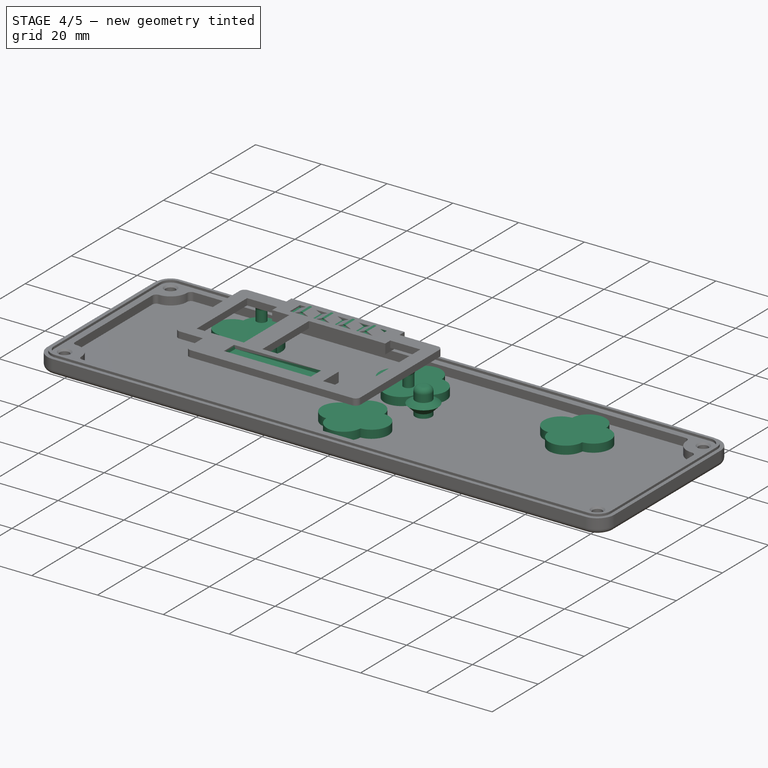
[diagram: stage 4 of 5 — iso view after this stage's code; geometry added in this stage tinted green]
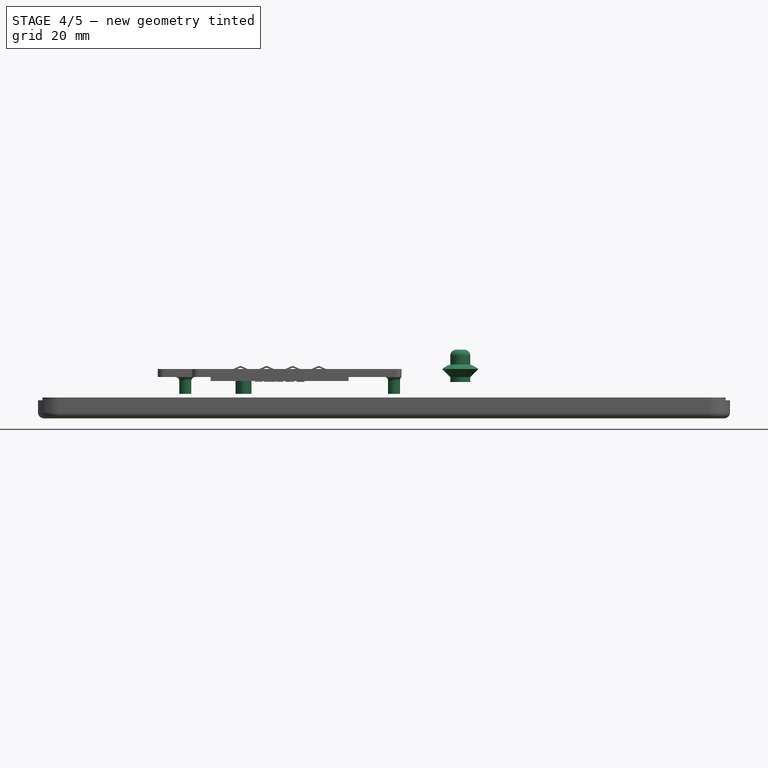
[diagram: stage 4 of 5 — front view after this stage's code; geometry added in this stage tinted green]
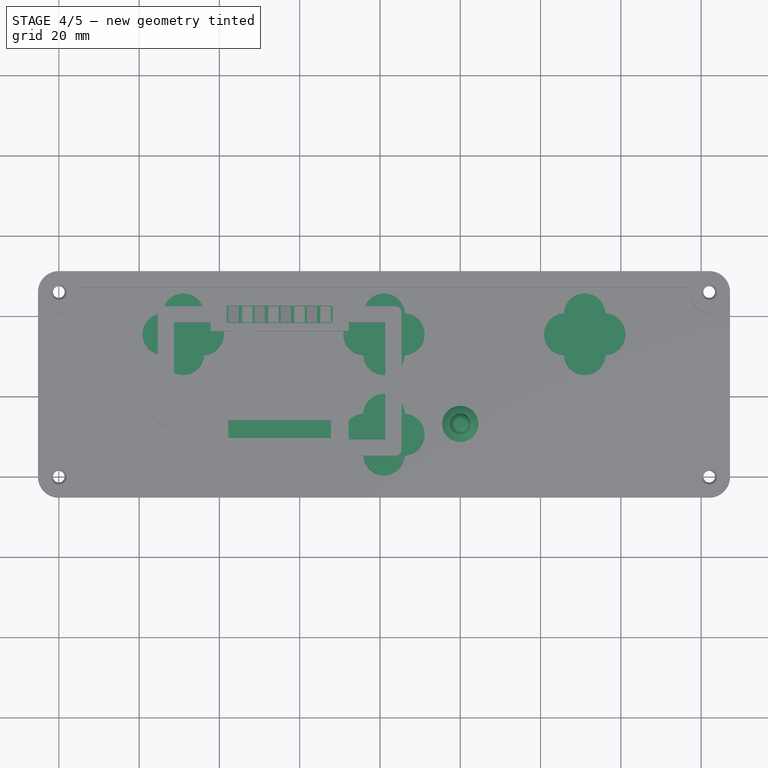
[diagram: stage 4 of 5 — top view after this stage's code; geometry added in this stage tinted green]
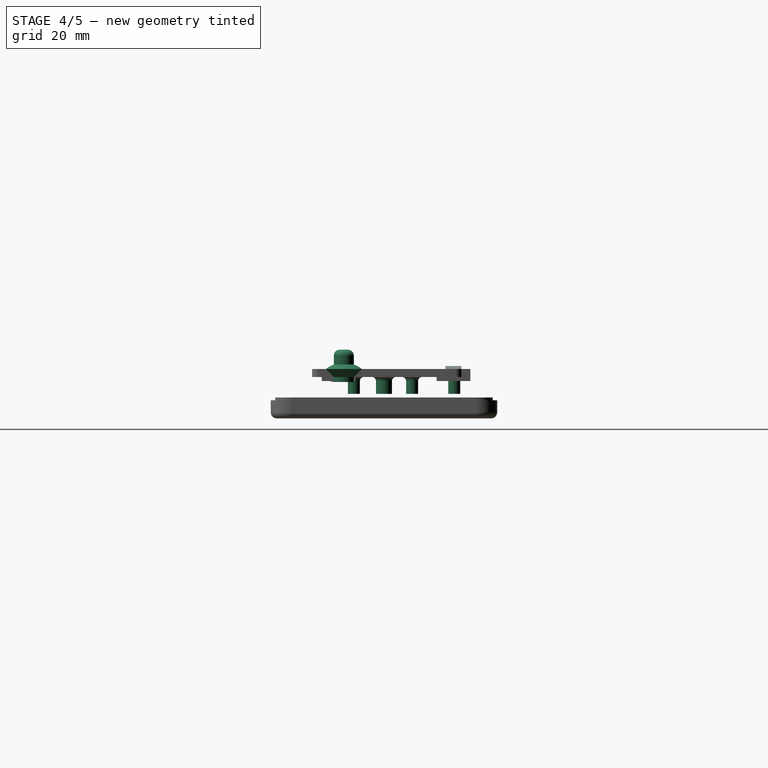
[diagram: stage 4 of 5 — right view after this stage's code; geometry added in this stage tinted green]
FEATURE [PartDesign::Pad] Pad009  label="Legs"
  BaseFeature = -> Pad010
  Direction = (0,0,1)
  Length = 10
  Length2 = 10
  Placement = pos=(0,0,6.2) rot=(0,0,1;0rad)
  Profile = -> Sketch021
  ReferenceAxis = -> Sketch021 [N_Axis]
  Refine = true
  Suppressed = false
  Type = 3
  UpToFace = -> DatumPlane006
FEATURE [PartDesign::Fillet] Fillet002  label="LegsFillet"
  Base = -> Pad009 [Edge27,Edge37,Edge39,Edge38]
  BaseFeature = -> Pad009
  Placement = pos=(0,0,6.2) rot=(0,0,1;0rad)
  Radius = 1
  Refine = true
  SupportTransform = false
  Suppressed = false
  UseAllEdges = false
FEATURE [Sketcher::SketchObject] Sketch023
  ArcFitTolerance = 1e-06
  AttachmentSupport = -> [DatumPlane005]
  ExternalGeometry = -> [Binder]
  FullyConstrained = true
  MakeInternals = false
  MapMode = 5
  Placement = pos=(0,0,6.2) rot=(0,0,1;0rad)
  expr: Constraints[21] = <<UiParams>>.OledWidth
  expr: Constraints[22] = <<BaseParam>>.Tol
  expr: Constraints[23] = <<BaseParam>>.Tol
  expr: Constraints[24] = <<UiParams>>.OledSpringWidth + <<BaseParam>>.Tol
  expr: Constraints[29] = <<UiParams>>.OledHeightTop
  expr: Constraints[4] = <<UiParams>>.OledSpringLength
  sketch-geometry (11):
    g0: LineSegment [constr] StartX=55 StartY=42.304 StartZ=0 EndX=55 EndY=9.696 EndZ=0
    g1: LineSegment [constr] StartX=42 StartY=42.304 StartZ=0 EndX=68 EndY=42.304 EndZ=0
    g2: LineSegment StartX=41.8 StartY=42.504 StartZ=0 EndX=41.8 EndY=38.104 EndZ=0
    g3: LineSegment StartX=41.8 StartY=38.104 StartZ=0 EndX=68.2 EndY=38.104 EndZ=0
    g4: LineSegment StartX=68.2 StartY=38.104 StartZ=0 EndX=68.2 EndY=42.504 EndZ=0
    g5: LineSegment StartX=68.2 StartY=42.504 StartZ=0 EndX=41.8 EndY=42.504 EndZ=0
    g6: LineSegment StartX=41.8 StartY=13.896 StartZ=0 EndX=41.8 EndY=9.496 EndZ=0
    g7: LineSegment StartX=41.8 StartY=9.496 StartZ=0 EndX=68.2 EndY=9.496 EndZ=0
    g8: LineSegment StartX=68.2 StartY=9.496 StartZ=0 EndX=68.2 EndY=13.896 EndZ=0
    g9: LineSegment StartX=68.2 StartY=13.896 StartZ=0 EndX=41.8 EndY=13.896 EndZ=0
    g10: LineSegment [constr] StartX=24.65 StartY=26 StartZ=0 EndX=85.35 EndY=26 EndZ=0
  constraints (30):
    c: Vertical(g0)
    c: Horizontal(g1)
    c: Symmetric(g1,g1,g0)
    c: Symmetric(g0,g0,g-3)
    c: DistanceX(g1,g1) = 26
    c: Coincident(g2,g3)
    c: Coincident(g3,g4)
    c: Coincident(g4,g5)
    c: Coincident(g5,g2)
    c: Vertical(g2)
    c: Vertical(g4)
    c: Horizontal(g3)
    c: Coincident(g6,g7)
    c: Coincident(g7,g8)
    c: Coincident(g8,g9)
    c: Coincident(g9,g6)
    c: Vertical(g6)
    c: Vertical(g8)
    c: Horizontal(g7)
    c: Horizontal(g9)
    c: Symmetric(g10,g10,g-3)
    c: DistanceX(g10,g10) = 60.7
    c: DistanceX(g2,g1) = 0.2
    c: DistanceY(g1,g2) = 0.2
    c: DistanceY(g2,g1) = 4.2
    c: Symmetric(g2,g4,g0)
    c: Symmetric(g6,g2,g10)
    c: Symmetric(g2,g6,g10)
    c: PointOnObject(g3,g8)
    c: DistanceY(g-3,g0) = 16.304
FEATURE [PartDesign::Pocket] Pocket012  label="SpringPocket"
  BaseFeature = -> Fillet002
  Direction = (0,0,-1)
  Length = 1
  Length2 = 5
  Placement = pos=(0,0,6.2) rot=(0,0,1;0rad)
  Profile = -> Sketch023
  ReferenceAxis = -> Sketch023 [N_Axis]
  Refine = true
  Suppressed = false
  Type = 0
  expr: Length = <<UiParams>>.OledSpringDepth
FEATURE [PartDesign::SubShapeBinder] Binder001
  BindCopyOnChange = 0
  BindMode = 0
  ClaimChildren = false
  Context = -> Body003 [Binder001.]
  Fuse = false
  MakeFace = true
  OffsetFill = false
  OffsetIntersection = false
  OffsetJoinType = 0
  OffsetOpenResult = false
  PartialLoad = false
  Refine = true
  Relative = true
  Support = -> [Body001[DatumLine004.]]
  _Version = 2
FEATURE [PartDesign::Point] DatumPoint  label="OledAxisPoint"
  AttacherType = Attacher::AttachEnginePoint
  AttachmentSupport = -> [Binder001]
  MapMode = 37
  Placement = pos=(55,26,0) rot=(0,0,1;0rad)
FEATURE [PartDesign::Plane] DatumPlane007  label="SpringEdgePlane"
  AttachmentOffset = pos=(0,0,-16.304) rot=(0,0,1;0rad)
  AttachmentSupport = -> [DatumPoint]
  Length = 108.784
  MapMode = 3
  Placement = pos=(55,42.304,-3.6e-15) rot=(1,0,0;1.5708rad)
  ResizeMode = 0
  Width = 63.784
  expr: .AttachmentOffset.Base.z = -<<UiParams>>.OledHeightTop
FEATURE [Sketcher::SketchObject] Sketch024
  ArcFitTolerance = 1e-06
  AttachmentSupport = -> [DatumPlane007]
  ExternalGeometry = -> [Binder001]
  FullyConstrained = true
  MakeInternals = false
  MapMode = 5
  Placement = pos=(55,42.304,-3.6e-15) rot=(1,0,0;1.5708rad)
  expr: Constraints[0] = <<UiParams>>.OledSpringLength
  expr: Constraints[14] = <<UiParams>>.OledSpringThickness
  expr: Constraints[38] = <<UiParams>>.OledSpringLength / 4 / 2
  expr: Constraints[3] = <<BaseParam>>.EnclosureTopOffset + <<BaseParam>>.Wall - <<UiParams>>.OledBezelThick - <<UiParams>>.OledThickness - <<BaseParam>>.Tol
  expr: Constraints[5] = <<UiParams>>.OledSpringDepth
  expr: Constraints[6] = <<UiParams>>.OledSpringDepth + <<BaseParam>>.Tol + <<UiParams>>.OledSpringInterference
  sketch-geometry (15):
    g0: LineSegment [constr] StartX=13 StartY=5.2 StartZ=0 EndX=-13 EndY=5.2 EndZ=0
    g1: GeomPoint X=0 Y=0 Z=0
    g2: GeomPoint X=0 Y=6.2 Z=0
    g3: LineSegment [constr] StartX=-13 StartY=6.9 StartZ=0 EndX=13 EndY=6.9 EndZ=0
    g4: LineSegment [constr] StartX=13 StartY=6.9 StartZ=0 EndX=13 EndY=5.2 EndZ=0
    g5: LineSegment StartX=-2e-16 StartY=5.2 StartZ=0 EndX=-2e-16 EndY=5.6 EndZ=0
    g6: ArcOfCircle CenterX=0 CenterY=6.2 CenterZ=0 NormalX=0 NormalY=0 NormalZ=1 AngleXU=0 Radius=1 StartAngle=4.71239 EndAngle=5.13269
    g7: ArcOfCircle CenterX=0 CenterY=6.2 CenterZ=0 NormalX=0 NormalY=0 NormalZ=1 AngleXU=0 Radius=0.6 StartAngle=4.71239 EndAngle=5.13269
    g8: LineSegment StartX=0.24482 StartY=5.65222 StartZ=0 EndX=2.84197 EndY=6.81297 EndZ=0
    g9: LineSegment StartX=0.408034 StartY=5.28703 StartZ=0 EndX=3.00519 EndY=6.44778 EndZ=0
    g10: LineSegment [constr] StartX=0 StartY=6.2 StartZ=0 EndX=0.408034 EndY=5.28703 EndZ=0
    g11: ArcOfCircle CenterX=3.25 CenterY=5.9 CenterZ=0 NormalX=0 NormalY=0 NormalZ=1 AngleXU=0 Radius=0.6 StartAngle=1.5708 EndAngle=1.99108
    g12: ArcOfCircle CenterX=3.25 CenterY=5.9 CenterZ=0 NormalX=0 NormalY=0 NormalZ=1 AngleXU=0 Radius=1 StartAngle=1.5708 EndAngle=1.9911
    g13: LineSegment [constr] StartX=3.25 StartY=5.9 StartZ=0 EndX=2.84197 EndY=6.81297 EndZ=0
    g14: LineSegment StartX=3.25 StartY=6.5 StartZ=0 EndX=3.25 EndY=6.9 EndZ=0
  constraints (39):
    c: DistanceX(g0,g0) = 26
    c: Symmetric(g0,g0,g-3)
    c: PointOnObject(g2,g-3)
    c: DistanceY(g1,g2) = 6.2
    c: Coincident(g1,g-1)
    c: DistanceY(g0,g2) = 1
    c: DistanceY(g0,g3) = 1.7
    c: Symmetric(g3,g3,g-3)
    c: Coincident(g4,g3)
    c: Coincident(g4,g0)
    c: Vertical(g4)
    c: Vertical(g5)
    c: PointOnObject(g5,g0)
    c: PointOnObject(g5,g-3)
    c: DistanceY(g5,g5) = 0.4
    c: Coincident(g6,g5)
    c: Coincident(g7,g6)
    c: Coincident(g7,g5)
    c: PointOnObject(g6,g-3)
    c: Coincident(g8,g7)
    c: Coincident(g10,g6)
    c: Coincident(g10,g6)
    c: PointOnObject(g7,g10)
    c: Parallel(g9,g8)
    c: Tangent(g9,g6) = -1.5708
    c: Coincident(g11,g9)
    c: Coincident(g12,g11)
    c: Coincident(g13,g11)
    c: Coincident(g13,g8)
    c: Equal(g12,g6)
    c: Equal(g7,g11)
    c: Radius(g6) = 1
    c: Tangent(g12,g8) = 1.5708
    c: Coincident(g14,g11)
    c: Coincident(g14,g12)
    c: PointOnObject(g11,g14)
    c: Vertical(g14)
    c: PointOnObject(g12,g3)
    c: DistanceX(g5,g11) = 3.25
FEATURE [PartDesign::Pad] Pad011  label="Spring"
  Direction = (0,-1,2e-16)
  Length = 4
  Length2 = 10
  Placement = pos=(55,42.304,-3.6e-15) rot=(1,0,0;1.5708rad)
  Profile = -> Sketch024
  ReferenceAxis = -> Sketch024 [N_Axis]
  Refine = true
  Suppressed = false
  Type = 0
  expr: Length = <<UiParams>>.OledSpringWidth
FEATURE [PartDesign::Body] Body005  label="CurvedLightPipe"
  AllowCompound = false
  Group = -> [Binder003,Binder004,DatumPlane010,Sketch031,Pad016,Sketch032,AdditiveLoft001,Sketch033,Pad017,Chamfer004,Sketch034,Pad018,Mirrored005,Fillet004]
  Origin = -> Origin005
  Tip = -> Fillet004
FEATURE [PartDesign::SubShapeBinder] Binder005  label="DSwitchAxis001"
  BindCopyOnChange = 0
  BindMode = 0
  ClaimChildren = false
  Context = -> Body006 [Binder005.]
  Fuse = false
  MakeFace = true
  OffsetFill = false
  OffsetIntersection = false
  OffsetJoinType = 0
  OffsetOpenResult = false
  PartialLoad = false
  Refine = true
  Relative = true
  Support = -> [Body001[DatumLine005.]]
  _Version = 2
FEATURE [PartDesign::Point] DatumPoint001  label="DSwitchPoint"
  AttacherType = Attacher::AttachEnginePoint
  AttachmentSupport = -> [Binder005]
  MapMode = 37
  Placement = pos=(100,13,0) rot=(0,0,1;0rad)
FEATURE [PartDesign::Plane] DatumPlane011  label="DSwitchPlane"
  AttachmentSupport = -> [DatumPoint001]
  Length = 145.592
  MapMode = 1
  Placement = pos=(100,13,0) rot=(1,0,0;1.5708rad)
  ResizeMode = 0
  Width = 66.0934
FEATURE [Sketcher::SketchObject] Sketch035
  ArcFitTolerance = 1e-06
  AttachmentSupport = -> [DatumPlane011]
  FullyConstrained = true
  MakeInternals = false
  MapMode = 5
  Placement = pos=(100,13,0) rot=(1,0,0;1.5708rad)
  expr: Constraints[12] = 3 mm - 0.25 mm + <<BaseParam>>.Tol
  expr: Constraints[21] = <<UiParams>>.DSwitchDia / 2
  expr: Constraints[22] = <<BaseParam>>.Fillet
  expr: Constraints[23] = <<BaseParam>>.EnclosureTopOffset + <<BaseParam>>.Wall
  expr: Constraints[3] = <<BaseParam>>.EnclosureTopOffset - <<BaseParam>>.Tol
  expr: Constraints[4] = <<UiParams>>.DSwitchTravel + <<UiParams>>.DSwitchDia / 2
  sketch-geometry (8):
    g0: ArcOfCircle CenterX=0 CenterY=0.49 CenterZ=0 NormalX=0 NormalY=0 NormalZ=1 AngleXU=0 Radius=7.25438 StartAngle=1.92263 EndAngle=2.23994
    g1: LineSegment StartX=-4.5 StartY=6.18 StartZ=0 EndX=-2.5 EndY=4.18 EndZ=0
    g2: LineSegment StartX=-2.5 StartY=4.18 StartZ=0 EndX=-2.5 EndY=2.95 EndZ=0
    g3: LineSegment StartX=-2.5 StartY=2.95 StartZ=0 EndX=0 EndY=2.95 EndZ=0
    g4: LineSegment StartX=-2.5 StartY=7.3 StartZ=0 EndX=-2.5 EndY=9.5 EndZ=0
    g5: LineSegment StartX=-1 StartY=11 StartZ=0 EndX=0 EndY=11 EndZ=0
    g6: LineSegment StartX=0 StartY=11 StartZ=0 EndX=0 EndY=2.95 EndZ=0
    g7: ArcOfCircle CenterX=-1 CenterY=9.5 CenterZ=0 NormalX=0 NormalY=0 NormalZ=1 AngleXU=0 Radius=1.5 StartAngle=1.5708 EndAngle=3.14159
  constraints (24):
    c: PointOnObject(g0,g-2)
    c: Coincident(g1,g0)
    c: DistanceY(g-1,g0) = 0.49
    c: DistanceY(g-1,g0) = 7.3
    c: DistanceX(g0,g-1) = 4.5
    c: Coincident(g2,g1)
    c: Vertical(g2)
    c: Coincident(g3,g2)
    c: PointOnObject(g3,g-2)
    c: Horizontal(g3)
    c: Angle(g-2,g1) = 0.785398
    c: DistanceX(g3,g3) = 2.5
    c: DistanceY(g-1,g3) = 2.95
    c: Coincident(g4,g0)
    c: Horizontal(g5)
    c: Coincident(g6,g5)
    c: Coincident(g6,g3)
    c: Vertical(g6)
    c: Vertical(g4)
    c: Tangent(g7,g4) = 1.5708
    c: Tangent(g7,g5) = 1.5708
    c: DistanceX(g4,g5) = 2.5
    c: Radius(g7) = 1.5
    c: DistanceY(g-1,g4) = 9.5
FEATURE [PartDesign::Revolution] Revolution
  Angle = 360
  Angle2 = 60
  Axis = (0,2e-16,1)
  Base = (100,13,0)
  Placement = pos=(100,13,0) rot=(1,0,0;1.5708rad)
  Profile = -> Sketch035
  ReferenceAxis = -> Sketch035 [V_Axis]
  Refine = true
  Suppressed = false
  Type = 0
FEATURE [Sketcher::SketchObject] Sketch036
  ArcFitTolerance = 1e-06
  AttachmentSupport = -> [XY_Plane006]
  ExternalGeometry = -> [Binder005]
  FullyConstrained = true
  MakeInternals = false
  MapMode = 5
  sketch-geometry (4):
    g0: LineSegment StartX=98.975 StartY=14.025 StartZ=0 EndX=98.975 EndY=11.975 EndZ=0
    g1: LineSegment StartX=98.975 StartY=11.975 StartZ=0 EndX=101.025 EndY=11.975 EndZ=0
    g2: LineSegment StartX=101.025 StartY=11.975 StartZ=0 EndX=101.025 EndY=14.025 EndZ=0
    g3: LineSegment StartX=101.025 StartY=14.025 StartZ=0 EndX=98.975 EndY=14.025 EndZ=0
  constraints (11):
    c: Coincident(g0,g1)
    c: Coincident(g1,g2)
    c: Coincident(g2,g3)
    c: Coincident(g3,g0)
    c: Vertical(g0)
    c: Vertical(g2)
    c: Horizontal(g1)
    c: Horizontal(g3)
    c: Symmetric(g1,g0,g-3)
    c: Equal(g3,g2)
    c: DistanceX(g3,g3) = 2.05
FEATURE [PartDesign::Pocket] Pocket015
  BaseFeature = -> Revolution
  Direction = (0,0,-1)
  Length = 5
  Length2 = 5
  Placement = pos=(100,13,0) rot=(1,0,0;1.5708rad)
  Profile = -> Sketch036
  ReferenceAxis = -> Sketch036 [N_Axis]
  Refine = true
  Reversed = true
  Suppressed = false
  Type = 0
  expr: Length = 5 mm
FEATURE [PartDesign::Body] Body006  label="DSwitchCap"
  AllowCompound = false
  Group = -> [Binder005,DatumPoint001,DatumPlane011,Sketch035,Revolution,Sketch036,Pocket015,Chamfer006]
  Origin = -> Origin006
  Tip = -> Chamfer006
FEATURE [Part::Part2DObjectPython] ShapeString001  # Draft 2D object (typed FeaturePython)
  AttachmentOffset = pos=(-7,-2.5,-7.5) rot=(0,0,1;0rad)
  AttachmentSupport = -> [XY_Plane]
  FontFile = <path>
  Fuse = false
  Justification = 8
  JustificationReference = 0
  KeepLeftMargin = false
  MakeFace = true
  MapMode = 5
  ObliqueAngle = 0
  Placement = pos=(7,-2.5,7.5) rot=(0,1,0;3.14159rad)
  ScaleToSize = true
  Size = 4
  String = SMU3.1 top v0b8  >PLA<
  Tracking = 0
  expr: .AttachmentOffset.Base.x = -<<BaseParam>>.MountingHoleInset - <<BaseParam>>.TextHeight
  expr: .AttachmentOffset.Base.y = -<<BaseParam>>.MountingHoleInset + 0.5 mm
  expr: .AttachmentOffset.Base.z = -<<BaseParam>>.EnclosureTopOffset
  expr: Size = <<BaseParam>>.TextHeight
FEATURE [Spreadsheet::Sheet] Spreadsheet002  label="MountingParams"
  cells = A1='HeadDia; B1(HeadDia)==6 mm; C1='M3 head max; A2='StemDia; B2(StemDia)==3.45 mm; C2='M3 clearance; A3='HeadThick; B3(HeadThick)==2.1 mm
FEATURE [Sketcher::SketchObject] Sketch040
  ArcFitTolerance = 1e-06
  AttachmentOffset = pos=(0,0,7.5) rot=(0,0,1;0rad)
  AttachmentSupport = -> [XY_Plane001]
  ExternalGeometry = -> [DatumLine001,DatumLine002]
  FullyConstrained = true
  MakeInternals = false
  MapMode = 5
  Placement = pos=(0,0,7.5) rot=(0,0,1;0rad)
  expr: .AttachmentOffset.Base.z = <<BaseParam>>.EnclosureTopOffset
  expr: Constraints[10] = 14.2 mm + <<BaseParam>>.Tol * 2
  expr: Constraints[26] = <<BaseParam>>.LightPipeWidth / 2 + <<BaseParam>>.Tol + <<BaseParam>>.Wall
  expr: Constraints[44] = <<BaseParam>>.LightPipeWidth + <<BaseParam>>.Tol * 2
  expr: Constraints[89] = <<BaseParam>>.LightPipeHeight - <<BaseParam>>.LightPipeWidth + 2 mm
  expr: Constraints[9] = 11.7 mm + <<BaseParam>>.Tol * 2
  sketch-geometry (38):
    g0: LineSegment StartX=92.7 StartY=42.05 StartZ=0 EndX=92.7 EndY=29.95 EndZ=0
    g1: LineSegment StartX=92.7 StartY=29.95 StartZ=0 EndX=107.3 EndY=29.95 EndZ=0
    g2: LineSegment StartX=107.3 StartY=29.95 StartZ=0 EndX=107.3 EndY=42.05 EndZ=0
    g3: LineSegment StartX=107.3 StartY=42.05 StartZ=0 EndX=92.7 EndY=42.05 EndZ=0
    g4: LineSegment [constr] StartX=90 StartY=36 StartZ=0 EndX=100 EndY=36 EndZ=0
    g5: LineSegment [constr] StartX=100 StartY=36 StartZ=0 EndX=100 EndY=46 EndZ=0
    g6: LineSegment [constr] StartX=100 StartY=36 StartZ=0 EndX=100 EndY=26 EndZ=0
    g7: LineSegment [constr] StartX=100 StartY=36 StartZ=0 EndX=110 EndY=36 EndZ=0
    g8: Circle CenterX=100 CenterY=36 CenterZ=0 NormalX=0 NormalY=0 NormalZ=1 AngleXU=0 Radius=13.2
    g9: LineSegment [constr] StartX=90 StartY=36 StartZ=0 EndX=86.8 EndY=36 EndZ=0
    g10: ArcOfCircle CenterX=100 CenterY=36 CenterZ=0 NormalX=0 NormalY=0 NormalZ=1 AngleXU=0 Radius=8.8 StartAngle=2.73008 EndAngle=3.55311
    g11: ArcOfCircle CenterX=100 CenterY=36 CenterZ=0 NormalX=0 NormalY=0 NormalZ=1 AngleXU=0 Radius=11.2 StartAngle=2.73008 EndAngle=3.55311
    g12: ArcOfCircle CenterX=100 CenterY=36 CenterZ=0 NormalX=0 NormalY=0 NormalZ=1 AngleXU=0 Radius=8.8 StartAngle=1.15928 EndAngle=1.98231
    g13: ArcOfCircle CenterX=100 CenterY=36 CenterZ=0 NormalX=0 NormalY=0 NormalZ=1 AngleXU=0 Radius=11.2 StartAngle=1.15928 EndAngle=1.98231
    g14: ArcOfCircle CenterX=100 CenterY=36 CenterZ=0 NormalX=0 NormalY=0 NormalZ=1 AngleXU=0 Radius=8.8 StartAngle=5.87167 EndAngle=6.6947
    g15: ArcOfCircle CenterX=100 CenterY=36 CenterZ=0 NormalX=0 NormalY=0 NormalZ=1 AngleXU=0 Radius=11.2 StartAngle=5.87167 EndAngle=6.6947
    g16: ArcOfCircle CenterX=100 CenterY=36 CenterZ=0 NormalX=0 NormalY=0 NormalZ=1 AngleXU=0 Radius=8.8 StartAngle=4.30087 EndAngle=5.12391
    g17: ArcOfCircle CenterX=100 CenterY=36 CenterZ=0 NormalX=0 NormalY=0 NormalZ=1 AngleXU=0 Radius=11.2 StartAngle=4.30087 EndAngle=5.12391
    g18: GeomPoint X=88.8 Y=36 Z=0
    g19: GeomPoint X=91.2 Y=36 Z=0
    g20: ArcOfCircle CenterX=90.8348 CenterY=40 CenterZ=0 NormalX=0 NormalY=0 NormalZ=1 AngleXU=0 Radius=1.2 StartAngle=5.87167 EndAngle=9.01326
    g21: ArcOfCircle CenterX=96 CenterY=45.1652 CenterZ=0 NormalX=0 NormalY=0 NormalZ=1 AngleXU=0 Radius=1.2 StartAngle=1.98231 EndAngle=5.12391
    g22: ArcOfCircle CenterX=104 CenterY=45.1652 CenterZ=0 NormalX=0 NormalY=0 NormalZ=1 AngleXU=0 Radius=1.2 StartAngle=4.30087 EndAngle=7.44246
    g23: ArcOfCircle CenterX=109.165 CenterY=40 CenterZ=0 NormalX=0 NormalY=0 NormalZ=1 AngleXU=0 Radius=1.2 StartAngle=0.411517 EndAngle=3.55311
    g24: ArcOfCircle CenterX=109.165 CenterY=32 CenterZ=0 NormalX=0 NormalY=0 NormalZ=1 AngleXU=0 Radius=1.2 StartAngle=2.73008 EndAngle=5.87167
    g25: ArcOfCircle CenterX=104 CenterY=26.8348 CenterZ=0 NormalX=0 NormalY=0 NormalZ=1 AngleXU=0 Radius=1.2 StartAngle=5.12391 EndAngle=8.2655
    g26: ArcOfCircle CenterX=96 CenterY=26.8348 CenterZ=0 NormalX=0 NormalY=0 NormalZ=1 AngleXU=0 Radius=1.2 StartAngle=1.15928 EndAngle=4.30087
    g27: ArcOfCircle CenterX=90.8348 CenterY=32 CenterZ=0 NormalX=0 NormalY=0 NormalZ=1 AngleXU=0 Radius=1.2 StartAngle=3.55311 EndAngle=6.6947
    g28: Circle [constr] CenterX=100 CenterY=36 CenterZ=0 NormalX=0 NormalY=0 NormalZ=1 AngleXU=0 Radius=10
    g29: GeomPoint X=94.931 Y=44.62 Z=0
    g30: GeomPoint X=91.38 Y=41.069 Z=0
    g31: LineSegment [constr] StartX=100 StartY=36 StartZ=0 EndX=92.9289 EndY=43.0711 EndZ=0
    g32: LineSegment [constr] StartX=90.8348 StartY=40 StartZ=0 EndX=90.8348 EndY=32 EndZ=0
    g33: LineSegment [constr] StartX=90.8348 StartY=32 StartZ=0 EndX=109.165 EndY=32 EndZ=0
    g34: LineSegment [constr] StartX=109.165 StartY=32 StartZ=0 EndX=109.165 EndY=40 EndZ=0
    g35: LineSegment [constr] StartX=96 StartY=45.1652 StartZ=0 EndX=96 EndY=26.8348 EndZ=0
    g36: LineSegment [constr] StartX=96 StartY=26.8348 StartZ=0 EndX=104 EndY=26.8348 EndZ=0
    g37: LineSegment [constr] StartX=96 StartY=45.1652 StartZ=0 EndX=104 EndY=45.1652 EndZ=0
  constraints (90):
    c: Coincident(g0,g1)
    c: Coincident(g1,g2)
    c: Coincident(g2,g3)
    c: Coincident(g3,g0)
    c: Vertical(g0)
    c: Vertical(g2)
    c: Horizontal(g1)
    c: Horizontal(g3)
    c: Symmetric(g0,g1,g-3)
    c: DistanceY(g0,g0) = 12.1
    c: DistanceX(g3,g3) = 14.6
    c: Coincident(g4,g-4)
    c: Coincident(g4,g-3)
    c: Coincident(g5,g4)
    c: Vertical(g5)
    c: Coincident(g6,g4)
    c: Vertical(g6)
    c: Coincident(g7,g4)
    c: Horizontal(g7)
    c: Equal(g5,g7)
    c: Equal(g7,g6)
    c: Equal(g6,g4)
    c: Coincident(g8,g4)
    c: Coincident(g9,g4)
    c: PointOnObject(g9,g8)
    c: Horizontal(g9)
    c: DistanceX(g9,g9) = 3.2
    c: Coincident(g10,g4)
    c: Coincident(g11,g4)
    c: Coincident(g12,g4)
    c: Coincident(g13,g4)
    c: Coincident(g14,g4)
    c: Coincident(g15,g4)
    c: Coincident(g16,g4)
    c: Coincident(g17,g4)
    c: Equal(g17,g11)
    c: Equal(g11,g15)
    c: Equal(g16,g10)
    c: Equal(g10,g12)
    c: Equal(g12,g14)
    c: PointOnObject(g18,g11)
    c: PointOnObject(g19,g10)
    c: PointOnObject(g19,g4)
    c: Symmetric(g18,g19,g4)
    c: DistanceX(g18,g19) = 2.4
    c: Tangent(g27,g11) = -1.5708
    c: Tangent(g27,g10) = 1.5708
    c: Tangent(g20,g11) = -1.5708
    c: Tangent(g20,g10) = 1.5708
    c: Tangent(g26,g16) = 1.5708
    c: Tangent(g26,g17) = -1.5708
    c: Tangent(g25,g16) = 1.5708
    c: Tangent(g25,g17) = -1.5708
    c: Tangent(g24,g14) = 1.5708
    c: Tangent(g24,g15) = -1.5708
    c: Tangent(g23,g14) = 1.5708
    c: Tangent(g23,g15) = -1.5708
    c: Tangent(g22,g13) = -1.5708
    c: Tangent(g22,g12) = 1.5708
    c: Tangent(g21,g12) = 1.5708
    c: Tangent(g21,g13) = -1.5708
    c: Coincident(g28,g4)
    c: PointOnObject(g4,g28)
    c: Equal(g13,g11)
    c: PointOnObject(g29,g28)
    c: PointOnObject(g30,g20)
    c: PointOnObject(g29,g21)
    c: Coincident(g31,g4)
    c: Angle(g31,g4) = 0.785398
    c: Symmetric(g29,g30,g31)
    c: Coincident(g32,g20)
    c: Coincident(g32,g27)
    c: Vertical(g32)
    c: Coincident(g33,g27)
    c: Coincident(g33,g24)
    c: Horizontal(g33)
    c: Coincident(g34,g24)
    c: Coincident(g34,g23)
    c: Vertical(g34)
    c: Coincident(g35,g21)
    c: Coincident(g35,g26)
    c: Vertical(g35)
    c: Coincident(g36,g26)
    c: Coincident(g36,g25)
    c: Horizontal(g36)
    c: Coincident(g37,g21)
    c: Coincident(g37,g22)
    c: Horizontal(g37)
    c: PointOnObject(g31,g28)
    c: DistanceY(g32,g32) = 8
FEATURE [PartDesign::Line] DatumLine007  label="FetAxis"
  AttacherType = Attacher::AttachEngineLine
  AttachmentOffset = pos=(125,19,0) rot=(0,0,1;0rad)
  AttachmentSupport = -> [Z_Axis]
  Length = 20
  MapMode = 29
  Placement = pos=(125,19,0) rot=(0,0,1;0rad)
  ResizeMode = 0
FEATURE [PartDesign::Line] DatumLine008  label="KeyholeAxis"
  AttacherType = Attacher::AttachEngineLine
  AttachmentOffset = pos=(81,35.5,0) rot=(0,0,1;0rad)
  AttachmentSupport = -> [Z_Axis]
  Length = 20
  MapMode = 29
  Placement = pos=(81,35.5,0) rot=(0,0,1;0rad)
  ResizeMode = 0
  expr: .AttachmentOffset.Base.x = <<BaseParam>>.BoardW / 2 - <<BaseParam>>.MountingHoleInset
  expr: .AttachmentOffset.Base.y = <<BaseParam>>.BoardH / 2 - <<BaseParam>>.MountingHoleInset + 12.5 mm
FEATURE [Sketcher::SketchObject] Sketch037
  ArcFitTolerance = 1e-06
  AttachmentSupport = -> [DatumPlane009]
  ExternalGeometry = -> [DatumLine008]
  FullyConstrained = true
  MakeInternals = false
  MapMode = 5
  Placement = pos=(0,0,-4.1) rot=(0,0,1;0rad)
  expr: Constraints[28] = <<MountingParams>>.StemDia / 2
  expr: Constraints[4] = <<MountingParams>>.HeadDia + <<BaseParam>>.Tol * 2 + <<MountingParams>>.StemDia
  expr: Constraints[53] = <<MountingParams>>.StemDia / 2
  expr: Constraints[61] = <<MountingParams>>.HeadDia / 2 + <<BaseParam>>.Tol
  sketch-geometry (34):
    g0: GeomPoint X=76.075 Y=35.5 Z=0
    g1: GeomPoint X=85.925 Y=35.5 Z=0
    g2: GeomPoint X=81 Y=40.425 Z=0
    g3: GeomPoint X=81 Y=30.575 Z=0
    g4: LineSegment [constr] StartX=81 StartY=40.425 StartZ=0 EndX=81 EndY=30.575 EndZ=0
    g5: LineSegment [constr] StartX=85.925 StartY=35.5 StartZ=0 EndX=76.075 EndY=35.5 EndZ=0
    g6: ArcOfCircle CenterX=81 CenterY=40.425 CenterZ=0 NormalX=0 NormalY=0 NormalZ=1 AngleXU=0 Radius=1.725 StartAngle=2.02e-14 EndAngle=3.14159
    g7: ArcOfCircle CenterX=76.075 CenterY=35.5 CenterZ=0 NormalX=0 NormalY=0 NormalZ=1 AngleXU=0 Radius=1.725 StartAngle=1.5708 EndAngle=4.71239
    g8: ArcOfCircle CenterX=81 CenterY=30.575 CenterZ=0 NormalX=0 NormalY=0 NormalZ=1 AngleXU=0 Radius=1.725 StartAngle=3.14159 EndAngle=6.28319
    g9: ArcOfCircle CenterX=85.925 CenterY=35.5 CenterZ=0 NormalX=0 NormalY=0 NormalZ=1 AngleXU=0 Radius=1.725 StartAngle=4.71239 EndAngle=7.85398
    g10: LineSegment [constr] StartX=76.075 StartY=37.225 StartZ=0 EndX=76.075 EndY=33.775 EndZ=0
    g11: LineSegment [constr] StartX=79.275 StartY=40.425 StartZ=0 EndX=82.725 EndY=40.425 EndZ=0
    g12: LineSegment [constr] StartX=85.925 StartY=37.225 StartZ=0 EndX=85.925 EndY=33.775 EndZ=0
    g13: LineSegment [constr] StartX=82.725 StartY=30.575 StartZ=0 EndX=79.275 EndY=30.575 EndZ=0
    g14: LineSegment StartX=76.075 StartY=37.225 StartZ=0 EndX=77.8 EndY=37.225 EndZ=0
    g15: LineSegment StartX=79.275 StartY=40.425 StartZ=0 EndX=79.275 EndY=38.7 EndZ=0
    g16: LineSegment StartX=82.725 StartY=40.425 StartZ=0 EndX=82.725 EndY=38.7 EndZ=0
    g17: LineSegment StartX=85.925 StartY=37.225 StartZ=0 EndX=84.2 EndY=37.225 EndZ=0
    g18: LineSegment StartX=85.925 StartY=33.775 StartZ=0 EndX=84.2 EndY=33.775 EndZ=0
    g19: LineSegment StartX=82.725 StartY=30.575 StartZ=0 EndX=82.725 EndY=32.3 EndZ=0
    g20: LineSegment StartX=79.275 StartY=30.575 StartZ=0 EndX=79.275 EndY=32.3 EndZ=0
    g21: LineSegment StartX=76.075 StartY=33.775 StartZ=0 EndX=77.8 EndY=33.775 EndZ=0
    g22: ArcOfCircle CenterX=81 CenterY=35.5 CenterZ=0 NormalX=0 NormalY=0 NormalZ=1 AngleXU=0 Radius=3.2 StartAngle=2.27777 EndAngle=2.43462
    g23: ArcOfCircle CenterX=81 CenterY=35.5 CenterZ=0 NormalX=0 NormalY=0 NormalZ=1 AngleXU=0 Radius=3.2 StartAngle=0.706972 EndAngle=0.863824
    g24: ArcOfCircle CenterX=81 CenterY=35.5 CenterZ=0 NormalX=0 NormalY=0 NormalZ=1 AngleXU=0 Radius=3.2 StartAngle=5.41936 EndAngle=5.57621
    g25: ArcOfCircle CenterX=81 CenterY=35.5 CenterZ=0 NormalX=0 NormalY=0 NormalZ=1 AngleXU=0 Radius=3.2 StartAngle=3.84856 EndAngle=4.00542
    g26: ArcOfCircle CenterX=77.8 CenterY=38.2337 CenterZ=0 NormalX=0 NormalY=0 NormalZ=1 AngleXU=0 Radius=1.00869 StartAngle=4.71239 EndAngle=5.57621
    g27: ArcOfCircle CenterX=78.2663 CenterY=38.7 CenterZ=0 NormalX=0 NormalY=0 NormalZ=1 AngleXU=0 Radius=1.00869 StartAngle=5.41936 EndAngle=6.28319
    g28: ArcOfCircle CenterX=83.7337 CenterY=38.7 CenterZ=0 NormalX=0 NormalY=0 NormalZ=1 AngleXU=0 Radius=1.00869 StartAngle=3.14159 EndAngle=4.00542
    g29: ArcOfCircle CenterX=84.2 CenterY=38.2337 CenterZ=0 NormalX=0 NormalY=0 NormalZ=1 AngleXU=0 Radius=1.00869 StartAngle=3.84856 EndAngle=4.71239
    g30: ArcOfCircle CenterX=84.2 CenterY=32.7663 CenterZ=0 NormalX=0 NormalY=0 NormalZ=1 AngleXU=0 Radius=1.00869 StartAngle=1.5708 EndAngle=2.43462
    g31: ArcOfCircle CenterX=83.7337 CenterY=32.3 CenterZ=0 NormalX=0 NormalY=0 NormalZ=1 AngleXU=0 Radius=1.00869 StartAngle=2.27777 EndAngle=3.14159
    g32: ArcOfCircle CenterX=78.2663 CenterY=32.3 CenterZ=0 NormalX=0 NormalY=0 NormalZ=1 AngleXU=0 Radius=1.00869 StartAngle=8e-16 EndAngle=0.863824
    g33: ArcOfCircle CenterX=77.8 CenterY=32.7663 CenterZ=0 NormalX=0 NormalY=0 NormalZ=1 AngleXU=0 Radius=1.00869 StartAngle=0.706972 EndAngle=1.5708
  constraints (83):
    c: Coincident(g4,g2)
    c: Coincident(g4,g3)
    c: Coincident(g5,g1)
    c: Coincident(g5,g0)
    c: DistanceY(g4,g4) = 9.85
    c: Equal(g5,g4)
    c: Coincident(g6,g2)
    c: Coincident(g7,g0)
    c: Coincident(g8,g3)
    c: Coincident(g9,g1)
    c: Equal(g9,g6)
    c: Equal(g6,g7)
    c: Equal(g7,g8)
    c: Coincident(g10,g7)
    c: Coincident(g10,g7)
    c: Vertical(g10)
    c: Coincident(g11,g6)
    c: Coincident(g11,g6)
    c: Horizontal(g11)
    c: Coincident(g12,g9)
    c: Coincident(g12,g9)
    c: Coincident(g13,g8)
    c: Coincident(g13,g8)
    c: PointOnObject(g3,g13)
    c: PointOnObject(g1,g12)
    c: PointOnObject(g2,g11)
    c: Vertical(g12)
    c: Horizontal(g13)
    c: Radius(g6) = 1.725
    c: PointOnObject(g0,g10)
    c: Coincident(g14,g7)
    c: Coincident(g15,g6)
    c: Vertical(g15)
    c: Coincident(g16,g6)
    c: Coincident(g17,g9)
    c: Coincident(g18,g9)
    c: Coincident(g19,g8)
    c: Coincident(g20,g8)
    c: Vertical(g20)
    c: Coincident(g21,g7)
    c: Horizontal(g21)
    c: Horizontal(g18)
    c: Horizontal(g17)
    c: Horizontal(g14)
    c: Vertical(g16)
    c: Vertical(g19)
    c: Equal(g16,g15)
    c: Equal(g15,g14)
    c: Equal(g14,g21)
    c: Equal(g21,g20)
    c: Equal(g20,g19)
    c: Equal(g19,g18)
    c: Equal(g18,g17)
    c: DistanceY(g16,g16) = 1.725
    c: Symmetric(g5,g5,g22)
    c: Coincident(g23,g22)
    c: Coincident(g24,g22)
    c: Coincident(g25,g22)
    c: Equal(g25,g22)
    c: Equal(g22,g23)
    c: Equal(g23,g24)
    c: Radius(g23) = 3.2
    c: Tangent(g28,g16) = -1.5708
    c: Tangent(g29,g17) = 1.5708
    c: Tangent(g29,g23) = 1.5708
    c: Tangent(g28,g23) = 1.5708
    c: Tangent(g30,g18) = -1.5708
    c: Tangent(g31,g19) = 1.5708
    c: Tangent(g30,g24) = 1.5708
    c: Tangent(g31,g24) = 1.5708
    c: Tangent(g32,g20) = -1.5708
    c: Tangent(g32,g25) = 1.5708
    c: Tangent(g33,g25) = 1.5708
    c: Tangent(g33,g21) = 1.5708
    c: Tangent(g26,g14) = -1.5708
    c: Tangent(g26,g22) = 1.5708
    c: Tangent(g27,g22) = 1.5708
    c: Tangent(g27,g15) = 1.5708
    c: Coincident(g22,g-3)
    c: Horizontal(g5)
    c: PointOnObject(g22,g4)
    c: Equal(g33,g32)
    c: Equal(g31,g30)
FEATURE [Sketcher::SketchObject] Sketch038
  ArcFitTolerance = 1e-06
  AttachmentSupport = -> [DatumPlane009]
  ExternalGeometry = -> [DatumLine008]
  FullyConstrained = true
  MakeInternals = false
  MapMode = 5
  Placement = pos=(0,0,-4.1) rot=(0,0,1;0rad)
  expr: Constraints[0] = <<MountingParams>>.HeadDia / 2 + <<BaseParam>>.Tol + <<BaseParam>>.Wall
  expr: Constraints[26] = <<MountingParams>>.HeadDia + <<BaseParam>>.Tol * 2 + <<MountingParams>>.StemDia
  sketch-geometry (12):
    g0: ArcOfCircle CenterX=81 CenterY=40.425 CenterZ=0 NormalX=0 NormalY=0 NormalZ=1 AngleXU=0 Radius=5.2 StartAngle=0.0515776 EndAngle=3.09002
    g1: ArcOfCircle CenterX=76.075 CenterY=35.5 CenterZ=0 NormalX=0 NormalY=0 NormalZ=1 AngleXU=0 Radius=5.2 StartAngle=1.62237 EndAngle=4.66081
    g2: ArcOfCircle CenterX=81 CenterY=30.575 CenterZ=0 NormalX=0 NormalY=0 NormalZ=1 AngleXU=0 Radius=5.2 StartAngle=3.19317 EndAngle=6.23161
    g3: ArcOfCircle CenterX=85.925 CenterY=35.5 CenterZ=0 NormalX=0 NormalY=0 NormalZ=1 AngleXU=0 Radius=5.2 StartAngle=4.76397 EndAngle=7.8024
    g4: LineSegment [constr] StartX=75.8069 StartY=40.6931 StartZ=0 EndX=75.8069 EndY=30.3069 EndZ=0
    g5: LineSegment [constr] StartX=75.8069 StartY=30.3069 StartZ=0 EndX=86.1931 EndY=30.3069 EndZ=0
    g6: LineSegment [constr] StartX=86.1931 StartY=30.3069 StartZ=0 EndX=86.1931 EndY=40.6931 EndZ=0
    g7: LineSegment [constr] StartX=86.1931 StartY=40.6931 StartZ=0 EndX=75.8069 EndY=40.6931 EndZ=0
    g8: GeomPoint X=81 Y=45.625 Z=0
    g9: GeomPoint X=81 Y=25.375 Z=0
    g10: LineSegment [constr] StartX=81 StartY=40.425 StartZ=0 EndX=81 EndY=30.575 EndZ=0
    g11: LineSegment [constr] StartX=76.075 StartY=35.5 StartZ=0 EndX=85.925 EndY=35.5 EndZ=0
  constraints (32):
    c: Radius(g0) = 5.2
    c: Equal(g3,g0)
    c: Equal(g1,g2)
    c: Coincident(g1,g2)
    c: Coincident(g0,g1)
    c: Coincident(g0,g3)
    c: Coincident(g2,g3)
    c: Coincident(g4,g5)
    c: Coincident(g5,g6)
    c: Coincident(g6,g7)
    c: Coincident(g7,g4)
    c: Vertical(g4)
    c: Vertical(g6)
    c: Horizontal(g5)
    c: Horizontal(g7)
    c: Coincident(g4,g0)
    c: Coincident(g5,g2)
    c: PointOnObject(g8,g0)
    c: PointOnObject(g9,g2)
    c: DistanceY(g9,g8) = 20.25
    c: Symmetric(g0,g2,g-3)
    c: Coincident(g10,g0)
    c: Coincident(g10,g2)
    c: Coincident(g11,g1)
    c: Coincident(g11,g3)
    c: Horizontal(g11)
    c: DistanceX(g11,g11) = 9.85
    c: Symmetric(g1,g3,g-3)
    c: Equal(g11,g10)
    c: Symmetric(g0,g2,g11)
    c: PointOnObject(g8,g10)
    c: PointOnObject(g9,g10)
FEATURE [Sketcher::SketchObject] Sketch039
  ArcFitTolerance = 1e-06
  AttachmentSupport = -> [DatumPlane009]
  ExternalGeometry = -> [DatumLine008]
  FullyConstrained = true
  MakeInternals = false
  MapMode = 5
  Placement = pos=(0,0,-4.1) rot=(0,0,1;0rad)
  expr: Constraints[0] = <<MountingParams>>.HeadDia + <<BaseParam>>.Tol * 2 + <<MountingParams>>.StemDia
  expr: Constraints[4] = <<MountingParams>>.HeadDia / 2 + <<BaseParam>>.Tol
  sketch-geometry (20):
    g0: ArcOfCircle CenterX=81 CenterY=40.425 CenterZ=0 NormalX=0 NormalY=0 NormalZ=1 AngleXU=0 Radius=3.2 StartAngle=-1.6e-14 EndAngle=3.14159
    g1: ArcOfCircle CenterX=85.925 CenterY=35.5 CenterZ=0 NormalX=0 NormalY=0 NormalZ=1 AngleXU=0 Radius=3.2 StartAngle=4.71239 EndAngle=7.85398
    g2: ArcOfCircle CenterX=81 CenterY=30.575 CenterZ=0 NormalX=0 NormalY=0 NormalZ=1 AngleXU=0 Radius=3.2 StartAngle=3.14159 EndAngle=6.28319
    g3: ArcOfCircle CenterX=76.075 CenterY=35.5 CenterZ=0 NormalX=0 NormalY=0 NormalZ=1 AngleXU=0 Radius=3.2 StartAngle=1.5708 EndAngle=4.71239
    g4: LineSegment StartX=76.075 StartY=38.7 StartZ=0 EndX=77.8 EndY=38.7 EndZ=0
    g5: LineSegment StartX=77.8 StartY=40.425 StartZ=0 EndX=77.8 EndY=38.7 EndZ=0
    g6: LineSegment StartX=76.075 StartY=32.3 StartZ=0 EndX=77.8 EndY=32.3 EndZ=0
    g7: LineSegment StartX=77.8 StartY=32.3 StartZ=0 EndX=77.8 EndY=30.575 EndZ=0
    g8: LineSegment StartX=84.2 StartY=30.575 StartZ=0 EndX=84.2 EndY=32.3 EndZ=0
    g9: LineSegment StartX=84.2 StartY=32.3 StartZ=0 EndX=85.925 EndY=32.3 EndZ=0
    g10: LineSegment StartX=85.925 StartY=38.7 StartZ=0 EndX=84.2 EndY=38.7 EndZ=0
    g11: LineSegment StartX=84.2 StartY=38.7 StartZ=0 EndX=84.2 EndY=40.425 EndZ=0
    g12: LineSegment [constr] StartX=76.075 StartY=38.7 StartZ=0 EndX=76.075 EndY=32.3 EndZ=0
    g13: LineSegment [constr] StartX=85.925 StartY=38.7 StartZ=0 EndX=85.925 EndY=32.3 EndZ=0
    g14: LineSegment [constr] StartX=84.2 StartY=30.575 StartZ=0 EndX=77.8 EndY=30.575 EndZ=0
    g15: LineSegment [constr] StartX=77.8 StartY=40.425 StartZ=0 EndX=84.2 EndY=40.425 EndZ=0
    g16: LineSegment [constr] StartX=76.075 StartY=35.5 StartZ=0 EndX=81 EndY=35.5 EndZ=0
    g17: LineSegment [constr] StartX=81 StartY=35.5 StartZ=0 EndX=85.925 EndY=35.5 EndZ=0
    g18: LineSegment [constr] StartX=81 StartY=40.425 StartZ=0 EndX=81 EndY=35.5 EndZ=0
    g19: LineSegment [constr] StartX=81 StartY=35.5 StartZ=0 EndX=81 EndY=30.575 EndZ=0
  constraints (53):
    c: DistanceY(g2,g0) = 9.85
    c: Equal(g3,g0)
    c: Equal(g0,g1)
    c: Equal(g1,g2)
    c: Radius(g0) = 3.2
    c: Coincident(g4,g3)
    c: Horizontal(g4)
    c: Coincident(g5,g0)
    c: Coincident(g5,g4)
    c: Vertical(g5)
    c: Tangent(g3,g6) = -1.5708
    c: Coincident(g6,g7)
    c: Coincident(g7,g2)
    c: Tangent(g2,g8) = -1.5708
    c: Coincident(g8,g9)
    c: Horizontal(g9)
    c: Tangent(g1,g10) = -1.5708
    c: Coincident(g10,g11)
    c: Coincident(g11,g0)
    c: Horizontal(g10)
    c: Vertical(g11)
    c: Vertical(g7)
    c: Vertical(g8)
    c: Coincident(g1,g9)
    c: Horizontal(g6)
    c: Coincident(g12,g3)
    c: Coincident(g12,g3)
    c: Coincident(g13,g1)
    c: Coincident(g13,g1)
    c: Coincident(g14,g2)
    c: Coincident(g14,g2)
    c: Coincident(g15,g0)
    c: Coincident(g15,g0)
    c: PointOnObject(g1,g13)
    c: Horizontal(g14)
    c: Vertical(g12)
    c: Horizontal(g15)
    c: PointOnObject(g0,g15)
    c: Coincident(g16,g3)
    c: Coincident(g16,g-3)
    c: Horizontal(g16)
    c: Coincident(g17,g16)
    c: Coincident(g17,g1)
    c: Horizontal(g17)
    c: Equal(g16,g17)
    c: Coincident(g18,g0)
    c: Coincident(g18,g16)
    c: Vertical(g18)
    c: Coincident(g19,g16)
    c: Coincident(g19,g2)
    c: Vertical(g19)
    c: Equal(g16,g19)
    c: Equal(g17,g18)
FEATURE [PartDesign::LinearPattern] LinearPattern003
  Direction = -> Sketch037 [H_Axis]
  Length = 50
  Mode = 1
  Occurrences = 2
  Offset = 50
  Placement = pos=(0,0,-4.1) rot=(0,0,1;0rad)
  Refine = true
  Suppressed = false
  TransformMode = 0
FEATURE [PartDesign::Mirrored] Mirrored006
  MirrorPlane = -> DatumPlane001
  Placement = pos=(0,0,-4.1) rot=(0,0,1;0rad)
  Refine = true
  Suppressed = false
  TransformMode = 0
FEATURE [PartDesign::Mirrored] Mirrored008
  MirrorPlane = -> Pad011 [Face5]
  Placement = pos=(55,42.304,-3.6e-15) rot=(1,0,0;1.5708rad)
  Refine = true
  Suppressed = false
  TransformMode = 0
FEATURE [PartDesign::LinearPattern] LinearPattern004
  Direction = -> Sketch024 [H_Axis]
  Length = 6.5
  Mode = 1
  Occurrences = 2
  Offset = 6.5
  Placement = pos=(55,42.304,-3.6e-15) rot=(1,0,0;1.5708rad)
  Refine = true
  Suppressed = false
  TransformMode = 0
  expr: Offset = <<UiParams>>.OledSpringLength / 4
FEATURE [PartDesign::MultiTransform] MultiTransform002  label="SpringReplicate"
  BaseFeature = -> Pad011
  Originals = -> [Pad011]
  Placement = pos=(55,42.304,-3.6e-15) rot=(1,0,0;1.5708rad)
  Refine = true
  Suppressed = false
  TransformMode = 0
  Transformations = -> [Mirrored008,LinearPattern004]
FEATURE [Sketcher::SketchObject] Sketch041
  ArcFitTolerance = 1e-06
  AttachmentSupport = -> [DatumPlane007]
  FullyConstrained = true
  MakeInternals = false
  MapMode = 5
  Placement = pos=(55,42.304,-3.6e-15) rot=(1,0,0;1.5708rad)
  expr: Constraints[11] = <<BaseParam>>.EnclosureTopOffset + <<BaseParam>>.Wall - <<UiParams>>.OledBezelThick - <<UiParams>>.OledThickness - <<BaseParam>>.Tol
  expr: Constraints[12] = <<UiParams>>.OledSpringDepth
  expr: Constraints[13] = <<UiParams>>.OledSpringLength / 2
  expr: Constraints[8] = <<UiParams>>.OledSpringEndLength
  expr: Constraints[9] = <<UiParams>>.OledSpringThickness
  sketch-geometry (5):
    g0: LineSegment StartX=13 StartY=5.6 StartZ=0 EndX=13 EndY=5.2 EndZ=0
    g1: LineSegment StartX=13 StartY=5.2 StartZ=0 EndX=15 EndY=5.2 EndZ=0
    g2: LineSegment StartX=15 StartY=5.2 StartZ=0 EndX=15 EndY=5.6 EndZ=0
    g3: LineSegment StartX=15 StartY=5.6 StartZ=0 EndX=13 EndY=5.6 EndZ=0
    g4: GeomPoint X=0 Y=6.2 Z=0
  constraints (14):
    c: Coincident(g0,g1)
    c: Coincident(g1,g2)
    c: Coincident(g2,g3)
    c: Coincident(g3,g0)
    c: Vertical(g0)
    c: Vertical(g2)
    c: Horizontal(g1)
    c: Horizontal(g3)
    c: DistanceX(g3,g3) = 2
    c: DistanceY(g2,g2) = 0.4
    c: PointOnObject(g4,g-2)
    c: DistanceY(g-1,g4) = 6.2
    c: DistanceY(g0,g4) = 1
    c: DistanceX(g-1,g0) = 13
FEATURE [PartDesign::Pad] Pad022  label="SpringEnd"
  BaseFeature = -> MultiTransform002
  Direction = (0,-1,2e-16)
  Length = 4
  Length2 = 10
  Placement = pos=(55,42.304,-3.6e-15) rot=(1,0,0;1.5708rad)
  Profile = -> Sketch041
  ReferenceAxis = -> Sketch041 [N_Axis]
  Refine = true
  Suppressed = false
  Type = 0
  expr: Length = <<UiParams>>.OledSpringWidth
FEATURE [PartDesign::Mirrored] Mirrored009
  BaseFeature = -> Pad022
  MirrorPlane = -> Sketch041 [V_Axis]
  Originals = -> [Pad022]
  Placement = pos=(55,42.304,-3.6e-15) rot=(1,0,0;1.5708rad)
  Refine = true
  Suppressed = false
  TransformMode = 1
FEATURE [PartDesign::Body] Body003  label="OledSpring"
  AllowCompound = false
  Group = -> [Binder001,DatumPoint,DatumPlane007,Sketch024,Pad011,MultiTransform002,Mirrored008,LinearPattern004,Sketch041,Pad022,Mirrored009]
  Origin = -> Origin003
  Tip = -> Mirrored009
FEATURE [Sketcher::SketchObject] Sketch042
  ArcFitTolerance = 1e-06
  AttachmentOffset = pos=(0,0,-0.4) rot=(0,0,1;0rad)
  AttachmentSupport = -> [DatumPlane005]
  ExternalGeometry = -> [Binder]
  FullyConstrained = true
  MakeInternals = false
  MapMode = 5
  Placement = pos=(0,0,5.8) rot=(0,0,1;0rad)
  expr: .AttachmentOffset.Base.z = -<<UiParams>>.OledSpringDepth + <<UiParams>>.OledSpringThickness + <<BaseParam>>.Tol
  expr: Constraints[10] = <<UiParams>>.OledHeightTop
  expr: Constraints[51] = <<BaseParam>>.Tol
  expr: Constraints[52] = <<UiParams>>.OledSpringEndLength + <<BaseParam>>.Tol * 2
  expr: Constraints[53] = <<UiParams>>.OledSpringWidth + <<BaseParam>>.Tol * 2
  expr: Constraints[59] = <<UiParams>>.OledSpringLength / 2 - <<BaseParam>>.Tol
  expr: Constraints[9] = <<UiParams>>.OledVisWidth
  sketch-geometry (22):
    g0: LineSegment [constr] StartX=26.495 StartY=42.304 StartZ=0 EndX=26.495 EndY=9.696 EndZ=0
    g1: LineSegment [constr] StartX=26.495 StartY=9.696 StartZ=0 EndX=83.505 EndY=9.696 EndZ=0
    g2: LineSegment [constr] StartX=83.505 StartY=9.696 StartZ=0 EndX=83.505 EndY=42.304 EndZ=0
    g3: LineSegment [constr] StartX=83.505 StartY=42.304 StartZ=0 EndX=26.495 EndY=42.304 EndZ=0
    g4: LineSegment StartX=67.8 StartY=38.104 StartZ=0 EndX=70.2 EndY=38.104 EndZ=0
    g5: LineSegment StartX=70.2 StartY=38.104 StartZ=0 EndX=70.2 EndY=42.504 EndZ=0
    g6: LineSegment StartX=70.2 StartY=42.504 StartZ=0 EndX=67.8 EndY=42.504 EndZ=0
    g7: LineSegment StartX=67.8 StartY=42.504 StartZ=0 EndX=67.8 EndY=38.104 EndZ=0
    g8: LineSegment StartX=42.2 StartY=38.104 StartZ=0 EndX=42.2 EndY=42.504 EndZ=0
    g9: LineSegment StartX=42.2 StartY=42.504 StartZ=0 EndX=39.8 EndY=42.504 EndZ=0
    g10: LineSegment StartX=39.8 StartY=42.504 StartZ=0 EndX=39.8 EndY=38.104 EndZ=0
    g11: LineSegment StartX=39.8 StartY=38.104 StartZ=0 EndX=42.2 EndY=38.104 EndZ=0
    g12: LineSegment StartX=42.2 StartY=13.896 StartZ=0 EndX=39.8 EndY=13.896 EndZ=0
    g13: LineSegment StartX=39.8 StartY=13.896 StartZ=0 EndX=39.8 EndY=9.496 EndZ=0
    g14: LineSegment StartX=39.8 StartY=9.496 StartZ=0 EndX=42.2 EndY=9.496 EndZ=0
    g15: LineSegment StartX=42.2 StartY=9.496 StartZ=0 EndX=42.2 EndY=13.896 EndZ=0
    g16: LineSegment StartX=67.8 StartY=13.896 StartZ=0 EndX=67.8 EndY=9.496 EndZ=0
    g17: LineSegment StartX=67.8 StartY=9.496 StartZ=0 EndX=70.2 EndY=9.496 EndZ=0
    g18: LineSegment StartX=70.2 StartY=9.496 StartZ=0 EndX=70.2 EndY=13.896 EndZ=0
    g19: LineSegment StartX=70.2 StartY=13.896 StartZ=0 EndX=67.8 EndY=13.896 EndZ=0
    g20: LineSegment [constr] StartX=55 StartY=26 StartZ=0 EndX=55 EndY=42.304 EndZ=0
    g21: LineSegment [constr] StartX=55 StartY=26 StartZ=0 EndX=83.505 EndY=26 EndZ=0
  constraints (60):
    c: Coincident(g0,g1)
    c: Coincident(g1,g2)
    c: Coincident(g2,g3)
    c: Coincident(g3,g0)
    c: Vertical(g0)
    c: Vertical(g2)
    c: Horizontal(g1)
    c: Horizontal(g3)
    c: Symmetric(g1,g0,g-3)
    c: DistanceX(g1,g1) = 57.01
    c: DistanceY(g-3,g2) = 16.304
    c: Coincident(g4,g5)
    c: Coincident(g5,g6)
    c: Coincident(g6,g7)
    c: Coincident(g7,g4)
    c: Horizontal(g4)
    c: Horizontal(g6)
    c: Vertical(g5)
    c: Vertical(g7)
    c: Coincident(g8,g9)
    c: Coincident(g9,g10)
    c: Coincident(g10,g11)
    c: Coincident(g11,g8)
    c: Vertical(g8)
    c: Vertical(g10)
    c: Horizontal(g9)
    c: Coincident(g12,g13)
    c: Coincident(g13,g14)
    c: Coincident(g14,g15)
    c: Coincident(g15,g12)
    c: Horizontal(g12)
    c: Horizontal(g14)
    c: Vertical(g13)
    c: Vertical(g15)
    c: Coincident(g16,g17)
    c: Coincident(g17,g18)
    c: Coincident(g18,g19)
    c: Coincident(g19,g16)
    c: Vertical(g16)
    c: Vertical(g18)
    c: Horizontal(g17)
    c: Horizontal(g19)
    c: Equal(g18,g13)
    c: Equal(g13,g10)
    c: PointOnObject(g10,g13)
    c: Coincident(g20,g-3)
    c: Symmetric(g3,g3,g20)
    c: Symmetric(g8,g4,g20)
    c: Symmetric(g10,g4,g20)
    c: Coincident(g21,g20)
    c: Symmetric(g2,g2,g21)
    c: DistanceY(g20,g5) = 0.2
    c: DistanceX(g6,g6) = 2.4
    c: DistanceY(g5,g5) = 4.4
    c: PointOnObject(g5,g9)
    c: Symmetric(g17,g5,g21)
    c: PointOnObject(g17,g14)
    c: PointOnObject(g8,g15)
    c: PointOnObject(g6,g16)
    c: DistanceX(g20,g6) = 12.8
FEATURE [PartDesign::Pocket] Pocket018  label="SpringEndPocket"
  BaseFeature = -> Pocket012
  Direction = (0,0,-1)
  Length = 5
  Length2 = 5
  Placement = pos=(0,0,6.2) rot=(0,0,1;0rad)
  Profile = -> Sketch042
  ReferenceAxis = -> Sketch042 [N_Axis]
  Refine = true
  Suppressed = false
  Type = 1
FEATURE [Part::Part2DObjectPython] ShapeString002  # Draft 2D object (typed FeaturePython)
  AttachmentOffset = pos=(-55,9.696,3) rot=(0,0,1;0rad)
  AttachmentSupport = -> [DatumPlane005]
  FontFile = <path>
  Fuse = false
  Justification = 7
  JustificationReference = 0
  KeepLeftMargin = false
  MakeFace = true
  MapMode = 5
  ObliqueAngle = 0
  Placement = pos=(55,9.696,3.2) rot=(0,1,0;3.14159rad)
  ScaleToSize = true
  Size = 4
  String = >PLA<
  Tracking = 0
  expr: .AttachmentOffset.Base.x = -55
  expr: .AttachmentOffset.Base.y = 26 mm - <<UiParams>>.OledHeightTop
  expr: .AttachmentOffset.Base.z = --<<UiParams>>.OledSpringDepth + <<BaseParam>>.Wall
  expr: Size = <<BaseParam>>.TextHeight
FEATURE [PartDesign::Pad] Pad023
  BaseFeature = -> Pocket018
  Direction = (0,0,-1)
  Length = 0.2
  Length2 = 10
  Placement = pos=(0,0,6.2) rot=(0,0,1;0rad)
  Profile = -> ShapeString002
  ReferenceAxis = -> ShapeString002 [N_Axis]
  Refine = true
  Suppressed = false
  Type = 0
  expr: Length = <<BaseParam>>.TextThickness
FEATURE [PartDesign::Pad] Pad020  label="KeyholePad"
  BaseFeature = -> Chamfer007
  Direction = (0,0,1)
  Length = 2.5
  Length2 = 10
  Placement = pos=(0,0,-4.1) rot=(0,0,1;0rad)
  Profile = -> Sketch038
  ReferenceAxis = -> Sketch038 [N_Axis]
  Refine = true
  Suppressed = false
  Type = 0
  expr: Length = <<BaseParam>>.EnclosureBotOffset
FEATURE [PartDesign::Pocket] Pocket017  label="KeyholeHeadSocket"
  BaseFeature = -> Pad020
  Direction = (0,0,-1)
  Length = 2.3
  Length2 = 5
  Placement = pos=(0,0,-4.1) rot=(0,0,1;0rad)
  Profile = -> Sketch039
  ReferenceAxis = -> Sketch039 [N_Axis]
  Refine = true
  Reversed = true
  Suppressed = false
  Type = 0
  expr: Length = <<MountingParams>>.HeadThick + <<BaseParam>>.Tol
FEATURE [PartDesign::MultiTransform] MultiTransform003
  BaseFeature = -> Pocket017
  Originals = -> [Pocket016,Chamfer007,Pad020,Pocket017]
  Placement = pos=(0,0,-4.1) rot=(0,0,1;0rad)
  Refine = true
  Suppressed = false
  TransformMode = 0
  Transformations = -> [LinearPattern003,Mirrored006]
FEATURE [PartDesign::Mirrored] Mirrored007
  BaseFeature = -> MultiTransform003
  MirrorPlane = -> DatumPlane
  Originals = -> [Pocket016,Pad020,Pocket017,Chamfer007]
  Placement = pos=(0,0,-4.1) rot=(0,0,1;0rad)
  Refine = true
  Suppressed = false
  TransformMode = 0
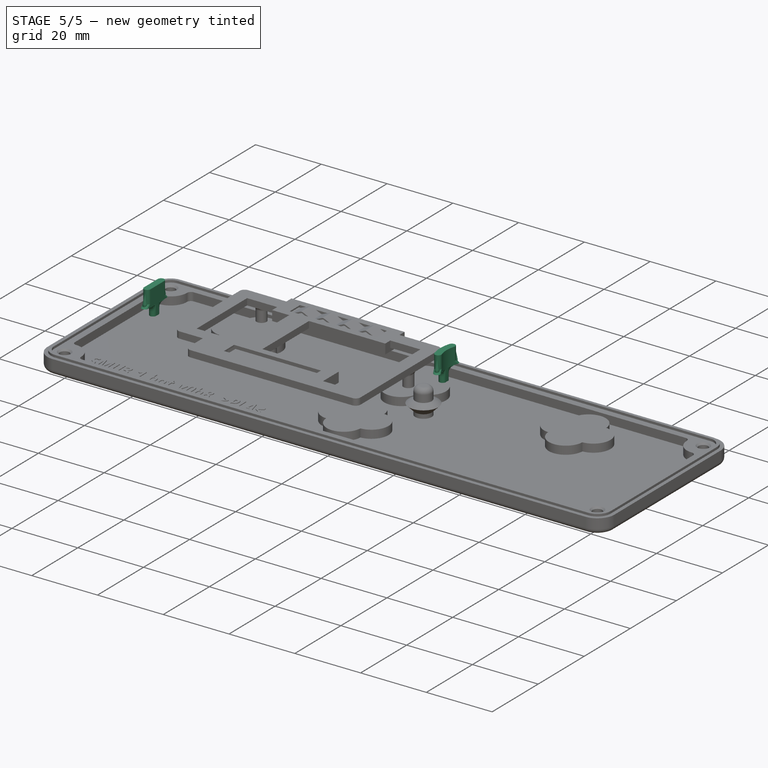
[diagram: stage 5 of 5 — iso view after this stage's code; geometry added in this stage tinted green]
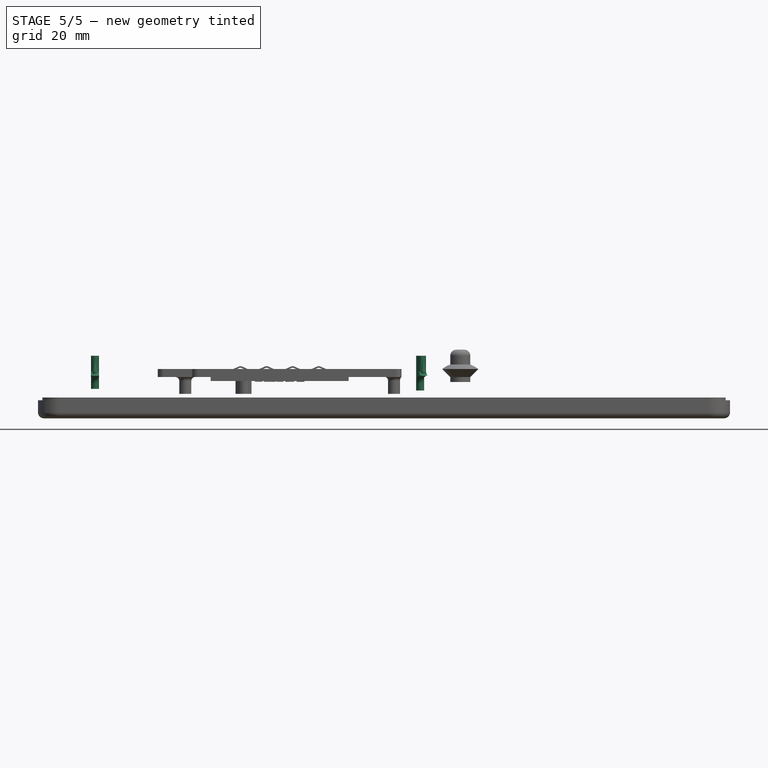
[diagram: stage 5 of 5 — front view after this stage's code; geometry added in this stage tinted green]
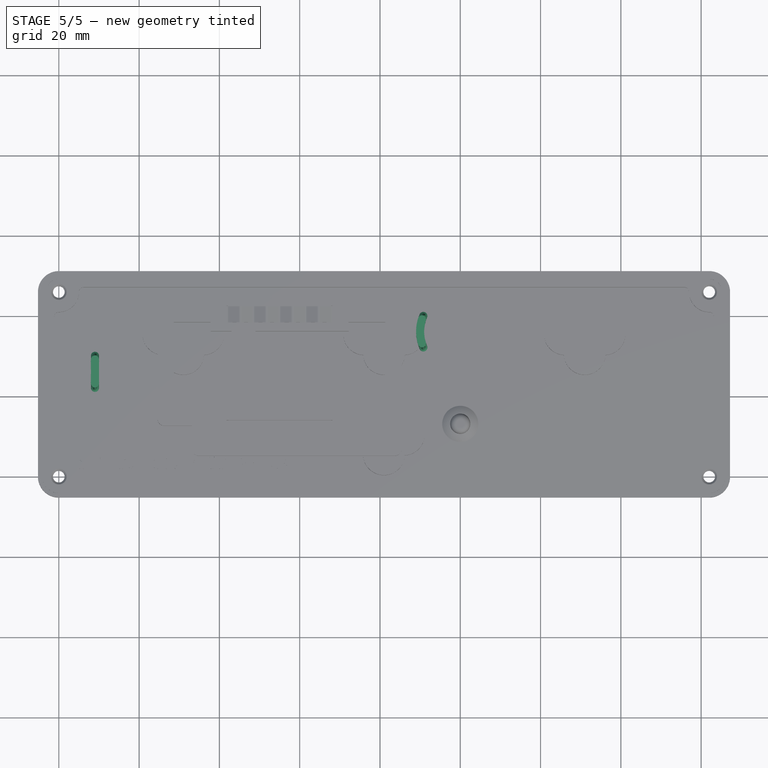
[diagram: stage 5 of 5 — top view after this stage's code; geometry added in this stage tinted green]
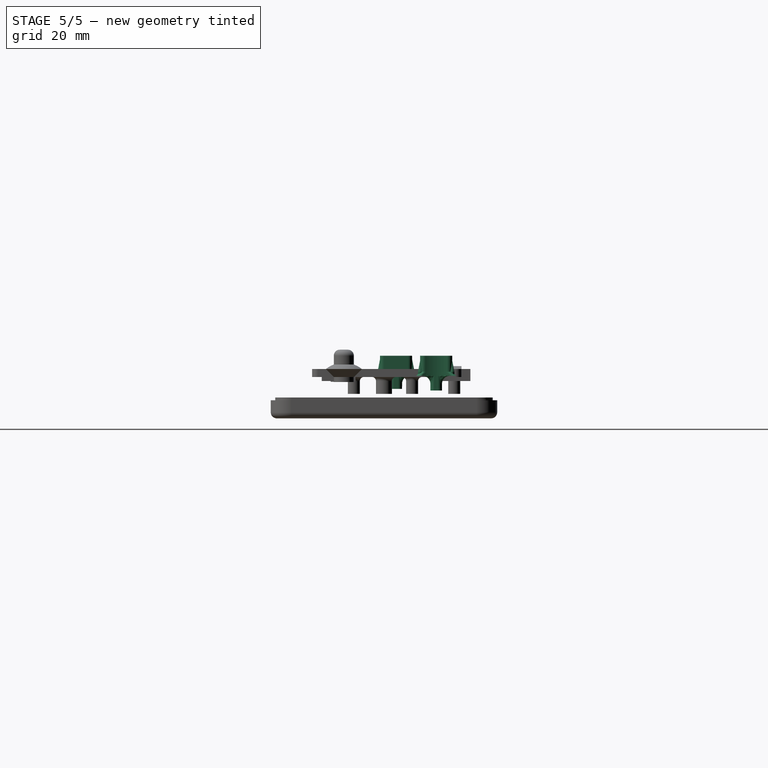
[diagram: stage 5 of 5 — right view after this stage's code; geometry added in this stage tinted green]
FEATURE [Sketcher::SketchObject] Sketch025
  ArcFitTolerance = 1e-06
  AttachmentSupport = -> [XY_Plane001]
  FullyConstrained = true
  MakeInternals = false
  MapMode = 5
  expr: Constraints[11] = <<BaseParam>>.Tol * 3
  expr: Constraints[4] = 6.3 mm / 2 + <<BaseParam>>.Tol
  sketch-geometry (9):
    g0: LineSegment [constr] StartX=8 StartY=44 StartZ=0 EndX=154 EndY=44 EndZ=0
    g1: ArcOfCircle CenterX=8.3 CenterY=44 CenterZ=0 NormalX=0 NormalY=0 NormalZ=1 AngleXU=0 Radius=3.35 StartAngle=4.71239 EndAngle=7.85398
    g2: ArcOfCircle CenterX=7.7 CenterY=44 CenterZ=0 NormalX=0 NormalY=0 NormalZ=1 AngleXU=0 Radius=3.35 StartAngle=1.5708 EndAngle=4.71239
    g3: LineSegment StartX=7.7 StartY=47.35 StartZ=0 EndX=8.3 EndY=47.35 EndZ=0
    g4: LineSegment StartX=7.7 StartY=40.65 StartZ=0 EndX=8.3 EndY=40.65 EndZ=0
    g5: ArcOfCircle CenterX=153.7 CenterY=44 CenterZ=0 NormalX=0 NormalY=0 NormalZ=1 AngleXU=0 Radius=3.35 StartAngle=1.5708 EndAngle=4.71239
    g6: ArcOfCircle CenterX=154.3 CenterY=44 CenterZ=0 NormalX=0 NormalY=0 NormalZ=1 AngleXU=0 Radius=3.35 StartAngle=4.71239 EndAngle=7.85398
    g7: LineSegment StartX=153.7 StartY=47.35 StartZ=0 EndX=154.3 EndY=47.35 EndZ=0
    g8: LineSegment StartX=153.7 StartY=40.65 StartZ=0 EndX=154.3 EndY=40.65 EndZ=0
  constraints (22):
    c: Horizontal(g0)
    c: DistanceX(g-1,g0) = 8
    c: DistanceY(g-1,g0) = 44
    c: PointOnObject(g1,g0)
    c: Radius(g1) = 3.35
    c: Equal(g2,g1)
    c: Symmetric(g2,g1,g0)
    c: Tangent(g4,g1) = -1.5708
    c: Tangent(g4,g2) = -1.5708
    c: Tangent(g3,g2) = 1.5708
    c: Tangent(g3,g1) = 1.5708
    c: DistanceX(g3,g3) = 0.6
    c: DistanceX(g-1,g0) = 154
    c: PointOnObject(g5,g0)
    c: Symmetric(g6,g5,g0)
    c: Horizontal(g7)
    c: Tangent(g7,g6) = 1.5708
    c: Tangent(g7,g5) = 1.5708
    c: Equal(g5,g1)
    c: Equal(g3,g7)
    c: Tangent(g8,g5) = -1.5708
    c: Tangent(g8,g6) = -1.5708
FEATURE [Sketcher::SketchObject] Sketch026
  ArcFitTolerance = 1e-06
  AttachmentOffset = pos=(0,0,4.9) rot=(0,0,1;0rad)
  AttachmentSupport = -> [XY_Plane001]
  FullyConstrained = true
  MakeInternals = false
  MapMode = 5
  Placement = pos=(0,0,4.9) rot=(0,0,1;0rad)
  expr: .AttachmentOffset.Base.z = <<BaseParam>>.MountingScrewLength - <<BaseParam>>.Wall * 2 - <<BaseParam>>.BoardThick
  expr: Constraints[1] = <<BaseParam>>.MountingScrewHeadDia + <<BaseParam>>.Tol * 2
  sketch-geometry (1):
    g0: Circle CenterX=0 CenterY=0 CenterZ=0 NormalX=0 NormalY=0 NormalZ=1 AngleXU=0 Radius=2.55
  constraints (2):
    c: Coincident(g0,g-1)
    c: Diameter(g0) = 5.1
FEATURE [PartDesign::SubShapeBinder] Binder002
  BindCopyOnChange = 0
  BindMode = 0
  ClaimChildren = false
  Context = -> Body004 [Binder002.]
  Fuse = false
  MakeFace = true
  OffsetFill = false
  OffsetIntersection = false
  OffsetJoinType = 0
  OffsetOpenResult = false
  PartialLoad = false
  Refine = true
  Relative = true
  Support = -> [Body001[DatumLine.]]
  _Version = 2
FEATURE [PartDesign::Plane] DatumPlane008  label="SocketPlane"
  AttachmentOffset = pos=(0,0,5.5) rot=(0,0,1;0rad)
  AttachmentSupport = -> [XY_Plane004]
  Length = 60.583
  MapMode = 5
  Placement = pos=(0,0,5.5) rot=(0,0,1;0rad)
  ResizeMode = 0
  Width = 66.5826
  expr: .AttachmentOffset.Base.z = <<BaseParam>>.EnclosureTopOffset + <<BaseParam>>.Wall - <<BaseParam>>.LightPipeSocketDepth
FEATURE [Sketcher::SketchObject] Sketch027
  ArcFitTolerance = 1e-06
  AttachmentSupport = -> [DatumPlane008]
  ExternalGeometry = -> [Binder002]
  FullyConstrained = true
  MakeInternals = false
  MapMode = 5
  Placement = pos=(0,0,5.5) rot=(0,0,1;0rad)
  expr: Constraints[4] = (<<BaseParam>>.LightPipeHeight - <<BaseParam>>.LightPipeWidth) / 2
  expr: Constraints[5] = <<BaseParam>>.LightPipeWidth
  sketch-geometry (5):
    g0: LineSegment StartX=8 StartY=29 StartZ=0 EndX=8 EndY=26 EndZ=0
    g1: LineSegment StartX=10 StartY=26 StartZ=0 EndX=10 EndY=29 EndZ=0
    g2: LineSegment [constr] StartX=10 StartY=29 StartZ=0 EndX=8 EndY=29 EndZ=0
    g3: ArcOfCircle CenterX=9 CenterY=29 CenterZ=0 NormalX=0 NormalY=0 NormalZ=1 AngleXU=0 Radius=1 StartAngle=-9e-16 EndAngle=3.14159
    g4: LineSegment StartX=8 StartY=26 StartZ=0 EndX=10 EndY=26 EndZ=0
  constraints (12):
    c: Coincident(g1,g2)
    c: Coincident(g2,g0)
    c: Vertical(g0)
    c: Vertical(g1)
    c: DistanceY(g1,g1) = 3
    c: DistanceX(g2,g2) = 2
    c: Coincident(g4,g1)
    c: Horizontal(g4)
    c: Symmetric(g1,g0,g-3)
    c: Coincident(g0,g4)
    c: Tangent(g3,g0) = -1.5708
    c: Tangent(g1,g3) = -1.5708
FEATURE [PartDesign::Pad] Pad012  label="LightPipeBase"
  Direction = (0,0,1)
  Length = 4
  Length2 = 10
  Placement = pos=(0,0,5.5) rot=(0,0,1;0rad)
  Profile = -> Sketch027
  ReferenceAxis = -> Sketch027 [N_Axis]
  Refine = true
  Suppressed = false
  Type = 0
  expr: Length = <<BaseParam>>.LightPipeSocketDepth
FEATURE [Sketcher::SketchObject] Sketch028
  ArcFitTolerance = 1e-06
  AttachmentSupport = -> [DatumPlane008]
  ExternalGeometry = -> [Binder002]
  FullyConstrained = true
  MakeInternals = false
  MapMode = 5
  Placement = pos=(0,0,5.5) rot=(0,0,1;0rad)
  expr: Constraints[15] = <<BaseParam>>.Tol * 3
  expr: Constraints[2] = <<BaseParam>>.LightPipeHeight / 2
  expr: Constraints[5] = <<BaseParam>>.LightPipeWidth
  sketch-geometry (7):
    g0: LineSegment [constr] StartX=9 StartY=30 StartZ=0 EndX=9 EndY=26 EndZ=0
    g1: Circle [constr] CenterX=9 CenterY=29 CenterZ=0 NormalX=0 NormalY=0 NormalZ=1 AngleXU=0 Radius=1
    g2: ArcOfCircle CenterX=9 CenterY=30 CenterZ=0 NormalX=0 NormalY=0 NormalZ=1 AngleXU=0 Radius=0.6 StartAngle=-9e-16 EndAngle=3.14159
    g3: LineSegment [constr] StartX=9 StartY=30 StartZ=0 EndX=9 EndY=30.6 EndZ=0
    g4: LineSegment StartX=8.4 StartY=30 StartZ=0 EndX=8.4 EndY=29.8 EndZ=0
    g5: LineSegment StartX=8.4 StartY=29.8 StartZ=0 EndX=9.6 EndY=29.8 EndZ=0
    g6: LineSegment StartX=9.6 StartY=29.8 StartZ=0 EndX=9.6 EndY=30 EndZ=0
  constraints (20):
    c: Coincident(g0,g-3)
    c: Vertical(g0)
    c: DistanceY(g0,g0) = 4
    c: PointOnObject(g1,g0)
    c: PointOnObject(g0,g1)
    c: Diameter(g1) = 2
    c: Coincident(g3,g0)
    c: PointOnObject(g3,g2)
    c: Vertical(g3)
    c: Perpendicular(g2,g3)
    c: Vertical(g4)
    c: Coincident(g5,g4)
    c: Horizontal(g5)
    c: Coincident(g6,g5)
    c: Vertical(g6)
    c: Radius(g2) = 0.6
    c: PointOnObject(g2,g1)
    c: Tangent(g4,g2) = -1.5708
    c: Tangent(g6,g2) = -1.5708
    c: PointOnObject(g5,g1)
FEATURE [Sketcher::SketchObject] Sketch029
  ArcFitTolerance = 1e-06
  AttachmentOffset = pos=(0,0,-1) rot=(0,0,1;0rad)
  AttachmentSupport = -> [DatumPlane008]
  ExternalGeometry = -> [Binder002]
  FullyConstrained = true
  MakeInternals = false
  MapMode = 5
  Placement = pos=(0,0,4.5) rot=(0,0,1;0rad)
  expr: Constraints[11] = <<BaseParam>>.LightPipeWidth
  expr: Constraints[14] = (<<BaseParam>>.LightPipeHeight - <<BaseParam>>.LightPipeWidth) / 2 + 1 mm
  sketch-geometry (6):
    g0: LineSegment StartX=8 StartY=26 StartZ=0 EndX=10 EndY=26 EndZ=0
    g1: LineSegment StartX=10 StartY=26 StartZ=0 EndX=10 EndY=30 EndZ=0
    g2: LineSegment [constr] StartX=10 StartY=30 StartZ=0 EndX=8 EndY=30 EndZ=0
    g3: LineSegment StartX=8 StartY=30 StartZ=0 EndX=8 EndY=26 EndZ=0
    g4: ArcOfCircle CenterX=9 CenterY=30 CenterZ=0 NormalX=0 NormalY=0 NormalZ=1 AngleXU=0 Radius=1 StartAngle=-1.07e-14 EndAngle=3.14159
    g5: LineSegment [constr] StartX=9 StartY=30 StartZ=0 EndX=9 EndY=26 EndZ=0
  constraints (16):
    c: Coincident(g0,g1)
    c: Coincident(g1,g2)
    c: Coincident(g2,g3)
    c: Coincident(g3,g0)
    c: Horizontal(g0)
    c: Horizontal(g2)
    c: Vertical(g1)
    c: Vertical(g3)
    c: Symmetric(g0,g0,g-3)
    c: Coincident(g4,g2)
    c: Coincident(g1,g4)
    c: DistanceX(g0,g0) = 2
    c: Coincident(g5,g4)
    c: Coincident(g5,g-3)
    c: DistanceY(g5,g5) = 4
    c: PointOnObject(g4,g2)
FEATURE [Sketcher::SketchObject] Sketch030
  ArcFitTolerance = 1e-06
  AttachmentOffset = pos=(0,0,1.24) rot=(0,0,1;0rad)
  AttachmentSupport = -> [XY_Plane004]
  ExternalGeometry = -> [Binder002]
  FullyConstrained = true
  MakeInternals = false
  MapMode = 5
  Placement = pos=(0,0,1.24) rot=(0,0,1;0rad)
  expr: .AttachmentOffset.Base.z = <<UiParams>>.LedThickness + <<BaseParam>>.Tol * 2
  expr: Constraints[12] = <<BaseParam>>.LightPipeWidth / 4
  expr: Constraints[8] = <<BaseParam>>.LightPipeWidth
  sketch-geometry (5):
    g0: LineSegment StartX=8 StartY=26.5 StartZ=0 EndX=8 EndY=26 EndZ=0
    g1: LineSegment StartX=8 StartY=26 StartZ=0 EndX=10 EndY=26 EndZ=0
    g2: LineSegment StartX=10 StartY=26 StartZ=0 EndX=10 EndY=26.5 EndZ=0
    g3: LineSegment [constr] StartX=10 StartY=26.5 StartZ=0 EndX=8 EndY=26.5 EndZ=0
    g4: ArcOfCircle CenterX=9 CenterY=26.5 CenterZ=0 NormalX=0 NormalY=0 NormalZ=1 AngleXU=0 Radius=1 StartAngle=-2.7e-15 EndAngle=3.14159
  constraints (14):
    c: Coincident(g0,g1)
    c: Coincident(g1,g2)
    c: Coincident(g2,g3)
    c: Coincident(g3,g0)
    c: Vertical(g0)
    c: Vertical(g2)
    c: Horizontal(g1)
    c: Horizontal(g3)
    c: DistanceX(g1,g1) = 2
    c: Coincident(g4,g0)
    c: Coincident(g2,g4)
    c: PointOnObject(g4,g3)
    c: DistanceY(g-3,g2) = 0.5
    c: Symmetric(g0,g1,g-3)
FEATURE [PartDesign::AdditiveLoft] AdditiveLoft
  BaseFeature = -> Pad012
  Closed = false
  Placement = pos=(0,0,5.5) rot=(0,0,1;0rad)
  Profile = -> Sketch029
  Refine = true
  Ruled = false
  Sections = -> [Pad012]
  Suppressed = false
FEATURE [PartDesign::Pad] Pad013  label="Rib"
  BaseFeature = -> AdditiveLoft
  Direction = (0,0,1)
  Length = 3
  Length2 = 1
  Placement = pos=(0,0,5.5) rot=(0,0,1;0rad)
  Profile = -> Sketch028
  ReferenceAxis = -> Sketch028 [N_Axis]
  Refine = true
  Suppressed = false
  Type = 4
  expr: Length = <<BaseParam>>.LightPipeSocketDepth * 3 / 4
FEATURE [Part::Part2DObjectPython] ShapeString  # Draft 2D object (typed FeaturePython)
  AttachmentOffset = pos=(5,2,0) rot=(0,0,1;0rad)
  AttachmentSupport = -> [DatumPlane009]
  FontFile = <path>
  Fuse = false
  Justification = 6
  JustificationReference = 0
  KeepLeftMargin = false
  MakeFace = true
  MapMode = 5
  ObliqueAngle = 0
  Placement = pos=(5,2,-4.1) rot=(0,0,1;0rad)
  ScaleToSize = true
  Size = 4
  String = SMU3.1 bot v0b8  >PLA<
  Tracking = 0
  expr: .AttachmentOffset.Base.x = <<BaseParam>>.MountingHoleInset + <<BaseParam>>.Wall
  expr: .AttachmentOffset.Base.y = <<BaseParam>>.Wall
  expr: Size = <<BaseParam>>.TextHeight
FEATURE [PartDesign::SubShapeBinder] Binder003  label="EncoderAxisBinder"
  BindCopyOnChange = 0
  BindMode = 0
  ClaimChildren = false
  Context = -> Body005 [Binder003.]
  Fuse = false
  MakeFace = true
  OffsetFill = false
  OffsetIntersection = false
  OffsetJoinType = 0
  OffsetOpenResult = false
  PartialLoad = false
  Refine = true
  Relative = true
  Support = -> [Body001[DatumLine001.]]
  _Version = 2
FEATURE [PartDesign::SubShapeBinder] Binder004  label="EncoderLed1AxisBinder"
  BindCopyOnChange = 0
  BindMode = 0
  ClaimChildren = false
  Context = -> Body005 [Binder004.]
  Fuse = false
  MakeFace = true
  OffsetFill = false
  OffsetIntersection = false
  OffsetJoinType = 0
  OffsetOpenResult = false
  PartialLoad = false
  Refine = true
  Relative = true
  Support = -> [Body001[DatumLine002.]]
  _Version = 2
FEATURE [PartDesign::Plane] DatumPlane010  label="SocketPlane001"
  AttachmentOffset = pos=(0,0,5.5) rot=(0,0,1;0rad)
  AttachmentSupport = -> [XY_Plane005]
  Length = 134.36
  MapMode = 5
  Placement = pos=(0,0,5.5) rot=(0,0,1;0rad)
  ResizeMode = 0
  Width = 83.49
  expr: .AttachmentOffset.Base.z = <<BaseParam>>.EnclosureTopOffset + <<BaseParam>>.Wall - <<BaseParam>>.LightPipeSocketDepth
FEATURE [Sketcher::SketchObject] Sketch031
  ArcFitTolerance = 1e-06
  AttachmentSupport = -> [DatumPlane010]
  ExternalGeometry = -> [Binder003,Binder004]
  FullyConstrained = true
  MakeInternals = false
  MapMode = 5
  Placement = pos=(0,0,5.5) rot=(0,0,1;0rad)
  expr: Constraints[13] = (<<BaseParam>>.LightPipeHeight - <<BaseParam>>.LightPipeWidth) / 2
  expr: Constraints[6] = <<BaseParam>>.LightPipeWidth
  sketch-geometry (5):
    g0: LineSegment StartX=89 StartY=36 StartZ=0 EndX=91 EndY=36 EndZ=0
    g1: ArcOfCircle CenterX=100 CenterY=36 CenterZ=0 NormalX=0 NormalY=0 NormalZ=1 AngleXU=0 Radius=9 StartAngle=2.8369 EndAngle=3.14159
    g2: ArcOfCircle CenterX=100 CenterY=36 CenterZ=0 NormalX=0 NormalY=0 NormalZ=1 AngleXU=0 Radius=11 StartAngle=2.8369 EndAngle=3.14159
    g3: LineSegment [constr] StartX=89.5067 StartY=39.3 StartZ=0 EndX=91.4145 EndY=38.7 EndZ=0
    g4: ArcOfCircle CenterX=90.4606 CenterY=39 CenterZ=0 NormalX=0 NormalY=0 NormalZ=1 AngleXU=0 Radius=1 StartAngle=5.97849 EndAngle=9.12009
  constraints (14):
    c: Horizontal(g0)
    c: Symmetric(g0,g0,g-4)
    c: Coincident(g1,g-3)
    c: Coincident(g1,g0)
    c: Coincident(g2,g1)
    c: Coincident(g2,g0)
    c: DistanceX(g0,g0) = 2
    c: Coincident(g3,g2)
    c: Coincident(g3,g1)
    c: PointOnObject(g1,g3)
    c: PointOnObject(g4,g3)
    c: Coincident(g4,g2)
    c: Coincident(g4,g1)
    c: DistanceY(g-4,g4) = 3
FEATURE [PartDesign::Pad] Pad016
  Direction = (0,0,1)
  Length = 4
  Length2 = 10
  Placement = pos=(0,0,5.5) rot=(0,0,1;0rad)
  Profile = -> Sketch031
  ReferenceAxis = -> Sketch031 [N_Axis]
  Refine = true
  Suppressed = false
  Type = 0
  expr: Length = <<BaseParam>>.LightPipeSocketDepth
FEATURE [Sketcher::SketchObject] Sketch032
  ArcFitTolerance = 1e-06
  AttachmentOffset = pos=(0,0,-1) rot=(0,0,1;0rad)
  AttachmentSupport = -> [DatumPlane010]
  ExternalGeometry = -> [Binder003,Binder004]
  FullyConstrained = true
  MakeInternals = false
  MapMode = 5
  Placement = pos=(0,0,4.5) rot=(0,0,1;0rad)
  expr: Constraints[16] = (<<BaseParam>>.LightPipeHeight - <<BaseParam>>.LightPipeWidth) / 2
  expr: Constraints[6] = <<BaseParam>>.LightPipeWidth
  sketch-geometry (6):
    g0: LineSegment StartX=89 StartY=36 StartZ=0 EndX=91 EndY=36 EndZ=0
    g1: ArcOfCircle CenterX=100 CenterY=36 CenterZ=0 NormalX=0 NormalY=0 NormalZ=1 AngleXU=0 Radius=9 StartAngle=2.73686 EndAngle=3.14159
    g2: ArcOfCircle CenterX=100 CenterY=36 CenterZ=0 NormalX=0 NormalY=0 NormalZ=1 AngleXU=0 Radius=11 StartAngle=2.73686 EndAngle=3.14159
    g3: LineSegment [constr] StartX=89.8887 StartY=40.3315 StartZ=0 EndX=91.7271 EndY=39.544 EndZ=0
    g4: ArcOfCircle CenterX=90.8079 CenterY=39.9377 CenterZ=0 NormalX=0 NormalY=0 NormalZ=1 AngleXU=0 Radius=1 StartAngle=5.87845 EndAngle=9.02004
    g5: ArcOfCircle [constr] CenterX=100 CenterY=36 CenterZ=0 NormalX=0 NormalY=0 NormalZ=1 AngleXU=0 Radius=10 StartAngle=2.8369 EndAngle=3.14159
  constraints (17):
    c: Horizontal(g0)
    c: Symmetric(g0,g0,g-4)
    c: Coincident(g1,g-3)
    c: Coincident(g1,g0)
    c: Coincident(g2,g1)
    c: Coincident(g2,g0)
    c: DistanceX(g0,g0) = 2
    c: Coincident(g3,g2)
    c: Coincident(g3,g1)
    c: PointOnObject(g1,g3)
    c: PointOnObject(g4,g3)
    c: Coincident(g4,g2)
    c: Coincident(g4,g1)
    c: Coincident(g5,g1)
    c: Coincident(g5,g-4)
    c: Distance(g4,g5) = 1
    c: DistanceY(g5,g5) = 3
FEATURE [PartDesign::AdditiveLoft] AdditiveLoft001  label="Flange"
  BaseFeature = -> Pad016
  Closed = false
  Placement = pos=(0,0,5.5) rot=(0,0,1;0rad)
  Profile = -> Sketch032
  Refine = true
  Ruled = false
  Sections = -> [Pad016]
  Suppressed = false
FEATURE [Sketcher::SketchObject] Sketch033
  ArcFitTolerance = 1e-06
  AttachmentSupport = -> [DatumPlane010]
  ExternalGeometry = -> [Binder003,Binder004]
  FullyConstrained = true
  MakeInternals = false
  MapMode = 5
  Placement = pos=(0,0,5.5) rot=(0,0,1;0rad)
  expr: Constraints[18] = (<<BaseParam>>.LightPipeHeight - <<BaseParam>>.LightPipeWidth) / 2
  expr: Constraints[2] = <<BaseParam>>.LightPipeWidth
  expr: Constraints[8] = <<BaseParam>>.Tol * 3
  sketch-geometry (7):
    g0: ArcOfCircle CenterX=90.8079 CenterY=39.9377 CenterZ=0 NormalX=0 NormalY=0 NormalZ=1 AngleXU=0 Radius=0.6 StartAngle=5.92847 EndAngle=9.07006
    g1: ArcOfCircle [constr] CenterX=100 CenterY=36 CenterZ=0 NormalX=0 NormalY=0 NormalZ=1 AngleXU=0 Radius=10 StartAngle=2.8369 EndAngle=3.14159
    g2: Circle [constr] CenterX=90.4606 CenterY=39 CenterZ=0 NormalX=0 NormalY=0 NormalZ=1 AngleXU=0 Radius=1
    g3: LineSegment [constr] StartX=90.8079 StartY=39.9377 StartZ=0 EndX=91.0163 EndY=40.5004 EndZ=0
    g4: LineSegment StartX=90.2453 StartY=40.1461 StartZ=0 EndX=90.1758 EndY=39.9586 EndZ=0
    g5: LineSegment StartX=91.3706 StartY=39.7294 StartZ=0 EndX=91.3011 EndY=39.5418 EndZ=0
    g6: LineSegment StartX=91.3011 StartY=39.5418 StartZ=0 EndX=90.1758 EndY=39.9586 EndZ=0
  constraints (19):
    c: Coincident(g1,g-4)
    c: Coincident(g2,g1)
    c: Diameter(g2) = 2
    c: Coincident(g1,g-3)
    c: PointOnObject(g0,g1)
    c: PointOnObject(g3,g2)
    c: PointOnObject(g3,g0)
    c: Perpendicular(g2,g3)
    c: Radius(g0) = 0.6
    c: PointOnObject(g4,g2)
    c: PointOnObject(g5,g2)
    c: Coincident(g6,g5)
    c: Coincident(g6,g4)
    c: Parallel(g3,g4)
    c: Parallel(g4,g5)
    c: Tangent(g5,g0) = 1.5708
    c: Tangent(g4,g0) = -1.5708
    c: Coincident(g0,g3)
    c: DistanceY(g1,g1) = 3
FEATURE [PartDesign::Pad] Pad017  label="Rib001"
  BaseFeature = -> AdditiveLoft001
  Direction = (0,0,1)
  Length = 3
  Length2 = 1
  Placement = pos=(0,0,5.5) rot=(0,0,1;0rad)
  Profile = -> Sketch033
  ReferenceAxis = -> Sketch033 [N_Axis]
  Refine = true
  Suppressed = false
  Type = 4
  expr: Length = <<BaseParam>>.LightPipeSocketDepth * 3 / 4
FEATURE [PartDesign::Chamfer] Chamfer004
  Angle = 11
  Base = -> Pad017 [Edge29]
  BaseFeature = -> Pad017
  ChamferType = 2
  FlipDirection = true
  Placement = pos=(0,0,5.5) rot=(0,0,1;0rad)
  Refine = true
  Size = 3
  Size2 = 1
  SupportTransform = false
  Suppressed = false
  UseAllEdges = false
  expr: Size = <<BaseParam>>.LightPipeSocketDepth * 3 / 4
FEATURE [PartDesign::Chamfer] Chamfer005
  Angle = 11
  Base = -> Pad013 [Edge28]
  BaseFeature = -> Pad013
  ChamferType = 2
  FlipDirection = true
  Placement = pos=(0,0,5.5) rot=(0,0,1;0rad)
  Refine = true
  Size = 3
  Size2 = 1
  SupportTransform = false
  Suppressed = false
  UseAllEdges = false
  expr: Size = <<BaseParam>>.LightPipeSocketDepth * 3 / 4
FEATURE [PartDesign::Pad] Pad014  label="Stem"
  BaseFeature = -> Chamfer005
  Direction = (0,0,1)
  Length = 10
  Length2 = 10
  Placement = pos=(0,0,5.5) rot=(0,0,1;0rad)
  Profile = -> Sketch030
  ReferenceAxis = -> Sketch030 [N_Axis]
  Refine = true
  Suppressed = false
  Type = 2
FEATURE [PartDesign::Mirrored] Mirrored004
  BaseFeature = -> Pad014
  MirrorPlane = -> Pad014 [Face20]
  Originals = -> [Pad014]
  Placement = pos=(0,0,5.5) rot=(0,0,1;0rad)
  Refine = true
  Suppressed = false
  TransformMode = 1
FEATURE [PartDesign::Fillet] Fillet003
  Base = -> Mirrored004 [Edge33,Edge46]
  BaseFeature = -> Mirrored004
  Placement = pos=(0,0,5.5) rot=(0,0,1;0rad)
  Radius = 2
  Refine = true
  SupportTransform = false
  Suppressed = false
  UseAllEdges = false
  expr: Radius = <<BaseParam>>.LightPipeWidth
FEATURE [PartDesign::Body] Body004  label="LightPipe"
  AllowCompound = false
  Group = -> [Binder002,DatumPlane008,Sketch027,Pad012,Sketch029,Sketch028,AdditiveLoft,Pad013,Sketch030,Chamfer005,Pad014,Mirrored004,Fillet003]
  Origin = -> Origin004
  Tip = -> Fillet003
FEATURE [Sketcher::SketchObject] Sketch034
  ArcFitTolerance = 1e-06
  AttachmentOffset = pos=(0,0,0.84) rot=(0,0,1;0rad)
  AttachmentSupport = -> [XY_Plane005]
  ExternalGeometry = -> [Binder003,Binder004]
  FullyConstrained = true
  MakeInternals = false
  MapMode = 5
  Placement = pos=(0,0,0.84) rot=(0,0,1;0rad)
  expr: .AttachmentOffset.Base.z = <<UiParams>>.LedThickness
  expr: Constraints[13] = <<BaseParam>>.LightPipeWidth / 4
  expr: Constraints[6] = <<BaseParam>>.LightPipeWidth
  sketch-geometry (5):
    g0: LineSegment StartX=89 StartY=36 StartZ=0 EndX=91 EndY=36 EndZ=0
    g1: ArcOfCircle CenterX=100 CenterY=36 CenterZ=0 NormalX=0 NormalY=0 NormalZ=1 AngleXU=0 Radius=9 StartAngle=3.09613 EndAngle=3.14159
    g2: ArcOfCircle CenterX=100 CenterY=36 CenterZ=0 NormalX=0 NormalY=0 NormalZ=1 AngleXU=0 Radius=11 StartAngle=3.09613 EndAngle=3.14159
    g3: LineSegment [constr] StartX=89.0114 StartY=36.4999 StartZ=0 EndX=91.0093 EndY=36.409 EndZ=0
    g4: ArcOfCircle CenterX=90.0103 CenterY=36.4544 CenterZ=0 NormalX=0 NormalY=0 NormalZ=1 AngleXU=0 Radius=1 StartAngle=6.23773 EndAngle=9.37932
  constraints (14):
    c: Horizontal(g0)
    c: Symmetric(g0,g0,g-4)
    c: Coincident(g1,g-3)
    c: Coincident(g1,g0)
    c: Coincident(g2,g1)
    c: Coincident(g2,g0)
    c: DistanceX(g0,g0) = 2
    c: Coincident(g3,g2)
    c: Coincident(g3,g1)
    c: PointOnObject(g1,g3)
    c: PointOnObject(g4,g3)
    c: Coincident(g4,g2)
    c: Coincident(g4,g1)
    c: Distance(g0,g2) = 0.5
FEATURE [PartDesign::Pad] Pad018
  BaseFeature = -> Chamfer004
  Direction = (0,0,1)
  Length = 10
  Length2 = 10
  Placement = pos=(0,0,5.5) rot=(0,0,1;0rad)
  Profile = -> Sketch034
  ReferenceAxis = -> Sketch034 [N_Axis]
  Refine = true
  Suppressed = false
  Type = 2
FEATURE [PartDesign::Mirrored] Mirrored005
  BaseFeature = -> Pad018
  MirrorPlane = -> Pad018 [Face20]
  Originals = -> [Pad018]
  Placement = pos=(0,0,5.5) rot=(0,0,1;0rad)
  Refine = true
  Suppressed = false
  TransformMode = 1
FEATURE [PartDesign::Fillet] Fillet004
  Base = -> Mirrored005 [Edge47,Edge34]
  BaseFeature = -> Mirrored005
  Placement = pos=(0,0,5.5) rot=(0,0,1;0rad)
  Radius = 2
  Refine = true
  SupportTransform = false
  Suppressed = false
  UseAllEdges = false
  expr: Radius = <<BaseParam>>.LightPipeWidth
FEATURE [PartDesign::Chamfer] Chamfer006
  Angle = 45
  Base = -> Pocket015 [Edge13,Edge14,Edge15,Edge12]
  BaseFeature = -> Pocket015
  ChamferType = 0
  FlipDirection = false
  Placement = pos=(100,13,0) rot=(1,0,0;1.5708rad)
  Refine = true
  Size = 0.5
  Size2 = 1
  SupportTransform = false
  Suppressed = false
  UseAllEdges = false
FEATURE [PartDesign::Pad] Pad015
  BaseFeature = -> Mirrored007
  Direction = (0,0,1)
  Length = 0.2
  Length2 = 10
  Placement = pos=(0,0,-4.1) rot=(0,0,1;0rad)
  Profile = -> ShapeString
  ReferenceAxis = -> ShapeString [N_Axis]
  Refine = true
  Suppressed = false
  Type = 0
  expr: Length = <<BaseParam>>.TextThickness
FEATURE [PartDesign::Body] Body  label="BotEnclosure"
  AllowCompound = false
  Group = -> [DatumPlane009,DatumPlane001,DatumPlane,DatumLine008,DatumLine007,Sketch,Pad,Fillet,Sketch001,Sketch002,Pad001,Pad026,Pad002,Sketch003,Pocket,Sketch004,Pocket001,Chamfer,MultiTransform,Mirrored,Mirrored001,ShapeString,Sketch037,Pocket016,Sketch038,Chamfer007,Pad020,Sketch039,Pocket017,MultiTransform003,LinearPattern003,Mirrored006,Mirrored007,Pad015,Sketch045]
  Origin = -> Origin
  Tip = -> Pad015
note: 4 file-system paths scrubbed to <path> (originals preserved in the JSON sidecar)
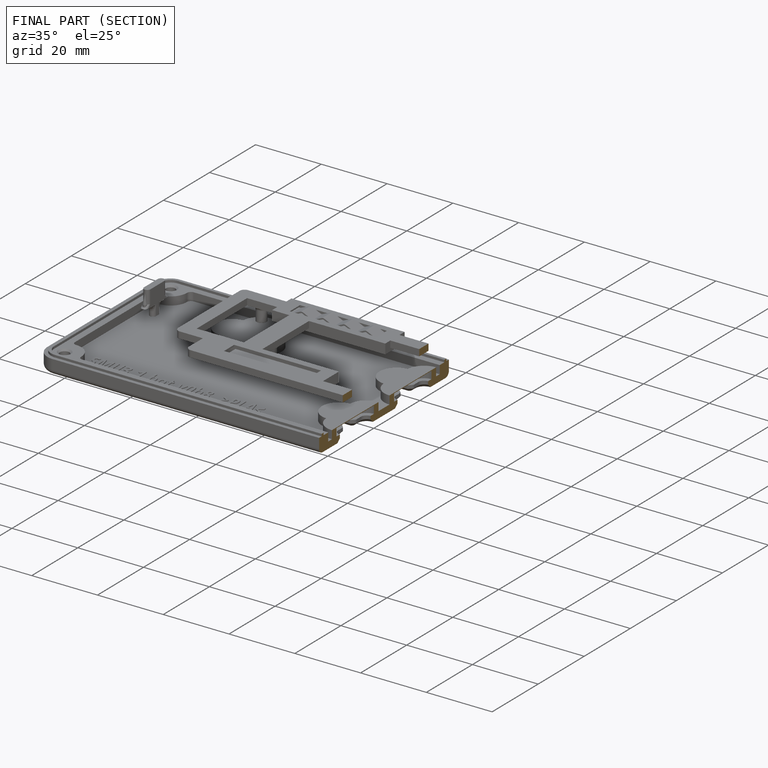
[diagram: finished part — half-section view (interior)]
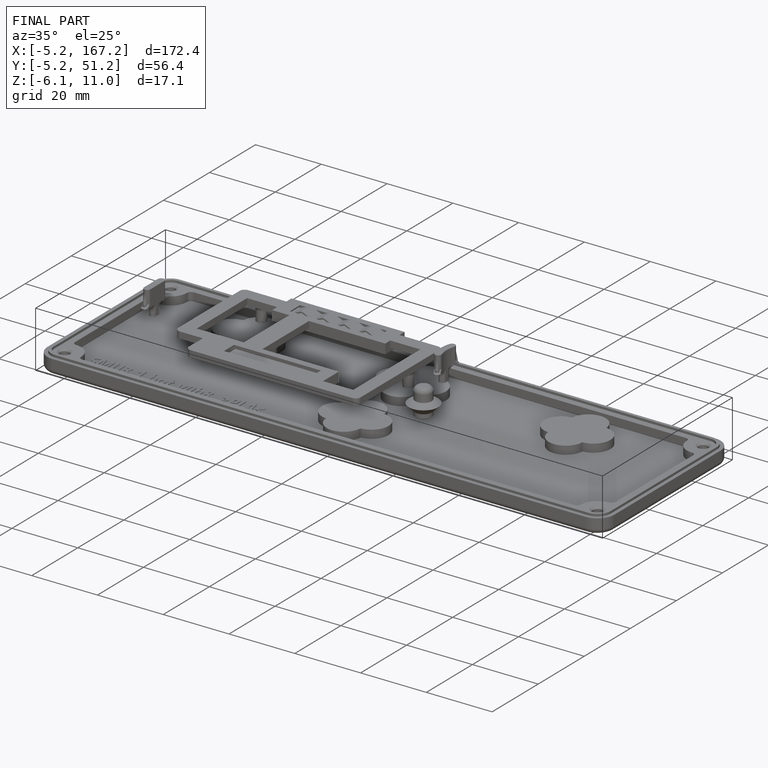
[diagram: finished part — iso view with bounding-box wireframe]
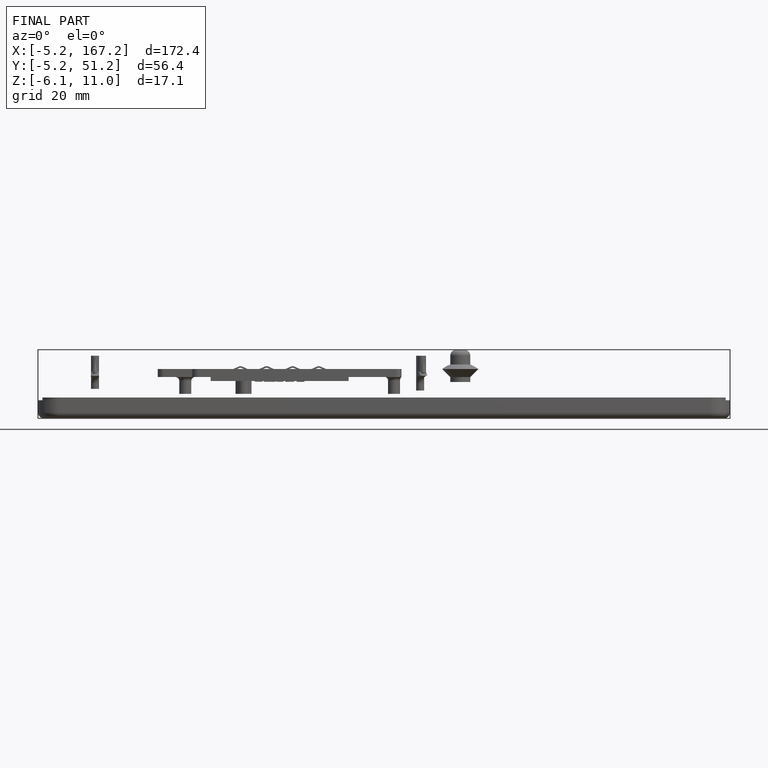
[diagram: finished part — front view with bounding-box wireframe]
